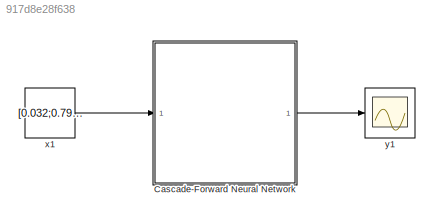
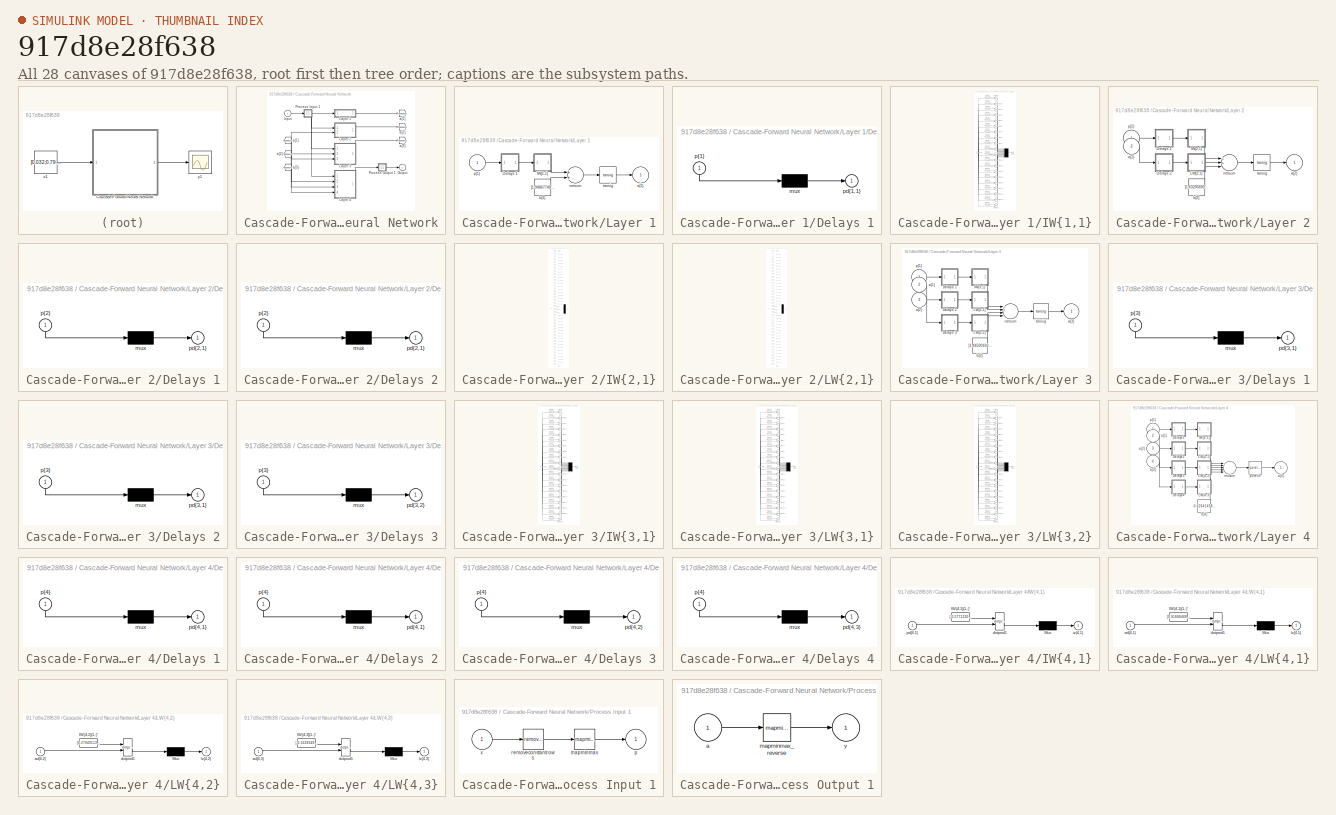
[diagram: thumbnail index - all 28 canvases of the model, root first then tree order]
MODEL slx_917d8e28f638
KIND model
CONFIG AbsTol = auto
CONFIG EnableMultiTasking = off
CONFIG FixedStep = auto
CONFIG MaxStep = auto
CONFIG MinStep = auto
CONFIG RelTol = 1e-3
CONFIG SampleTimeConstraint = Unconstrained
CONFIG Solver = VariableStepAuto
CONFIG SolverName = VariableStepAuto
CONFIG StartTime = 0.0
CONFIG StopTime = 10.0
BLOCK [SubSystem] Cascade-Forward Neural Network
  Ports = [1, 1]
  RequestExecContextInheritance = off
BLOCK [From] Cascade-Forward Neural Network/ a{1} 
  GotoTag = feedback1
BLOCK [From] Cascade-Forward Neural Network/ a{2} 
  GotoTag = feedback2
BLOCK [From] Cascade-Forward Neural Network/ a{3} 
  GotoTag = feedback3
BLOCK [Inport] Cascade-Forward Neural Network/Input
  IconDisplay = Port number
  PortDimensions = 10
BLOCK [SubSystem] Cascade-Forward Neural Network/Layer 1
  Ports = [1, 1]
  RequestExecContextInheritance = off
BLOCK [SubSystem] Cascade-Forward Neural Network/Layer 1/Delays 1
  Ports = [1, 1]
  RequestExecContextInheritance = off
BLOCK [Mux] Cascade-Forward Neural Network/Layer 1/Delays 1/mux
  Inputs = 1
  Ports = [1, 1]
BLOCK [Outport] Cascade-Forward Neural Network/Layer 1/Delays 1/pd{1,1}
  IconDisplay = Port number
BLOCK [Inport] Cascade-Forward Neural Network/Layer 1/Delays 1/p{1}
  IconDisplay = Port number
  PortDimensions = 9
BLOCK [SubSystem] Cascade-Forward Neural Network/Layer 1/IW{1,1}
  Ports = [1, 1]
  RequestExecContextInheritance = off
BLOCK [Constant] Cascade-Forward Neural Network/Layer 1/IW{1,1}/IW{1,1}(1,:)'
  Value = [-0.399594742949992198788322639302350580692291259765625;1.0001725556977130171532053282135166227817535400390625;0.6126723362894477276086035999469459056854248046875;-0.978811293044815844410777572193183004856109619140625;0.546791524879831403183061411255039274692535400390625;-0.442075938169269433419827919351519085466861724853515625;0.732155784547334764766901571420021355152130126953125;-0.6017823461542...<+86ch>
BLOCK [Constant] Cascade-Forward Neural Network/Layer 1/IW{1,1}/IW{1,1}(10,:)'
  Value = [0.5200242085181383533409871233743615448474884033203125;-0.479432415883269069656336114348960109055042266845703125;-0.58119688712411043951533429208211600780487060546875;-1.046083557524783547165725394734181463718414306640625;0.6322299866130565160204923813580535352230072021484375;-0.463646809179366348185880042365170083940029144287109375;0.416333504611567872810695689622662030160427093505859375;-0.0541...<+103ch>
BLOCK [Constant] Cascade-Forward Neural Network/Layer 1/IW{1,1}/IW{1,1}(11,:)'
  Value = [0.314223830591582931059946304230834357440471649169921875;0.641323414022031190739880912587977945804595947265625;0.69359906133068471856262249275459907948970794677734375;1.2549498216872991829262673491030000150203704833984375;0.366786104214465780160026042722165584564208984375;0.27876715183246714158116219550720416009426116943359375;-0.29506867889553756167941855892422609031200408935546875;-0.3885025258...<+102ch>
BLOCK [Constant] Cascade-Forward Neural Network/Layer 1/IW{1,1}/IW{1,1}(12,:)'
  Value = [-0.17572722752640534960022478117025457322597503662109375;-0.27038805396787679580228314080159179866313934326171875;-0.273049342254794435991271939201396889984607696533203125;-1.1249409013529920731144784440402872860431671142578125;0.98283717359505262667340730331488884985446929931640625;-1.5575821924302928334071793869952671229839324951171875;-0.179106294959380296649698038891074247658252716064453125;0...<+112ch>
BLOCK [Constant] Cascade-Forward Neural Network/Layer 1/IW{1,1}/IW{1,1}(13,:)'
  Value = [0.57364373921640698927859602918033488094806671142578125;-0.3178074166714421888713104635826312005519866943359375;0.95889880018948303597170479406486265361309051513671875;-0.36452441466575769002389506567851640284061431884765625;-0.8057166856067456972567697448539547622203826904296875;0.51954297711104902024459306630888022482395172119140625;1.310532270675679900051591175724752247333526611328125;0.301190...<+105ch>
BLOCK [Constant] Cascade-Forward Neural Network/Layer 1/IW{1,1}/IW{1,1}(14,:)'
  Value = [-0.81185032901764275781175683732726611196994781494140625;-0.2339354746392495465467931126113398931920528411865234375;0.783335067932657391764905696618370711803436279296875;-0.41392181445005793438696173325297422707080841064453125;-1.1007824691037682018901477931649424135684967041015625;-0.90690650542687445412326496807509101927280426025390625;-0.1609673879410809249623781624904950149357318878173828125;...<+114ch>
BLOCK [Constant] Cascade-Forward Neural Network/Layer 1/IW{1,1}/IW{1,1}(15,:)'
  Value = [-0.6516473855252142843852425357908941805362701416015625;0.3093832289546900593535383450216613709926605224609375;-0.32137397723487370893025172335910610854625701904296875;0.56091165714923463259111713341553695499897003173828125;0.80986188169154782467984432514640502631664276123046875;-0.879011035492267556179513121605850756168365478515625;1.2626754101799344542911285316222347319126129150390625;-0.209039...<+106ch>
BLOCK [Constant] Cascade-Forward Neural Network/Layer 1/IW{1,1}/IW{1,1}(16,:)'
  Value = [-0.77967658187949673287420182532514445483684539794921875;1.0365943462033018196422062828787602484226226806640625;0.53659833837761439223612569549004547297954559326171875;-0.846219017868002243432101749931462109088897705078125;0.425962697946649482272363229640177451074123382568359375;0.2459027890883718481251918319685501046478748321533203125;0.8744788584051306212785448224167339503765106201171875;-0.097...<+108ch>
BLOCK [Constant] Cascade-Forward Neural Network/Layer 1/IW{1,1}/IW{1,1}(17,:)'
  Value = [0.25860909252947872349892577403807081282138824462890625;-0.05823606016817799158058477360100368969142436981201171875;0.60680721164531370437345003665541298687458038330078125;-0.85326090894801354114207470047404058277606964111328125;0.1919505882525819051576121410107589326798915863037109375;0.685020439652697543664316981448791921138763427734375;0.30457534293231935951240529902861453592777252197265625;-0...<+107ch>
BLOCK [Constant] Cascade-Forward Neural Network/Layer 1/IW{1,1}/IW{1,1}(18,:)'
  Value = [-0.96781008944817548123040751306689344346523284912109375;0.349168743467091202692387241768301464617252349853515625;1.298483263070408622041895796428434550762176513671875;-0.1423676541817997243111193483855458907783031463623046875;1.609260019796410201564640374272130429744720458984375;-0.041376742652512378539686466183411539532244205474853515625;-0.453253230092815651008919530795537866652011871337890625...<+116ch>
BLOCK [Constant] Cascade-Forward Neural Network/Layer 1/IW{1,1}/IW{1,1}(19,:)'
  Value = [0.12266575408176605410659476547152735292911529541015625;-0.327555082438132527666851956382743082940578460693359375;0.1403107024736479357951424162820330820977687835693359375;-0.95554989836789783197446013218723237514495849609375;-0.0657550933722937103187433649509330280125141143798828125;-0.9519589332292903716137288938625715672969818115234375;-0.321884659675415019108868364128284156322479248046875;-0....<+111ch>
BLOCK [Constant] Cascade-Forward Neural Network/Layer 1/IW{1,1}/IW{1,1}(2,:)'
  Value = [0.58598805230600647941940906093805097043514251708984375;-0.385628458972306187302336866196128539741039276123046875;0.464426293838210491049522943285410292446613311767578125;0.757156720037416075541614191024564206600189208984375;-0.03686604483695384015806695288119954057037830352783203125;1.1540511632386867280075648523052223026752471923828125;0.1091798896844124178162616090048686601221561431884765625;-...<+112ch>
BLOCK [Constant] Cascade-Forward Neural Network/Layer 1/IW{1,1}/IW{1,1}(20,:)'
  Value = [-0.289797385582718114438449674707953818142414093017578125;-0.09745239054982583748465430062424275092780590057373046875;-0.86946355855974222226478786978987045586109161376953125;-0.448459454836717785752853160374797880649566650390625;0.8419878173925401387833744593081064522266387939453125;0.049161771551427514703735965895248227752745151519775390625;0.1898836472706332267890161347168032079935073852539062...<+114ch>
BLOCK [Constant] Cascade-Forward Neural Network/Layer 1/IW{1,1}/IW{1,1}(3,:)'
  Value = [-0.87751257548890537751873353045084513723850250244140625;-0.22448772469714572963539467309601604938507080078125;0.533417987843983087969945700024254620075225830078125;-0.9270798692139816665758189628832042217254638671875;-0.62376517705227774168719179215258918702602386474609375;0.327268844127118596620817925213486887514591217041015625;-1.0150225486810959818484434435958974063396453857421875;0.524609534...<+101ch>
BLOCK [Constant] Cascade-Forward Neural Network/Layer 1/IW{1,1}/IW{1,1}(4,:)'
  Value = [-0.31877006473098490335615906587918289005756378173828125;1.3841526955567629020293907160521484911441802978515625;0.5024453132257307164110216035624034702777862548828125;-0.1752330800539053379250020725521608255803585052490234375;0.267018318124338571717402146532549522817134857177734375;0.070155949777036374914729321972117759287357330322265625;-0.11596373683976361756986506179600837640464305877685546875...<+112ch>
BLOCK [Constant] Cascade-Forward Neural Network/Layer 1/IW{1,1}/IW{1,1}(5,:)'
  Value = [-0.2239211926811659481018068618141114711761474609375;-0.078633218442791086300047709300997667014598846435546875;-0.10290831377903351950831023486898629926145076751708984375;-1.079618593770970136347386869601905345916748046875;0.79290858079768289368161049424088560044765472412109375;-1.0477329339378080863554032475803978741168975830078125;-0.15574686433935880369716642235289327800273895263671875;0.98029...<+105ch>
BLOCK [Constant] Cascade-Forward Neural Network/Layer 1/IW{1,1}/IW{1,1}(6,:)'
  Value = [0.7045639786762343259596264033461920917034149169921875;-0.194586971931398122759304669671109877526760101318359375;0.83518395774956111221598575866664759814739227294921875;-1.3487536088488543128960372996516525745391845703125;-0.214098719191344211143501752303563989698886871337890625;-0.54337714196370134889235714581445790827274322509765625;1.250227364656404827059077433659695088863372802734375;-0.27768...<+110ch>
BLOCK [Constant] Cascade-Forward Neural Network/Layer 1/IW{1,1}/IW{1,1}(7,:)'
  Value = [0.728939723145142881577385196578688919544219970703125;0.70657955861675658670861821519793011248111724853515625;-0.91151041063163251720879998174495995044708251953125;-0.769058137386303020122113593970425426959991455078125;0.47859045410654765806413024620269425213336944580078125;-0.355575571641278564971599962518666870892047882080078125;-0.94012341886509087629519854090176522731781005859375;-0.743181987...<+105ch>
BLOCK [Constant] Cascade-Forward Neural Network/Layer 1/IW{1,1}/IW{1,1}(8,:)'
  Value = [-1.034509370439570918875915594981051981449127197265625;0.0245837016106239016066670188820353359915316104888916015625;-0.89128141845629371697867782131652347743511199951171875;-1.110999251827875067277773268870078027248382568359375;-0.06357531599912669140195475847576744854450225830078125;-0.07886721219577315367121883582512964494526386260986328125;0.5299537404546771357516377065621782094240188598632812...<+116ch>
BLOCK [Constant] Cascade-Forward Neural Network/Layer 1/IW{1,1}/IW{1,1}(9,:)'
  Value = [0.5212689802251830872847904174705035984516143798828125;0.65889260085052880899780802792520262300968170166015625;-0.1947050917349732179761900852099643088877201080322265625;0.57415346246606391300559835144667886197566986083984375;0.8736535016221138594261219623149372637271881103515625;-1.1305352509828316964757277673925273120403289794921875;-0.451097898965741705978871323168277740478515625;-0.7815415998...<+96ch>
BLOCK [Mux] Cascade-Forward Neural Network/Layer 1/IW{1,1}/Mux
  Inputs = 20
  Ports = [20, 1]
BLOCK [Reference] Cascade-Forward Neural Network/Layer 1/IW{1,1}/dotprod1  REF=neural/Weight Functions/dotprod
  Ports = [2, 1]
  SourceBlock = neural/Weight Functions/dotprod
  SourceProductBaseCode = NN
  SourceProductName = Neural Network Toolbox
  SourceType = DOTPROD
BLOCK [Reference] Cascade-Forward Neural Network/Layer 1/IW{1,1}/dotprod10  REF=neural/Weight Functions/dotprod
  Ports = [2, 1]
  SourceBlock = neural/Weight Functions/dotprod
  SourceProductBaseCode = NN
  SourceProductName = Neural Network Toolbox
  SourceType = DOTPROD
BLOCK [Reference] Cascade-Forward Neural Network/Layer 1/IW{1,1}/dotprod11  REF=neural/Weight Functions/dotprod
  Ports = [2, 1]
  SourceBlock = neural/Weight Functions/dotprod
  SourceProductBaseCode = NN
  SourceProductName = Neural Network Toolbox
  SourceType = DOTPROD
BLOCK [Reference] Cascade-Forward Neural Network/Layer 1/IW{1,1}/dotprod12  REF=neural/Weight Functions/dotprod
  Ports = [2, 1]
  SourceBlock = neural/Weight Functions/dotprod
  SourceProductBaseCode = NN
  SourceProductName = Neural Network Toolbox
  SourceType = DOTPROD
BLOCK [Reference] Cascade-Forward Neural Network/Layer 1/IW{1,1}/dotprod13  REF=neural/Weight Functions/dotprod
  Ports = [2, 1]
  SourceBlock = neural/Weight Functions/dotprod
  SourceProductBaseCode = NN
  SourceProductName = Neural Network Toolbox
  SourceType = DOTPROD
BLOCK [Reference] Cascade-Forward Neural Network/Layer 1/IW{1,1}/dotprod14  REF=neural/Weight Functions/dotprod
  Ports = [2, 1]
  SourceBlock = neural/Weight Functions/dotprod
  SourceProductBaseCode = NN
  SourceProductName = Neural Network Toolbox
  SourceType = DOTPROD
BLOCK [Reference] Cascade-Forward Neural Network/Layer 1/IW{1,1}/dotprod15  REF=neural/Weight Functions/dotprod
  Ports = [2, 1]
  SourceBlock = neural/Weight Functions/dotprod
  SourceProductBaseCode = NN
  SourceProductName = Neural Network Toolbox
  SourceType = DOTPROD
BLOCK [Reference] Cascade-Forward Neural Network/Layer 1/IW{1,1}/dotprod16  REF=neural/Weight Functions/dotprod
  Ports = [2, 1]
  SourceBlock = neural/Weight Functions/dotprod
  SourceProductBaseCode = NN
  SourceProductName = Neural Network Toolbox
  SourceType = DOTPROD
BLOCK [Reference] Cascade-Forward Neural Network/Layer 1/IW{1,1}/dotprod17  REF=neural/Weight Functions/dotprod
  Ports = [2, 1]
  SourceBlock = neural/Weight Functions/dotprod
  SourceProductBaseCode = NN
  SourceProductName = Neural Network Toolbox
  SourceType = DOTPROD
BLOCK [Reference] Cascade-Forward Neural Network/Layer 1/IW{1,1}/dotprod18  REF=neural/Weight Functions/dotprod
  Ports = [2, 1]
  SourceBlock = neural/Weight Functions/dotprod
  SourceProductBaseCode = NN
  SourceProductName = Neural Network Toolbox
  SourceType = DOTPROD
BLOCK [Reference] Cascade-Forward Neural Network/Layer 1/IW{1,1}/dotprod19  REF=neural/Weight Functions/dotprod
  Ports = [2, 1]
  SourceBlock = neural/Weight Functions/dotprod
  SourceProductBaseCode = NN
  SourceProductName = Neural Network Toolbox
  SourceType = DOTPROD
BLOCK [Reference] Cascade-Forward Neural Network/Layer 1/IW{1,1}/dotprod2  REF=neural/Weight Functions/dotprod
  Ports = [2, 1]
  SourceBlock = neural/Weight Functions/dotprod
  SourceProductBaseCode = NN
  SourceProductName = Neural Network Toolbox
  SourceType = DOTPROD
BLOCK [Reference] Cascade-Forward Neural Network/Layer 1/IW{1,1}/dotprod20  REF=neural/Weight Functions/dotprod
  Ports = [2, 1]
  SourceBlock = neural/Weight Functions/dotprod
  SourceProductBaseCode = NN
  SourceProductName = Neural Network Toolbox
  SourceType = DOTPROD
BLOCK [Reference] Cascade-Forward Neural Network/Layer 1/IW{1,1}/dotprod3  REF=neural/Weight Functions/dotprod
  Ports = [2, 1]
  SourceBlock = neural/Weight Functions/dotprod
  SourceProductBaseCode = NN
  SourceProductName = Neural Network Toolbox
  SourceType = DOTPROD
BLOCK [Reference] Cascade-Forward Neural Network/Layer 1/IW{1,1}/dotprod4  REF=neural/Weight Functions/dotprod
  Ports = [2, 1]
  SourceBlock = neural/Weight Functions/dotprod
  SourceProductBaseCode = NN
  SourceProductName = Neural Network Toolbox
  SourceType = DOTPROD
BLOCK [Reference] Cascade-Forward Neural Network/Layer 1/IW{1,1}/dotprod5  REF=neural/Weight Functions/dotprod
  Ports = [2, 1]
  SourceBlock = neural/Weight Functions/dotprod
  SourceProductBaseCode = NN
  SourceProductName = Neural Network Toolbox
  SourceType = DOTPROD
BLOCK [Reference] Cascade-Forward Neural Network/Layer 1/IW{1,1}/dotprod6  REF=neural/Weight Functions/dotprod
  Ports = [2, 1]
  SourceBlock = neural/Weight Functions/dotprod
  SourceProductBaseCode = NN
  SourceProductName = Neural Network Toolbox
  SourceType = DOTPROD
BLOCK [Reference] Cascade-Forward Neural Network/Layer 1/IW{1,1}/dotprod7  REF=neural/Weight Functions/dotprod
  Ports = [2, 1]
  SourceBlock = neural/Weight Functions/dotprod
  SourceProductBaseCode = NN
  SourceProductName = Neural Network Toolbox
  SourceType = DOTPROD
BLOCK [Reference] Cascade-Forward Neural Network/Layer 1/IW{1,1}/dotprod8  REF=neural/Weight Functions/dotprod
  Ports = [2, 1]
  SourceBlock = neural/Weight Functions/dotprod
  SourceProductBaseCode = NN
  SourceProductName = Neural Network Toolbox
  SourceType = DOTPROD
BLOCK [Reference] Cascade-Forward Neural Network/Layer 1/IW{1,1}/dotprod9  REF=neural/Weight Functions/dotprod
  Ports = [2, 1]
  SourceBlock = neural/Weight Functions/dotprod
  SourceProductBaseCode = NN
  SourceProductName = Neural Network Toolbox
  SourceType = DOTPROD
BLOCK [Outport] Cascade-Forward Neural Network/Layer 1/IW{1,1}/iz{1,1}
  IconDisplay = Port number
BLOCK [Inport] Cascade-Forward Neural Network/Layer 1/IW{1,1}/pd{1,1}
  IconDisplay = Port number
  PortDimensions = 9
BLOCK [Outport] Cascade-Forward Neural Network/Layer 1/a{1}
  IconDisplay = Port number
  InitialOutput = [0;0;0;0;0;0;0;0;0;0;0;0;0;0;0;0;0;0;0;0]
BLOCK [Constant] Cascade-Forward Neural Network/Layer 1/b{1}
  Value = [1.9486774843359009334875509011908434331417083740234375;-1.7522064458387192065202953017433173954486846923828125;1.533549832090819631247313736821524798870086669921875;1.2920320439798664846620113166864030063152313232421875;1.0677815482181056694344079005531966686248779296875;-0.8770594643523346167768295345013029873371124267578125;-0.91462494747745293199869820455205626785755157470703125;0.453214250300...<+706ch>
BLOCK [Sum] Cascade-Forward Neural Network/Layer 1/netsum
  Inputs = 2
  Ports = [2, 1]
BLOCK [Inport] Cascade-Forward Neural Network/Layer 1/p{1}
  IconDisplay = Port number
  PortDimensions = 9
BLOCK [Reference] Cascade-Forward Neural Network/Layer 1/tansig  REF=neural/Transfer Functions/tansig
  Ports = [1, 1]
  SourceBlock = neural/Transfer Functions/tansig
  SourceProductBaseCode = NN
  SourceProductName = Neural Network Toolbox
  SourceType = TANSIG
BLOCK [SubSystem] Cascade-Forward Neural Network/Layer 2
  Ports = [2, 1]
  RequestExecContextInheritance = off
BLOCK [SubSystem] Cascade-Forward Neural Network/Layer 2/Delays 1
  Ports = [1, 1]
  RequestExecContextInheritance = off
BLOCK [Mux] Cascade-Forward Neural Network/Layer 2/Delays 1/mux
  Inputs = 1
  Ports = [1, 1]
BLOCK [Outport] Cascade-Forward Neural Network/Layer 2/Delays 1/pd{2,1}
  IconDisplay = Port number
BLOCK [Inport] Cascade-Forward Neural Network/Layer 2/Delays 1/p{2}
  IconDisplay = Port number
  PortDimensions = 9
BLOCK [SubSystem] Cascade-Forward Neural Network/Layer 2/Delays 2
  Ports = [1, 1]
  RequestExecContextInheritance = off
BLOCK [Mux] Cascade-Forward Neural Network/Layer 2/Delays 2/mux
  Inputs = 1
  Ports = [1, 1]
BLOCK [Outport] Cascade-Forward Neural Network/Layer 2/Delays 2/pd{2,1}
  IconDisplay = Port number
BLOCK [Inport] Cascade-Forward Neural Network/Layer 2/Delays 2/p{2}
  IconDisplay = Port number
  PortDimensions = 20
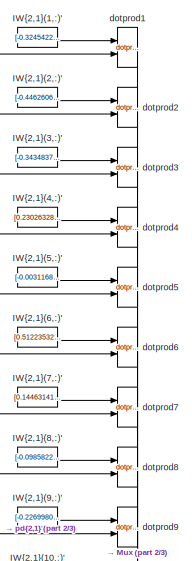
[diagram: Cascade-Forward Neural Network/Layer 2/IW{2,1} - part 1/3, top center region]
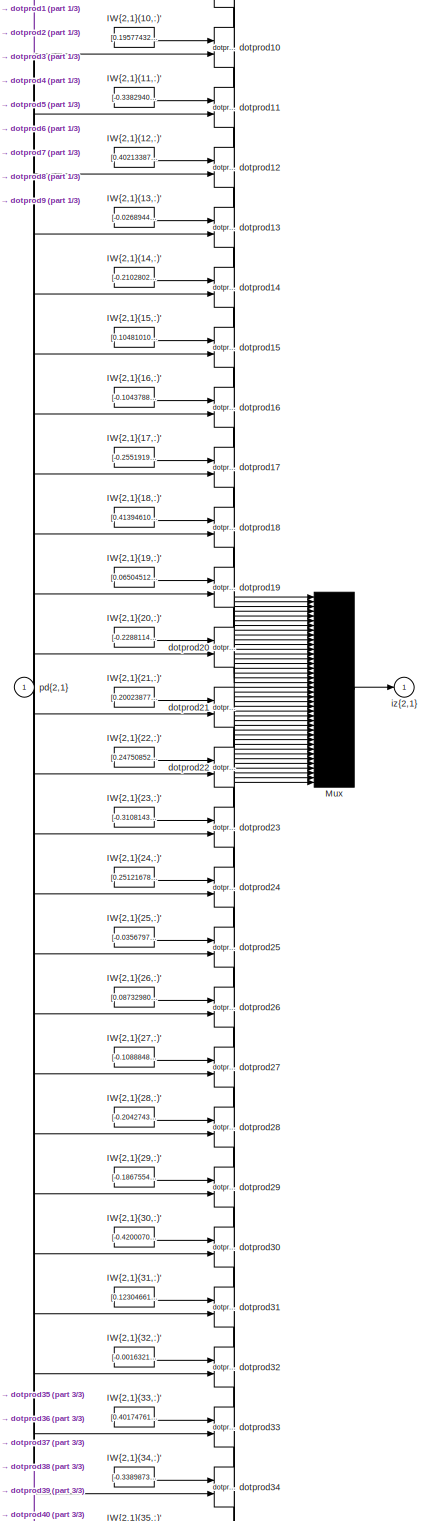
[diagram: Cascade-Forward Neural Network/Layer 2/IW{2,1} - part 2/3, full width, middle band]
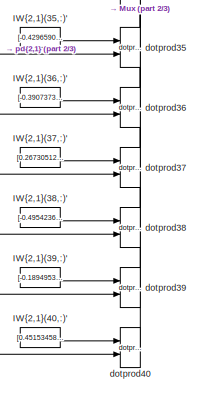
[diagram: Cascade-Forward Neural Network/Layer 2/IW{2,1} - part 3/3, bottom center region]
BLOCK [SubSystem] Cascade-Forward Neural Network/Layer 2/IW{2,1}
  Ports = [1, 1]
  RequestExecContextInheritance = off
BLOCK [Constant] Cascade-Forward Neural Network/Layer 2/IW{2,1}/IW{2,1}(1,:)'
  Value = [-0.324542291796775683732079187393537722527980804443359375;0.0687875470540312006217931184437475167214870452880859375;-0.28041153589947598323561805955250747501850128173828125;0.1679354382406141044103975445977994240820407867431640625;-0.00584034343573799387405731664557606563903391361236572265625;-0.08695050204507125124475663824341609142720699310302734375;-0.370681211787576514460340604273369535803794...<+122ch>
BLOCK [Constant] Cascade-Forward Neural Network/Layer 2/IW{2,1}/IW{2,1}(10,:)'
  Value = [0.1957743256441802082168379683935199864208698272705078125;-0.00790690423303845764391173389640243840403854846954345703125;0.2807004355283073682159056261298246681690216064453125;-0.1709484406753312979443393260226002894341945648193359375;0.1292261121435868409523806121796951629221439361572265625;0.090576606811163140609011179549270309507846832275390625;-0.3074291761259914101955814658140297979116439819...<+121ch>
BLOCK [Constant] Cascade-Forward Neural Network/Layer 2/IW{2,1}/IW{2,1}(11,:)'
  Value = [-0.3382940737674229314535523371887393295764923095703125;0.136301301719288614489045130540034733712673187255859375;0.077184732021632618259587843567715026438236236572265625;-0.2946849138566107750847322677145712077617645263671875;0.55020512470717031217048997859819792211055755615234375;0.336723165091655063374531664521782658994197845458984375;-0.496038250235261990450652547224308364093303680419921875;-0...<+111ch>
BLOCK [Constant] Cascade-Forward Neural Network/Layer 2/IW{2,1}/IW{2,1}(12,:)'
  Value = [0.40213387677751477600196494677220471203327178955078125;0.136644910573546829457569629084900952875614166259765625;-0.2578531101404093472950762588880024850368499755859375;0.310418938284677980998793600520002655684947967529296875;-0.4257927265207228639809500236879102885723114013671875;-0.498352245956162509532560989100602455437183380126953125;0.1750266792239182633839078562232316471636295318603515625;-...<+121ch>
BLOCK [Constant] Cascade-Forward Neural Network/Layer 2/IW{2,1}/IW{2,1}(13,:)'
  Value = [-0.0268944795008402744163067410454459604807198047637939453125;0.160778563268169139011121160365291871130466461181640625;-0.63333375741451813922822111635468900203704833984375;-0.361822351242176265539995938524953089654445648193359375;0.080833836745488218955557613298879005014896392822265625;0.272846015059181545847621919165248982608318328857421875;0.0640400439979145474911348401292343623936176300048828...<+118ch>
BLOCK [Constant] Cascade-Forward Neural Network/Layer 2/IW{2,1}/IW{2,1}(14,:)'
  Value = [-0.2102802679827652510002877761507988907396793365478515625;0.3021164324474343576554247192689217627048492431640625;-0.60946876714005371322713244808255694806575775146484375;-0.05831772096079734790663451349246315658092498779296875;0.044852540651126072968057911793948733247816562652587890625;0.51936381618280014205168981789029203355312347412109375;0.39191774273829504959820724252494983375072479248046875...<+120ch>
BLOCK [Constant] Cascade-Forward Neural Network/Layer 2/IW{2,1}/IW{2,1}(15,:)'
  Value = [0.10481010128808508630182672050068504177033901214599609375;-0.40408651502036996294719983779941685497760772705078125;0.059323067380531703529644715899848961271345615386962890625;-0.425252943306168251780263744876720011234283447265625;-0.00406918681322654580967412840664110262878239154815673828125;-0.36831496090308790680722950128256343305110931396484375;-0.006764141247782308116742733261617104290053248...<+125ch>
BLOCK [Constant] Cascade-Forward Neural Network/Layer 2/IW{2,1}/IW{2,1}(16,:)'
  Value = [-0.10437888564191878659759282754748710431158542633056640625;0.37692871141585648775418349032406695187091827392578125;-0.11196089219812936643716483331445488147437572479248046875;0.504896824239442043591452602413482964038848876953125;-0.08943749883851202786555489865349954925477504730224609375;-0.59270868880439753212385767255909740924835205078125;0.44821158579150327527784725134551990777254104614257812...<+116ch>
BLOCK [Constant] Cascade-Forward Neural Network/Layer 2/IW{2,1}/IW{2,1}(17,:)'
  Value = [-0.25519192800926837616515285844798199832439422607421875;-0.1196708064125363846219585184371680952608585357666015625;-0.06425659036695470505140548311828752048313617706298828125;0.65005912316745007029084035821142606437206268310546875;0.01868941739461237039332530684987432323396205902099609375;0.45198654437769814062875184390577487647533416748046875;-0.1145115043599984755440246431135165039449930191040...<+122ch>
BLOCK [Constant] Cascade-Forward Neural Network/Layer 2/IW{2,1}/IW{2,1}(18,:)'
  Value = [0.413946103958608258022167092349263839423656463623046875;-0.398654216100506386677437831167480908334255218505859375;-0.06603405433678495584093326442598481662571430206298828125;-0.335393951206770013495628290911554358899593353271484375;-0.252041180418388577333388411716441623866558074951171875;-0.0492452080997454466615437240761821158230304718017578125;0.10784469646703595535619513157143956050276756286...<+128ch>
BLOCK [Constant] Cascade-Forward Neural Network/Layer 2/IW{2,1}/IW{2,1}(19,:)'
  Value = [0.0650451220991985490371689593303017318248748779296875;-0.473139326014514527418697298344341106712818145751953125;-0.1084104694585747152846266772030503489077091217041015625;0.379416225433231335539829842673498205840587615966796875;0.5098419425723628162216982673271559178829193115234375;0.3359748314586503692424912514979951083660125732421875;0.1408202313841695196838799120087060146033763885498046875;0....<+115ch>
BLOCK [Constant] Cascade-Forward Neural Network/Layer 2/IW{2,1}/IW{2,1}(2,:)'
  Value = [-0.4462606327716136522809620146290399134159088134765625;0.1795256506922486838817576426663435995578765869140625;0.07827206229843190754547066489976714365184307098388671875;-0.046401788006822895782388371799243032000958919525146484375;-0.0966140748311935804171213248991989530622959136962890625;-0.405936492152293826318754099702346138656139373779296875;0.4547163625348423221517180081718834117054939270019...<+112ch>
BLOCK [Constant] Cascade-Forward Neural Network/Layer 2/IW{2,1}/IW{2,1}(20,:)'
  Value = [-0.2288114918340828640719308850748348049819469451904296875;0.2591841189703394388033075301791541278362274169921875;0.0173259779226888899206215910453465767204761505126953125;0.326692029285919394165915718986070714890956878662109375;-0.298978393393575070380308034145855344831943511962890625;0.228846293911817266764074929596972651779651641845703125;0.10748749893977022074054161748790647834539413452148437...<+118ch>
BLOCK [Constant] Cascade-Forward Neural Network/Layer 2/IW{2,1}/IW{2,1}(21,:)'
  Value = [0.2002387766277574920881221487434231676161289215087890625;0.07527120594866180958160128966483171097934246063232421875;-0.0068731163359172231519522711096215061843395233154296875;0.055941951751786067603688934468664228916168212890625;0.2118083536317571236029522196986363269388675689697265625;0.5015434405608691914579821968800388276576995849609375;0.4018949623650123204043893565540201961994171142578125;-...<+117ch>
BLOCK [Constant] Cascade-Forward Neural Network/Layer 2/IW{2,1}/IW{2,1}(22,:)'
  Value = [0.2475085206523142400403258989172172732651233673095703125;0.23861474844312702270343606869573704898357391357421875;-0.17571858451457689209718182610231451690196990966796875;-0.2493199612004657061969936648893053643405437469482421875;0.07489827097856412152498961631863494403660297393798828125;0.1173975635774616443907092389054014347493648529052734375;-0.5430422708244599938609553646529093384742736816406...<+124ch>
BLOCK [Constant] Cascade-Forward Neural Network/Layer 2/IW{2,1}/IW{2,1}(23,:)'
  Value = [-0.310814354629131817109310986779746599495410919189453125;0.72670321668736359566054261449608020484447479248046875;0.255403230644371925794899880202137865126132965087890625;-0.28671289745599659593011665492667816579341888427734375;0.28268366705520919790473044486134313046932220458984375;0.0043791555742623312907912946911892504431307315826416015625;0.1582789589949043507211001724499510601162910461425781...<+114ch>
BLOCK [Constant] Cascade-Forward Neural Network/Layer 2/IW{2,1}/IW{2,1}(24,:)'
  Value = [0.251216787859257995041417643733439035713672637939453125;-0.2178828155331899163460462887087487615644931793212890625;0.34863512640181848478704296212526969611644744873046875;-0.4370135838717299492373058455996215343475341796875;0.032467553704689511295811144009348936378955841064453125;0.44547652639035006938428296052734367549419403076171875;-0.474384317933438659498079914556001313030719757080078125;0.2...<+112ch>
BLOCK [Constant] Cascade-Forward Neural Network/Layer 2/IW{2,1}/IW{2,1}(25,:)'
  Value = [-0.035679734700623876031411185749675496481359004974365234375;-0.1981953207608193323618905878902296535670757293701171875;-0.06943748085965927019369559047845541499555110931396484375;0.314915993547127348595182638746337033808231353759765625;0.382395395254002179452612608656636439263820648193359375;0.267794186854816318454908241619705222547054290771484375;-0.055846164043513717156752562686961027793586254...<+127ch>
BLOCK [Constant] Cascade-Forward Neural Network/Layer 2/IW{2,1}/IW{2,1}(26,:)'
  Value = [0.08732980616760983860746847540212911553680896759033203125;-0.13907933838675301529974603909067809581756591796875;-0.2286886511817441125504757337694172747433185577392578125;0.316083898060651236061602276095072738826274871826171875;-0.35283192589203249411866636364720761775970458984375;-0.59883380956851695042786332123796455562114715576171875;-0.549513150841128616974629039759747684001922607421875;-0.0...<+114ch>
BLOCK [Constant] Cascade-Forward Neural Network/Layer 2/IW{2,1}/IW{2,1}(27,:)'
  Value = [-0.10888487230919950687901831543058506213128566741943359375;-0.57473736569455591283173134797834791243076324462890625;-0.2335067309102359101036228139491868205368518829345703125;0.2662771068718818856524421789799816906452178955078125;-0.60767973848669043501757869307766668498516082763671875;-0.229561050232402974469181344829848967492580413818359375;-0.70110707356384593946785344087402336299419403076171...<+118ch>
BLOCK [Constant] Cascade-Forward Neural Network/Layer 2/IW{2,1}/IW{2,1}(28,:)'
  Value = [-0.2042743574975654785585987838203436695039272308349609375;0.281950532406683385122647678144858218729496002197265625;0.37992510537679258231236190113122574985027313232421875;-0.268500190748743872148907030350528657436370849609375;-0.65312061664372744740347798142465762794017791748046875;-0.316418870831869980531081409935723058879375457763671875;-0.094265510297374455195296150122885592281818389892578125...<+114ch>
BLOCK [Constant] Cascade-Forward Neural Network/Layer 2/IW{2,1}/IW{2,1}(29,:)'
  Value = [-0.1867554669027818026183496158409980125725269317626953125;0.43406117590720605381449104243074543774127960205078125;0.09815992793706264374353764878833317197859287261962890625;-0.424804274364632472593683587547275237739086151123046875;0.256399968877172701464672854854143224656581878662109375;0.165621572589895016403005456595565192401409149169921875;0.297412555207232143228424092740169726312160491943359...<+120ch>
BLOCK [Constant] Cascade-Forward Neural Network/Layer 2/IW{2,1}/IW{2,1}(3,:)'
  Value = [-0.343483711070276920285238020369433797895908355712890625;0.53066417978020030687957842019386589527130126953125;0.31171502011341678528566490058437921106815338134765625;-0.444047795862383465337330790134728886187076568603515625;0.236383550289809674094243518993607722222805023193359375;-0.334990509854110107834657128478283993899822235107421875;0.256484526856124606108977559415507130324840545654296875;0....<+116ch>
BLOCK [Constant] Cascade-Forward Neural Network/Layer 2/IW{2,1}/IW{2,1}(30,:)'
  Value = [-0.420007075724736667066139261805801652371883392333984375;-0.325973267627817531177925047813914716243743896484375;-0.45662813284732284291322912395116873085498809814453125;-0.2121125175206574342556820056415745057165622711181640625;0.388440219381910589735440453296178020536899566650390625;-0.4829169636928585251922640964039601385593414306640625;0.2238460597286293929375489142330479808151721954345703125...<+124ch>
BLOCK [Constant] Cascade-Forward Neural Network/Layer 2/IW{2,1}/IW{2,1}(31,:)'
  Value = [0.12304661060634934643953641852931468747556209564208984375;0.0935386299662377129759960325827705673873424530029296875;-0.313172631359989572796820311850751750171184539794921875;-0.37907455437369852457862862138426862657070159912109375;-0.32895518023903924653694730295683257281780242919921875;0.150482777563526404218663401479716412723064422607421875;-0.25216581763143597338938661778229288756847381591796...<+112ch>
BLOCK [Constant] Cascade-Forward Neural Network/Layer 2/IW{2,1}/IW{2,1}(32,:)'
  Value = [-0.00163213397447740222144518806857149684219621121883392333984375;-0.206420648244373172719434705868479795753955841064453125;0.0098161331607758035844302213490664144046604633331298828125;0.1949452791234642656803544014110229909420013427734375;0.35469101103357203452759449646691791713237762451171875;0.047329873783093660832843596608654479496181011199951171875;0.24843729378535386875803681050456361845135...<+130ch>
BLOCK [Constant] Cascade-Forward Neural Network/Layer 2/IW{2,1}/IW{2,1}(33,:)'
  Value = [0.401747612301919299060415369240217842161655426025390625;-0.45277690869865150347095550387166440486907958984375;0.395869712515088512105876361601985991001129150390625;0.4756958338025290000672384849167428910732269287109375;0.05436458869313125219502325080611626617610454559326171875;-0.12254264973859607668060789364972151815891265869140625;0.5336371688040433269861750886775553226470947265625;0.427235686...<+101ch>
BLOCK [Constant] Cascade-Forward Neural Network/Layer 2/IW{2,1}/IW{2,1}(34,:)'
  Value = [-0.33898736312202981668662005176884122192859649658203125;0.01404114771738000817802305419945696485228836536407470703125;0.1980737895577827367699086380525841377675533294677734375;0.06345794786319562674758998355173389427363872528076171875;0.490762924647671849864849491495988331735134124755859375;-0.51565340020439565105192514238297007977962493896484375;-0.2846639697446540773206891117297345772385597229...<+126ch>
BLOCK [Constant] Cascade-Forward Neural Network/Layer 2/IW{2,1}/IW{2,1}(35,:)'
  Value = [-0.429659073706359306843438616851926781237125396728515625;-0.1784271749077228907953696079857763834297657012939453125;0.440909793280942874371675088696065358817577362060546875;-0.442994791296781154077422115733497776091098785400390625;-0.019944572767950190239627517030385206453502178192138671875;-0.03606031173514055720996651643872610293328762054443359375;0.54034021087671169070176802051719278097152709...<+123ch>
BLOCK [Constant] Cascade-Forward Neural Network/Layer 2/IW{2,1}/IW{2,1}(36,:)'
  Value = [-0.39073734992504605134655548681621439754962921142578125;-0.303381329616073502908335512984194792807102203369140625;0.004042519886493571752705822319740036618895828723907470703125;0.266183250969649398687266739216283895075321197509765625;0.18023920737041565498515183207928203046321868896484375;0.296769017276363122892490764570538885891437530517578125;0.3910969344221136845263231407443527132272720336914...<+123ch>
BLOCK [Constant] Cascade-Forward Neural Network/Layer 2/IW{2,1}/IW{2,1}(37,:)'
  Value = [0.2673051233086429778751380581525154411792755126953125;-0.50684067738421945126248147062142379581928253173828125;0.177671067497580548177893433603458106517791748046875;0.057268097089858659154426590021103038452565670013427734375;-0.180493895501149304028132291932706721127033233642578125;-0.362951249171143019989216327303438447415828704833984375;0.418656006562284799255024836384109221398830413818359375;...<+115ch>
BLOCK [Constant] Cascade-Forward Neural Network/Layer 2/IW{2,1}/IW{2,1}(38,:)'
  Value = [-0.495423634851604732798335817278712056577205657958984375;0.2043341907914952015890008851783932186663150787353515625;-0.467174720166877610605382642461336217820644378662109375;0.1438508111957102764133509253952070139348506927490234375;-0.1568346784385365733083261829960974864661693572998046875;0.07396871999577396550318297840931336395442485809326171875;0.27031216667364443839716159345698542892932891845...<+127ch>
BLOCK [Constant] Cascade-Forward Neural Network/Layer 2/IW{2,1}/IW{2,1}(39,:)'
  Value = [-0.189495332287297368889511517409118823707103729248046875;-0.047299852000780163996385141444989130832254886627197265625;0.1431300344219219311536761551906238310039043426513671875;0.312383402635927176493879642293904908001422882080078125;-0.1039185124131432325089718915478442795574665069580078125;0.277625194286385712505449419040814973413944244384765625;0.23696130968302245300982633580133551731705665588...<+124ch>
BLOCK [Constant] Cascade-Forward Neural Network/Layer 2/IW{2,1}/IW{2,1}(4,:)'
  Value = [0.2302632804560506285529442038750858046114444732666015625;0.056426691973135344182477268759612343274056911468505859375;0.26981815992925073377506350880139507353305816650390625;0.0627338958160852666612328221162897534668445587158203125;-0.0541004381655196819878028691164217889308929443359375;0.07336591425450332548674481358830234967172145843505859375;-0.2992972260177561016902814117202069610357284545898...<+119ch>
BLOCK [Constant] Cascade-Forward Neural Network/Layer 2/IW{2,1}/IW{2,1}(40,:)'
  Value = [0.45153458263285661811181626035249792039394378662109375;0.273234019873488886975820832958561368286609649658203125;0.058358325260174377657751421111242962069809436798095703125;-0.24921725789550486229728676335071213543415069580078125;-0.056418061624276892584983755796201876364648342132568359375;-0.288169974372767312420506868875236250460147857666015625;0.370481762537899383946893294705660082399845123291...<+121ch>
BLOCK [Constant] Cascade-Forward Neural Network/Layer 2/IW{2,1}/IW{2,1}(5,:)'
  Value = [-0.0031168021329519741968727686298734624870121479034423828125;0.328002271778910670096962576280930079519748687744140625;0.38247228553464041045373278393526561558246612548828125;0.178224480049883116095088553265668451786041259765625;0.1542419981506792936443162034265697002410888671875;-0.283971671856202256822854224083130247890949249267578125;0.11580051943021670013411750232990016229450702667236328125;0...<+111ch>
BLOCK [Constant] Cascade-Forward Neural Network/Layer 2/IW{2,1}/IW{2,1}(6,:)'
  Value = [0.51223532687983708289181095096864737570285797119140625;-0.332082772295919870231273307581432163715362548828125;0.1275842036868156947893027108875685371458530426025390625;-0.379699503766440737972942542910459451377391815185546875;0.2690175410241992803861421634792350232601165771484375;-0.0154989389606303602786585571493560564704239368438720703125;0.15862684263378740157079960226838011294603347778320312...<+120ch>
BLOCK [Constant] Cascade-Forward Neural Network/Layer 2/IW{2,1}/IW{2,1}(7,:)'
  Value = [0.1446314155234941500882683840245590545237064361572265625;0.2732545567729920410471322611556388437747955322265625;-0.247854486607387569652161118938238359987735748291015625;0.1630082571171082295169441067628213204443454742431640625;0.436201058352217729829902737037627957761287689208984375;0.05221461830264105541399288767934194765985012054443359375;-0.539647990429329871275854202394839376211166381835937...<+116ch>
BLOCK [Constant] Cascade-Forward Neural Network/Layer 2/IW{2,1}/IW{2,1}(8,:)'
  Value = [-0.09858226452668465700224231795800733380019664764404296875;0.356305635376591267604595714146853424608707427978515625;0.25550733449753215698052599691436626017093658447265625;0.034878811141299918829883353055265615694224834442138671875;0.304494445379197398171555732915294356644153594970703125;0.09943805056925204832740661231582635082304477691650390625;0.576848371252598246528009440226014703512191772460...<+117ch>
BLOCK [Constant] Cascade-Forward Neural Network/Layer 2/IW{2,1}/IW{2,1}(9,:)'
  Value = [-0.2269980390922531066077993955332203768193721771240234375;-0.1662544585091897120232573570319800637662410736083984375;-0.1624782913689543917268309769497136585414409637451171875;-0.56136775947428418920281956161488778889179229736328125;0.494008889276872864559919662497122772037982940673828125;-0.302455999625720561851949241827242076396942138671875;-0.12366191271961210484953141985897673293948173522949...<+119ch>
BLOCK [Mux] Cascade-Forward Neural Network/Layer 2/IW{2,1}/Mux
  Inputs = 40
  Ports = [40, 1]
BLOCK [Reference] Cascade-Forward Neural Network/Layer 2/IW{2,1}/dotprod1  REF=neural/Weight Functions/dotprod
  Ports = [2, 1]
  SourceBlock = neural/Weight Functions/dotprod
  SourceProductBaseCode = NN
  SourceProductName = Neural Network Toolbox
  SourceType = DOTPROD
BLOCK [Reference] Cascade-Forward Neural Network/Layer 2/IW{2,1}/dotprod10  REF=neural/Weight Functions/dotprod
  Ports = [2, 1]
  SourceBlock = neural/Weight Functions/dotprod
  SourceProductBaseCode = NN
  SourceProductName = Neural Network Toolbox
  SourceType = DOTPROD
BLOCK [Reference] Cascade-Forward Neural Network/Layer 2/IW{2,1}/dotprod11  REF=neural/Weight Functions/dotprod
  Ports = [2, 1]
  SourceBlock = neural/Weight Functions/dotprod
  SourceProductBaseCode = NN
  SourceProductName = Neural Network Toolbox
  SourceType = DOTPROD
BLOCK [Reference] Cascade-Forward Neural Network/Layer 2/IW{2,1}/dotprod12  REF=neural/Weight Functions/dotprod
  Ports = [2, 1]
  SourceBlock = neural/Weight Functions/dotprod
  SourceProductBaseCode = NN
  SourceProductName = Neural Network Toolbox
  SourceType = DOTPROD
BLOCK [Reference] Cascade-Forward Neural Network/Layer 2/IW{2,1}/dotprod13  REF=neural/Weight Functions/dotprod
  Ports = [2, 1]
  SourceBlock = neural/Weight Functions/dotprod
  SourceProductBaseCode = NN
  SourceProductName = Neural Network Toolbox
  SourceType = DOTPROD
BLOCK [Reference] Cascade-Forward Neural Network/Layer 2/IW{2,1}/dotprod14  REF=neural/Weight Functions/dotprod
  Ports = [2, 1]
  SourceBlock = neural/Weight Functions/dotprod
  SourceProductBaseCode = NN
  SourceProductName = Neural Network Toolbox
  SourceType = DOTPROD
BLOCK [Reference] Cascade-Forward Neural Network/Layer 2/IW{2,1}/dotprod15  REF=neural/Weight Functions/dotprod
  Ports = [2, 1]
  SourceBlock = neural/Weight Functions/dotprod
  SourceProductBaseCode = NN
  SourceProductName = Neural Network Toolbox
  SourceType = DOTPROD
BLOCK [Reference] Cascade-Forward Neural Network/Layer 2/IW{2,1}/dotprod16  REF=neural/Weight Functions/dotprod
  Ports = [2, 1]
  SourceBlock = neural/Weight Functions/dotprod
  SourceProductBaseCode = NN
  SourceProductName = Neural Network Toolbox
  SourceType = DOTPROD
BLOCK [Reference] Cascade-Forward Neural Network/Layer 2/IW{2,1}/dotprod17  REF=neural/Weight Functions/dotprod
  Ports = [2, 1]
  SourceBlock = neural/Weight Functions/dotprod
  SourceProductBaseCode = NN
  SourceProductName = Neural Network Toolbox
  SourceType = DOTPROD
BLOCK [Reference] Cascade-Forward Neural Network/Layer 2/IW{2,1}/dotprod18  REF=neural/Weight Functions/dotprod
  Ports = [2, 1]
  SourceBlock = neural/Weight Functions/dotprod
  SourceProductBaseCode = NN
  SourceProductName = Neural Network Toolbox
  SourceType = DOTPROD
BLOCK [Reference] Cascade-Forward Neural Network/Layer 2/IW{2,1}/dotprod19  REF=neural/Weight Functions/dotprod
  Ports = [2, 1]
  SourceBlock = neural/Weight Functions/dotprod
  SourceProductBaseCode = NN
  SourceProductName = Neural Network Toolbox
  SourceType = DOTPROD
BLOCK [Reference] Cascade-Forward Neural Network/Layer 2/IW{2,1}/dotprod2  REF=neural/Weight Functions/dotprod
  Ports = [2, 1]
  SourceBlock = neural/Weight Functions/dotprod
  SourceProductBaseCode = NN
  SourceProductName = Neural Network Toolbox
  SourceType = DOTPROD
BLOCK [Reference] Cascade-Forward Neural Network/Layer 2/IW{2,1}/dotprod20  REF=neural/Weight Functions/dotprod
  Ports = [2, 1]
  SourceBlock = neural/Weight Functions/dotprod
  SourceProductBaseCode = NN
  SourceProductName = Neural Network Toolbox
  SourceType = DOTPROD
BLOCK [Reference] Cascade-Forward Neural Network/Layer 2/IW{2,1}/dotprod21  REF=neural/Weight Functions/dotprod
  Ports = [2, 1]
  SourceBlock = neural/Weight Functions/dotprod
  SourceProductBaseCode = NN
  SourceProductName = Neural Network Toolbox
  SourceType = DOTPROD
BLOCK [Reference] Cascade-Forward Neural Network/Layer 2/IW{2,1}/dotprod22  REF=neural/Weight Functions/dotprod
  Ports = [2, 1]
  SourceBlock = neural/Weight Functions/dotprod
  SourceProductBaseCode = NN
  SourceProductName = Neural Network Toolbox
  SourceType = DOTPROD
BLOCK [Reference] Cascade-Forward Neural Network/Layer 2/IW{2,1}/dotprod23  REF=neural/Weight Functions/dotprod
  Ports = [2, 1]
  SourceBlock = neural/Weight Functions/dotprod
  SourceProductBaseCode = NN
  SourceProductName = Neural Network Toolbox
  SourceType = DOTPROD
BLOCK [Reference] Cascade-Forward Neural Network/Layer 2/IW{2,1}/dotprod24  REF=neural/Weight Functions/dotprod
  Ports = [2, 1]
  SourceBlock = neural/Weight Functions/dotprod
  SourceProductBaseCode = NN
  SourceProductName = Neural Network Toolbox
  SourceType = DOTPROD
BLOCK [Reference] Cascade-Forward Neural Network/Layer 2/IW{2,1}/dotprod25  REF=neural/Weight Functions/dotprod
  Ports = [2, 1]
  SourceBlock = neural/Weight Functions/dotprod
  SourceProductBaseCode = NN
  SourceProductName = Neural Network Toolbox
  SourceType = DOTPROD
BLOCK [Reference] Cascade-Forward Neural Network/Layer 2/IW{2,1}/dotprod26  REF=neural/Weight Functions/dotprod
  Ports = [2, 1]
  SourceBlock = neural/Weight Functions/dotprod
  SourceProductBaseCode = NN
  SourceProductName = Neural Network Toolbox
  SourceType = DOTPROD
BLOCK [Reference] Cascade-Forward Neural Network/Layer 2/IW{2,1}/dotprod27  REF=neural/Weight Functions/dotprod
  Ports = [2, 1]
  SourceBlock = neural/Weight Functions/dotprod
  SourceProductBaseCode = NN
  SourceProductName = Neural Network Toolbox
  SourceType = DOTPROD
BLOCK [Reference] Cascade-Forward Neural Network/Layer 2/IW{2,1}/dotprod28  REF=neural/Weight Functions/dotprod
  Ports = [2, 1]
  SourceBlock = neural/Weight Functions/dotprod
  SourceProductBaseCode = NN
  SourceProductName = Neural Network Toolbox
  SourceType = DOTPROD
BLOCK [Reference] Cascade-Forward Neural Network/Layer 2/IW{2,1}/dotprod29  REF=neural/Weight Functions/dotprod
  Ports = [2, 1]
  SourceBlock = neural/Weight Functions/dotprod
  SourceProductBaseCode = NN
  SourceProductName = Neural Network Toolbox
  SourceType = DOTPROD
BLOCK [Reference] Cascade-Forward Neural Network/Layer 2/IW{2,1}/dotprod3  REF=neural/Weight Functions/dotprod
  Ports = [2, 1]
  SourceBlock = neural/Weight Functions/dotprod
  SourceProductBaseCode = NN
  SourceProductName = Neural Network Toolbox
  SourceType = DOTPROD
BLOCK [Reference] Cascade-Forward Neural Network/Layer 2/IW{2,1}/dotprod30  REF=neural/Weight Functions/dotprod
  Ports = [2, 1]
  SourceBlock = neural/Weight Functions/dotprod
  SourceProductBaseCode = NN
  SourceProductName = Neural Network Toolbox
  SourceType = DOTPROD
BLOCK [Reference] Cascade-Forward Neural Network/Layer 2/IW{2,1}/dotprod31  REF=neural/Weight Functions/dotprod
  Ports = [2, 1]
  SourceBlock = neural/Weight Functions/dotprod
  SourceProductBaseCode = NN
  SourceProductName = Neural Network Toolbox
  SourceType = DOTPROD
BLOCK [Reference] Cascade-Forward Neural Network/Layer 2/IW{2,1}/dotprod32  REF=neural/Weight Functions/dotprod
  Ports = [2, 1]
  SourceBlock = neural/Weight Functions/dotprod
  SourceProductBaseCode = NN
  SourceProductName = Neural Network Toolbox
  SourceType = DOTPROD
BLOCK [Reference] Cascade-Forward Neural Network/Layer 2/IW{2,1}/dotprod33  REF=neural/Weight Functions/dotprod
  Ports = [2, 1]
  SourceBlock = neural/Weight Functions/dotprod
  SourceProductBaseCode = NN
  SourceProductName = Neural Network Toolbox
  SourceType = DOTPROD
BLOCK [Reference] Cascade-Forward Neural Network/Layer 2/IW{2,1}/dotprod34  REF=neural/Weight Functions/dotprod
  Ports = [2, 1]
  SourceBlock = neural/Weight Functions/dotprod
  SourceProductBaseCode = NN
  SourceProductName = Neural Network Toolbox
  SourceType = DOTPROD
BLOCK [Reference] Cascade-Forward Neural Network/Layer 2/IW{2,1}/dotprod35  REF=neural/Weight Functions/dotprod
  Ports = [2, 1]
  SourceBlock = neural/Weight Functions/dotprod
  SourceProductBaseCode = NN
  SourceProductName = Neural Network Toolbox
  SourceType = DOTPROD
BLOCK [Reference] Cascade-Forward Neural Network/Layer 2/IW{2,1}/dotprod36  REF=neural/Weight Functions/dotprod
  Ports = [2, 1]
  SourceBlock = neural/Weight Functions/dotprod
  SourceProductBaseCode = NN
  SourceProductName = Neural Network Toolbox
  SourceType = DOTPROD
BLOCK [Reference] Cascade-Forward Neural Network/Layer 2/IW{2,1}/dotprod37  REF=neural/Weight Functions/dotprod
  Ports = [2, 1]
  SourceBlock = neural/Weight Functions/dotprod
  SourceProductBaseCode = NN
  SourceProductName = Neural Network Toolbox
  SourceType = DOTPROD
BLOCK [Reference] Cascade-Forward Neural Network/Layer 2/IW{2,1}/dotprod38  REF=neural/Weight Functions/dotprod
  Ports = [2, 1]
  SourceBlock = neural/Weight Functions/dotprod
  SourceProductBaseCode = NN
  SourceProductName = Neural Network Toolbox
  SourceType = DOTPROD
BLOCK [Reference] Cascade-Forward Neural Network/Layer 2/IW{2,1}/dotprod39  REF=neural/Weight Functions/dotprod
  Ports = [2, 1]
  SourceBlock = neural/Weight Functions/dotprod
  SourceProductBaseCode = NN
  SourceProductName = Neural Network Toolbox
  SourceType = DOTPROD
BLOCK [Reference] Cascade-Forward Neural Network/Layer 2/IW{2,1}/dotprod4  REF=neural/Weight Functions/dotprod
  Ports = [2, 1]
  SourceBlock = neural/Weight Functions/dotprod
  SourceProductBaseCode = NN
  SourceProductName = Neural Network Toolbox
  SourceType = DOTPROD
BLOCK [Reference] Cascade-Forward Neural Network/Layer 2/IW{2,1}/dotprod40  REF=neural/Weight Functions/dotprod
  Ports = [2, 1]
  SourceBlock = neural/Weight Functions/dotprod
  SourceProductBaseCode = NN
  SourceProductName = Neural Network Toolbox
  SourceType = DOTPROD
BLOCK [Reference] Cascade-Forward Neural Network/Layer 2/IW{2,1}/dotprod5  REF=neural/Weight Functions/dotprod
  Ports = [2, 1]
  SourceBlock = neural/Weight Functions/dotprod
  SourceProductBaseCode = NN
  SourceProductName = Neural Network Toolbox
  SourceType = DOTPROD
BLOCK [Reference] Cascade-Forward Neural Network/Layer 2/IW{2,1}/dotprod6  REF=neural/Weight Functions/dotprod
  Ports = [2, 1]
  SourceBlock = neural/Weight Functions/dotprod
  SourceProductBaseCode = NN
  SourceProductName = Neural Network Toolbox
  SourceType = DOTPROD
BLOCK [Reference] Cascade-Forward Neural Network/Layer 2/IW{2,1}/dotprod7  REF=neural/Weight Functions/dotprod
  Ports = [2, 1]
  SourceBlock = neural/Weight Functions/dotprod
  SourceProductBaseCode = NN
  SourceProductName = Neural Network Toolbox
  SourceType = DOTPROD
BLOCK [Reference] Cascade-Forward Neural Network/Layer 2/IW{2,1}/dotprod8  REF=neural/Weight Functions/dotprod
  Ports = [2, 1]
  SourceBlock = neural/Weight Functions/dotprod
  SourceProductBaseCode = NN
  SourceProductName = Neural Network Toolbox
  SourceType = DOTPROD
BLOCK [Reference] Cascade-Forward Neural Network/Layer 2/IW{2,1}/dotprod9  REF=neural/Weight Functions/dotprod
  Ports = [2, 1]
  SourceBlock = neural/Weight Functions/dotprod
  SourceProductBaseCode = NN
  SourceProductName = Neural Network Toolbox
  SourceType = DOTPROD
BLOCK [Outport] Cascade-Forward Neural Network/Layer 2/IW{2,1}/iz{2,1}
  IconDisplay = Port number
BLOCK [Inport] Cascade-Forward Neural Network/Layer 2/IW{2,1}/pd{2,1}
  IconDisplay = Port number
  PortDimensions = 9
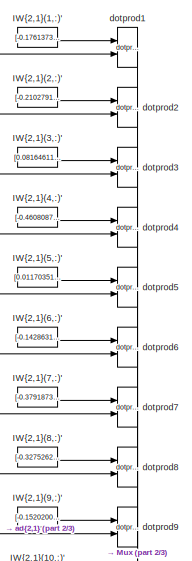
[diagram: Cascade-Forward Neural Network/Layer 2/LW{2,1} - part 1/3, top center region]
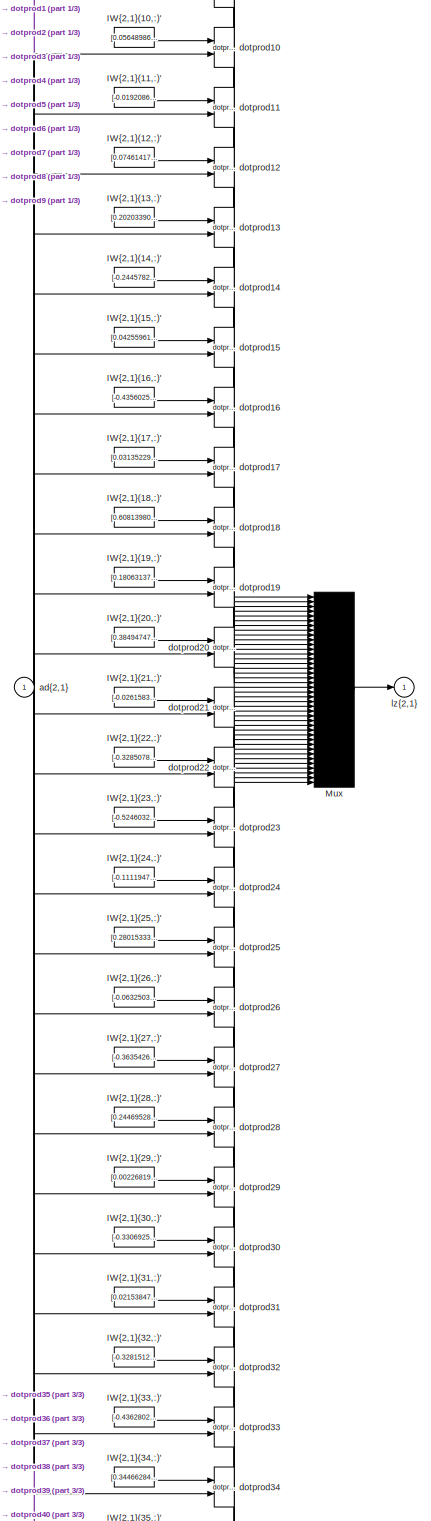
[diagram: Cascade-Forward Neural Network/Layer 2/LW{2,1} - part 2/3, full width, middle band]
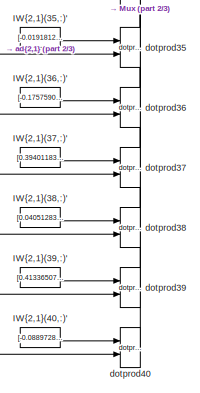
[diagram: Cascade-Forward Neural Network/Layer 2/LW{2,1} - part 3/3, bottom center region]
BLOCK [SubSystem] Cascade-Forward Neural Network/Layer 2/LW{2,1}
  Ports = [1, 1]
  RequestExecContextInheritance = off
BLOCK [Constant] Cascade-Forward Neural Network/Layer 2/LW{2,1}/IW{2,1}(1,:)'
  Value = [-0.176137388884915202513781196103082038462162017822265625;0.50028176783017153095300955101265572011470794677734375;-0.12057820034361142746970330108524649403989315032958984375;0.20446018749594718766360301742679439485073089599609375;-0.1761612242264165295591027415866847150027751922607421875;-0.402418067148075098149462291985400952398777008056640625;0.11341753355620028120842590624306467361748218536376...<+754ch>
BLOCK [Constant] Cascade-Forward Neural Network/Layer 2/LW{2,1}/IW{2,1}(10,:)'
  Value = [0.05648986378617339154661891598152578808367252349853515625;-0.14990034317870393199001455286634154617786407470703125;0.246785303194086369504844924449571408331394195556640625;0.11811798730162485771000291379095870070159435272216796875;0.41456739796269992393007441933150403201580047607421875;-0.55001679579737150493912167803500778973102569580078125;0.4514853921526093549765334955736761912703514099121093...<+750ch>
BLOCK [Constant] Cascade-Forward Neural Network/Layer 2/LW{2,1}/IW{2,1}(11,:)'
  Value = [-0.019208633225592221249744540045867324806749820709228515625;-0.355390577436491772456150783909833990037441253662109375;0.1887287119862288975458142203933675773441791534423828125;-0.4666445606272040524942212869063951075077056884765625;-0.278451826826170922846159783148323185741901397705078125;0.3125935759011031489507104197400622069835662841796875;0.018758123053234983940162905469151155557483434677124...<+753ch>
BLOCK [Constant] Cascade-Forward Neural Network/Layer 2/LW{2,1}/IW{2,1}(12,:)'
  Value = [0.0746141711079403024964307178379385732114315032958984375;0.061333223868511733967157084634891361929476261138916015625;0.36575703536214365652057267652708105742931365966796875;-0.267533628941942935863806951601873151957988739013671875;0.457862656598575890054547699037357233464717864990234375;-0.11016627584483069945964217595246736891567707061767578125;0.470502121810955020730915521198767237365245819091...<+755ch>
BLOCK [Constant] Cascade-Forward Neural Network/Layer 2/LW{2,1}/IW{2,1}(13,:)'
  Value = [0.2020339032042033355907051372923888266086578369140625;0.17464460825596528348313540845992974936962127685546875;0.315769067153972959882679560905671678483486175537109375;0.058342855304167891283828595305749331600964069366455078125;-0.09027692819781772681775322553221485577523708343505859375;-0.61125964015581946142674496513791382312774658203125;-0.199191948907599475360186147554486524313688278198242187...<+751ch>
BLOCK [Constant] Cascade-Forward Neural Network/Layer 2/LW{2,1}/IW{2,1}(14,:)'
  Value = [-0.244578207588801055383243010510341264307498931884765625;-0.19907799570775719377735413218033500015735626220703125;-0.183786567630399966244425513650639913976192474365234375;-0.030581190078338392479562202197485021315515041351318359375;0.0944812328584142824272618099712417460978031158447265625;-0.470915718737511312941279584265430457890033721923828125;-0.3750157981068959478498925363965099677443504333...<+750ch>
BLOCK [Constant] Cascade-Forward Neural Network/Layer 2/LW{2,1}/IW{2,1}(15,:)'
  Value = [0.042559618462692239138078775795293040573596954345703125;0.44184736905871668799505869174026884138584136962890625;0.163588209102911330550256252536200918257236480712890625;-0.260745566130445138863791498806676827371120452880859375;-0.1789559652621708352171481237746775150299072265625;-0.2072246432997381926366387006055447272956371307373046875;-0.1303993812676075558787402997040771879255771636962890625;...<+734ch>
BLOCK [Constant] Cascade-Forward Neural Network/Layer 2/LW{2,1}/IW{2,1}(16,:)'
  Value = [-0.435602508023883616683491482035606168210506439208984375;-0.1318234371041042962691136608555098064243793487548828125;0.5234376282960060411397762436536140739917755126953125;-0.23645198781025744683148559488472528755664825439453125;-0.3475518457066772981534086284227669239044189453125;-0.12755851954561847616531622406910173594951629638671875;-0.349350092712957527307793270665570162236690521240234375;-0...<+758ch>
BLOCK [Constant] Cascade-Forward Neural Network/Layer 2/LW{2,1}/IW{2,1}(17,:)'
  Value = [0.031352295896761105120642554311416461132466793060302734375;0.31048941443565869491294506588019430637359619140625;0.170326364825399423352791927754878997802734375;-0.404193637109247438932158047464326955378055572509765625;-0.4098537190538718011367791405064053833484649658203125;0.383047673633663599002119326542015187442302703857421875;-0.0691251944708456689259179483997286297380924224853515625;0.036989...<+757ch>
BLOCK [Constant] Cascade-Forward Neural Network/Layer 2/LW{2,1}/IW{2,1}(18,:)'
  Value = [0.60813980117653698709290210899780504405498504638671875;-0.07882132763598916069813782314668060280382633209228515625;-0.164465911123127417337030919952667318284511566162109375;-0.22534994804191310624474908763659186661243438720703125;0.314249271370629801314322548932977952063083648681640625;-0.22219354797628942943532592835254035890102386474609375;0.5181494418068005591848645963182207196950912475585937...<+746ch>
BLOCK [Constant] Cascade-Forward Neural Network/Layer 2/LW{2,1}/IW{2,1}(19,:)'
  Value = [0.1806313753465185190094643985503353178501129150390625;-0.0253287535284681987468591302103959606029093265533447265625;-0.27602665108137092175866200705058872699737548828125;-0.01443588808905204266819222169715430936776101589202880859375;0.2475970243598913655969084857133566401898860931396484375;0.00327887964568397693998491604361333884298801422119140625;-0.190086169698289092488963092364429030567407608...<+760ch>
BLOCK [Constant] Cascade-Forward Neural Network/Layer 2/LW{2,1}/IW{2,1}(2,:)'
  Value = [-0.21027913671055475930415923357941210269927978515625;-0.2477788675127187978386444910938735119998455047607421875;-0.332698039446253146511622844627709127962589263916015625;-0.09285547092978611860569770897200214676558971405029296875;-0.1498611925049369297813228740778868086636066436767578125;0.0310743558379157173987561435524185071699321269989013671875;-0.520694300310282631727432089974172413349151611...<+758ch>
BLOCK [Constant] Cascade-Forward Neural Network/Layer 2/LW{2,1}/IW{2,1}(20,:)'
  Value = [0.384947478455465563751403124115313403308391571044921875;-0.1834300159063213808696701789813232608139514923095703125;-0.49958004795194488334431071052676998078823089599609375;0.23941516417568309282870586685021407902240753173828125;-0.11558192383851502438307790043836575932800769805908203125;0.382302189081748899912582828619633801281452178955078125;-0.18862623567436870297697737441922072321176528930664...<+743ch>
BLOCK [Constant] Cascade-Forward Neural Network/Layer 2/LW{2,1}/IW{2,1}(21,:)'
  Value = [-0.026158359691785960932097765407888800837099552154541015625;0.0343482633124333192053967422907589934766292572021484375;-0.1940530329564747746839969977372675202786922454833984375;0.1357373078238660324412734325960627757012844085693359375;0.363211821302089121754619327475666068494319915771484375;-0.4665476159431278802003362216055393218994140625;-0.45955073451597805433976873246137984097003936767578125...<+739ch>
BLOCK [Constant] Cascade-Forward Neural Network/Layer 2/LW{2,1}/IW{2,1}(22,:)'
  Value = [-0.328507847216712167703889235781389288604259490966796875;-0.49078812353309564375791751444921828806400299072265625;0.174528128408080573930050150011084042489528656005859375;0.32382622996894883105056806016364134848117828369140625;0.266294599024905931372586564975790679454803466796875;0.0804768123783303479523709711429546587169170379638671875;-0.491741436767244410876998017556616105139255523681640625;-...<+747ch>
BLOCK [Constant] Cascade-Forward Neural Network/Layer 2/LW{2,1}/IW{2,1}(23,:)'
  Value = [-0.5246032099803701331808269969769753515720367431640625;-0.001508811394683430562313475320479483343660831451416015625;-0.302114026696339410538172387532540597021579742431640625;-0.3615699887410268598131324324640445411205291748046875;0.340322297835058462656121491818339563906192779541015625;-0.459149631660877799443909452747902832925319671630859375;0.31911836067518262183284605271182954311370849609375;...<+744ch>
BLOCK [Constant] Cascade-Forward Neural Network/Layer 2/LW{2,1}/IW{2,1}(24,:)'
  Value = [-0.1111947649313846653296167232838342897593975067138671875;0.200940669446980024748228288444806821644306182861328125;-0.0616645841116889581456916857860051095485687255859375;0.076223739633089149236866433057002723217010498046875;0.026046903355340482455471118328205193392932415008544921875;-0.2305902447527705678709253334091044962406158447265625;-0.156389786179823742084948889896622858941555023193359375...<+749ch>
BLOCK [Constant] Cascade-Forward Neural Network/Layer 2/LW{2,1}/IW{2,1}(25,:)'
  Value = [0.280153330073379891462792556922067888081073760986328125;0.1249217610603462758067649929216713644564151763916015625;0.009820987805096929867954003157137776724994182586669921875;-0.309950885651357754824175572139210999011993408203125;-0.7092614778482626558542278871755115687847137451171875;0.5642309040311206391749010435887612402439117431640625;0.18015090179442572182466619779006578028202056884765625;-0...<+746ch>
BLOCK [Constant] Cascade-Forward Neural Network/Layer 2/LW{2,1}/IW{2,1}(26,:)'
  Value = [-0.06325036086238693122663079293488408438861370086669921875;0.058238153607976371473053944782805046997964382171630859375;0.336588230374907038111587098683230578899383544921875;0.50030621824279375431387961725704371929168701171875;0.01270753683537946543413710287495632655918598175048828125;-0.46028963043352655315487709231092594563961029052734375;-0.27845457624924102590924235300917644053697586059570312...<+732ch>
BLOCK [Constant] Cascade-Forward Neural Network/Layer 2/LW{2,1}/IW{2,1}(27,:)'
  Value = [-0.36354266623686004589188769386964850127696990966796875;0.276845172012420537299703937605954706668853759765625;0.424088075860408142414570420442032627761363983154296875;-0.450138658513447753595215772293158806860446929931640625;-0.043091415242180193534426990709107485599815845489501953125;-0.1298979697441395575463474187927204184234142303466796875;0.197959620022168686359620437542616855353116989135742...<+752ch>
BLOCK [Constant] Cascade-Forward Neural Network/Layer 2/LW{2,1}/IW{2,1}(28,:)'
  Value = [0.2446952854619049155804333395280991680920124053955078125;0.2316674350171547824839279883235576562583446502685546875;-0.4096714796876692599170155517640523612499237060546875;-0.0115227305902682701510553187063123914413154125213623046875;0.024889925196210395397233838821193785406649112701416015625;0.298907942774744250780116772148176096379756927490234375;-0.112116950568242002006513757805805653333663940...<+754ch>
BLOCK [Constant] Cascade-Forward Neural Network/Layer 2/LW{2,1}/IW{2,1}(29,:)'
  Value = [0.00226819403995467787360507117000452126376330852508544921875;0.349666341901150035109679947709082625806331634521484375;0.036087432125656848658223907477804459631443023681640625;0.0332411305567450743314594774346915073692798614501953125;0.53651684742816685425026435041218064725399017333984375;-0.350406792782046228040826463256962597370147705078125;-0.135872765312322091313390615141543094068765640258789...<+740ch>
BLOCK [Constant] Cascade-Forward Neural Network/Layer 2/LW{2,1}/IW{2,1}(3,:)'
  Value = [0.0816461173854018673612387146931723691523075103759765625;-0.261117193882739406785020719325984828174114227294921875;0.122522929265062308079592412468628026545047760009765625;0.270219819748072687115580947647686116397380828857421875;0.352897755438928817373067658991203643381595611572265625;0.31393206010171559317001310773775912821292877197265625;-0.13356517117328031707401692074199672788381576538085937...<+753ch>
BLOCK [Constant] Cascade-Forward Neural Network/Layer 2/LW{2,1}/IW{2,1}(30,:)'
  Value = [-0.3306925679839081144706369741470552980899810791015625;0.220890527665580427285618725363747216761112213134765625;0.212903745483597639509554255710099823772907257080078125;0.1884877067281105211815628308613668195903301239013671875;0.048284579425583361300677864846875309012830257415771484375;-0.409342973597175252553626023654942400753498077392578125;0.283925683154689190157426992300315760076045989990234...<+744ch>
BLOCK [Constant] Cascade-Forward Neural Network/Layer 2/LW{2,1}/IW{2,1}(31,:)'
  Value = [0.0215384733115369549072415367163557675667107105255126953125;-0.08801621602792353282751491860835812985897064208984375;-0.176505499369202289994262855543638579547405242919921875;-0.273580292851952566746120965035515837371349334716796875;0.4901919617811636431525812440668232738971710205078125;0.1771336236845499623182575987812015227973461151123046875;-0.4181283115515936343875580405438086017966270446777...<+753ch>
BLOCK [Constant] Cascade-Forward Neural Network/Layer 2/LW{2,1}/IW{2,1}(32,:)'
  Value = [-0.32815127477848216042133344672038219869136810302734375;-0.2453637873036862704356764197655138559639453887939453125;-0.350280434198023737923932685589534230530261993408203125;0.035837396292614571990942096135768224485218524932861328125;0.51865856104648944135959709456074051558971405029296875;0.206520959052681474243939874213538132607936859130859375;-0.3961457269274872294850808884802972897887229919433...<+751ch>
BLOCK [Constant] Cascade-Forward Neural Network/Layer 2/LW{2,1}/IW{2,1}(33,:)'
  Value = [-0.43628020460330418917038741710712201893329620361328125;0.017563251242555567854797260451960028149187564849853515625;-0.30957652597954332662766319117508828639984130859375;-0.0687849146309069403582014956555212847888469696044921875;0.396138732540271820692368009986239485442638397216796875;0.08814572229026949867769502588998875580728054046630859375;-0.79094994335136947771758286762633360922336578369140...<+739ch>
BLOCK [Constant] Cascade-Forward Neural Network/Layer 2/LW{2,1}/IW{2,1}(34,:)'
  Value = [0.344662840302721484864179046780918724834918975830078125;0.417936675615025399199708999731228686869144439697265625;-0.24870528986843842833565076944069005548954010009765625;-0.2951329900015047247308075384353287518024444580078125;-0.262755646918021834590462049163761548697948455810546875;0.2745961825160396774236915007350035011768341064453125;-0.4677051546583828045555719654657877981662750244140625;0.1...<+741ch>
BLOCK [Constant] Cascade-Forward Neural Network/Layer 2/LW{2,1}/IW{2,1}(35,:)'
  Value = [-0.0191812408731082927049182984546860097907483577728271484375;0.35228150335212593535771929964539594948291778564453125;-0.55214048710431173905277546509751118719577789306640625;0.315096302796141258806272844594786874949932098388671875;-0.1192397972661976279784568077957374043762683868408203125;-0.359058160265789128029467747182934544980525970458984375;0.147250833767774064186895088823803234845399856567...<+758ch>
BLOCK [Constant] Cascade-Forward Neural Network/Layer 2/LW{2,1}/IW{2,1}(36,:)'
  Value = [-0.1757590506340530878137684567263931967318058013916015625;0.2820796055464345197805187126505188643932342529296875;0.26572245923039361503725785951246507465839385986328125;-0.259249394340838767991641589105711318552494049072265625;0.020411542918698045989689404677847051061689853668212890625;-0.398445274317455189194703280008980073034763336181640625;0.127132921167036366805191960338561329990625381469726...<+765ch>
BLOCK [Constant] Cascade-Forward Neural Network/Layer 2/LW{2,1}/IW{2,1}(37,:)'
  Value = [0.394011833033906466727813722172868438065052032470703125;-0.347616675490213911103865029872395098209381103515625;-0.51657774469059136723814162905910052359104156494140625;-0.43015203345993457961782269194372929632663726806640625;-0.166741034088652317901591004556394182145595550537109375;0.0059070158991292136263506762361430446617305278778076171875;0.0082836313008702224663926116932088916655629873275756...<+756ch>
BLOCK [Constant] Cascade-Forward Neural Network/Layer 2/LW{2,1}/IW{2,1}(38,:)'
  Value = [0.0405128326986459452729860686304164119064807891845703125;0.28887063998623252469855060553527437150478363037109375;-0.26236924497316049809114701929502189159393310546875;-0.228447526583541782319031199222081340849399566650390625;0.30568144069946023844153160098358057439327239990234375;0.0204369270177309943214982723702632938511669635772705078125;-0.07032751158287640913524541019796743057668209075927734...<+744ch>
BLOCK [Constant] Cascade-Forward Neural Network/Layer 2/LW{2,1}/IW{2,1}(39,:)'
  Value = [0.41336507881286210785987123017548583447933197021484375;0.2909593217507084883521883966750465333461761474609375;-0.06963075489365121162332883386625326238572597503662109375;-0.239193609292578546199337097277748398482799530029296875;-0.1862448451074154576190267107449471950531005859375;-0.3571451434536261348995367370662279427051544189453125;0.45449673742752916272280572229647077620029449462890625;0.408...<+727ch>
BLOCK [Constant] Cascade-Forward Neural Network/Layer 2/LW{2,1}/IW{2,1}(4,:)'
  Value = [-0.460808713367344802147584914564504288136959075927734375;0.230407147394246780702786736583220772445201873779296875;0.1099524752560392670819311433660914190113544464111328125;0.2873851659698483107518995893769897520542144775390625;-0.06405700355903444498384402550072991289198398590087890625;0.0696877285487304820588150278126704506576061248779296875;0.193261593056860830897036862552340608090162277221679...<+746ch>
BLOCK [Constant] Cascade-Forward Neural Network/Layer 2/LW{2,1}/IW{2,1}(40,:)'
  Value = [-0.0889728461693838623691732436782331205904483795166015625;0.38229441058919866325283010155544616281986236572265625;-0.367951732674069942330419280551723204553127288818359375;-0.438702279729030586441496097904746420681476593017578125;0.307567139920366938721230098963133059442043304443359375;0.1965026636872819476575813268937054090201854705810546875;0.141234404439389754637446117158106062561273574829101...<+748ch>
BLOCK [Constant] Cascade-Forward Neural Network/Layer 2/LW{2,1}/IW{2,1}(5,:)'
  Value = [0.0117035197107933745808150405309788766317069530487060546875;-0.173053647818173284012033263934426940977573394775390625;-0.045596733406064134108692798008632962591946125030517578125;-0.407885052016990157230935665211291052401065826416015625;-0.421342565059521667603092964782263152301311492919921875;-0.405463217099266526322054460251820273697376251220703125;-0.363946994203331375405952030632761307060718...<+755ch>
BLOCK [Constant] Cascade-Forward Neural Network/Layer 2/LW{2,1}/IW{2,1}(6,:)'
  Value = [-0.1428631506407602447250582144988584332168102264404296875;0.037283113645202724251159764889962389133870601654052734375;-0.1707524813858988521619863831801922060549259185791015625;0.1102798926155399150683678044515545479953289031982421875;-0.265198851379656541649154632978024892508983612060546875;0.51070832486155082197143428857089020311832427978515625;0.14488641366319829351105852310865884646773338317...<+755ch>
BLOCK [Constant] Cascade-Forward Neural Network/Layer 2/LW{2,1}/IW{2,1}(7,:)'
  Value = [-0.37918738902457171935367341575329191982746124267578125;0.198152077303520079976095757956500165164470672607421875;0.223950907581569602644577798855607397854328155517578125;0.0998980796392307246467368031517253257334232330322265625;-0.075065682220540497215921504903235472738742828369140625;0.03097471805146224943516841676682815887033939361572265625;-0.49303134282587801617836475998046807944774627685546...<+733ch>
BLOCK [Constant] Cascade-Forward Neural Network/Layer 2/LW{2,1}/IW{2,1}(8,:)'
  Value = [-0.327526284666781519749889639570028521120548248291015625;-0.365706493251323927484719433778082020580768585205078125;-0.49391667050942833494531214455491863191127777099609375;-0.226389123565816696714847466864739544689655303955078125;-0.0709876396016018151868820496019907295703887939453125;-0.248778137052819425800720409824862144887447357177734375;-0.110337333920598454350958661507320357486605644226074...<+762ch>
BLOCK [Constant] Cascade-Forward Neural Network/Layer 2/LW{2,1}/IW{2,1}(9,:)'
  Value = [-0.1520200267282312556194057151515153236687183380126953125;0.334465896941725571167580710607580840587615966796875;0.37561699282085159179445099653094075620174407958984375;-0.5043079832551919938765649931156076490879058837890625;-0.1073941621632452381174260835905442945659160614013671875;-0.140939528881456166420349518375587649643421173095703125;0.1031040585511183438338633777675568126142024993896484375...<+758ch>
BLOCK [Mux] Cascade-Forward Neural Network/Layer 2/LW{2,1}/Mux
  Inputs = 40
  Ports = [40, 1]
BLOCK [Inport] Cascade-Forward Neural Network/Layer 2/LW{2,1}/ad{2,1}
  IconDisplay = Port number
  PortDimensions = 20
BLOCK [Reference] Cascade-Forward Neural Network/Layer 2/LW{2,1}/dotprod1  REF=neural/Weight Functions/dotprod
  Ports = [2, 1]
  SourceBlock = neural/Weight Functions/dotprod
  SourceProductBaseCode = NN
  SourceProductName = Neural Network Toolbox
  SourceType = DOTPROD
BLOCK [Reference] Cascade-Forward Neural Network/Layer 2/LW{2,1}/dotprod10  REF=neural/Weight Functions/dotprod
  Ports = [2, 1]
  SourceBlock = neural/Weight Functions/dotprod
  SourceProductBaseCode = NN
  SourceProductName = Neural Network Toolbox
  SourceType = DOTPROD
BLOCK [Reference] Cascade-Forward Neural Network/Layer 2/LW{2,1}/dotprod11  REF=neural/Weight Functions/dotprod
  Ports = [2, 1]
  SourceBlock = neural/Weight Functions/dotprod
  SourceProductBaseCode = NN
  SourceProductName = Neural Network Toolbox
  SourceType = DOTPROD
BLOCK [Reference] Cascade-Forward Neural Network/Layer 2/LW{2,1}/dotprod12  REF=neural/Weight Functions/dotprod
  Ports = [2, 1]
  SourceBlock = neural/Weight Functions/dotprod
  SourceProductBaseCode = NN
  SourceProductName = Neural Network Toolbox
  SourceType = DOTPROD
BLOCK [Reference] Cascade-Forward Neural Network/Layer 2/LW{2,1}/dotprod13  REF=neural/Weight Functions/dotprod
  Ports = [2, 1]
  SourceBlock = neural/Weight Functions/dotprod
  SourceProductBaseCode = NN
  SourceProductName = Neural Network Toolbox
  SourceType = DOTPROD
BLOCK [Reference] Cascade-Forward Neural Network/Layer 2/LW{2,1}/dotprod14  REF=neural/Weight Functions/dotprod
  Ports = [2, 1]
  SourceBlock = neural/Weight Functions/dotprod
  SourceProductBaseCode = NN
  SourceProductName = Neural Network Toolbox
  SourceType = DOTPROD
BLOCK [Reference] Cascade-Forward Neural Network/Layer 2/LW{2,1}/dotprod15  REF=neural/Weight Functions/dotprod
  Ports = [2, 1]
  SourceBlock = neural/Weight Functions/dotprod
  SourceProductBaseCode = NN
  SourceProductName = Neural Network Toolbox
  SourceType = DOTPROD
BLOCK [Reference] Cascade-Forward Neural Network/Layer 2/LW{2,1}/dotprod16  REF=neural/Weight Functions/dotprod
  Ports = [2, 1]
  SourceBlock = neural/Weight Functions/dotprod
  SourceProductBaseCode = NN
  SourceProductName = Neural Network Toolbox
  SourceType = DOTPROD
BLOCK [Reference] Cascade-Forward Neural Network/Layer 2/LW{2,1}/dotprod17  REF=neural/Weight Functions/dotprod
  Ports = [2, 1]
  SourceBlock = neural/Weight Functions/dotprod
  SourceProductBaseCode = NN
  SourceProductName = Neural Network Toolbox
  SourceType = DOTPROD
BLOCK [Reference] Cascade-Forward Neural Network/Layer 2/LW{2,1}/dotprod18  REF=neural/Weight Functions/dotprod
  Ports = [2, 1]
  SourceBlock = neural/Weight Functions/dotprod
  SourceProductBaseCode = NN
  SourceProductName = Neural Network Toolbox
  SourceType = DOTPROD
BLOCK [Reference] Cascade-Forward Neural Network/Layer 2/LW{2,1}/dotprod19  REF=neural/Weight Functions/dotprod
  Ports = [2, 1]
  SourceBlock = neural/Weight Functions/dotprod
  SourceProductBaseCode = NN
  SourceProductName = Neural Network Toolbox
  SourceType = DOTPROD
BLOCK [Reference] Cascade-Forward Neural Network/Layer 2/LW{2,1}/dotprod2  REF=neural/Weight Functions/dotprod
  Ports = [2, 1]
  SourceBlock = neural/Weight Functions/dotprod
  SourceProductBaseCode = NN
  SourceProductName = Neural Network Toolbox
  SourceType = DOTPROD
BLOCK [Reference] Cascade-Forward Neural Network/Layer 2/LW{2,1}/dotprod20  REF=neural/Weight Functions/dotprod
  Ports = [2, 1]
  SourceBlock = neural/Weight Functions/dotprod
  SourceProductBaseCode = NN
  SourceProductName = Neural Network Toolbox
  SourceType = DOTPROD
BLOCK [Reference] Cascade-Forward Neural Network/Layer 2/LW{2,1}/dotprod21  REF=neural/Weight Functions/dotprod
  Ports = [2, 1]
  SourceBlock = neural/Weight Functions/dotprod
  SourceProductBaseCode = NN
  SourceProductName = Neural Network Toolbox
  SourceType = DOTPROD
BLOCK [Reference] Cascade-Forward Neural Network/Layer 2/LW{2,1}/dotprod22  REF=neural/Weight Functions/dotprod
  Ports = [2, 1]
  SourceBlock = neural/Weight Functions/dotprod
  SourceProductBaseCode = NN
  SourceProductName = Neural Network Toolbox
  SourceType = DOTPROD
BLOCK [Reference] Cascade-Forward Neural Network/Layer 2/LW{2,1}/dotprod23  REF=neural/Weight Functions/dotprod
  Ports = [2, 1]
  SourceBlock = neural/Weight Functions/dotprod
  SourceProductBaseCode = NN
  SourceProductName = Neural Network Toolbox
  SourceType = DOTPROD
BLOCK [Reference] Cascade-Forward Neural Network/Layer 2/LW{2,1}/dotprod24  REF=neural/Weight Functions/dotprod
  Ports = [2, 1]
  SourceBlock = neural/Weight Functions/dotprod
  SourceProductBaseCode = NN
  SourceProductName = Neural Network Toolbox
  SourceType = DOTPROD
BLOCK [Reference] Cascade-Forward Neural Network/Layer 2/LW{2,1}/dotprod25  REF=neural/Weight Functions/dotprod
  Ports = [2, 1]
  SourceBlock = neural/Weight Functions/dotprod
  SourceProductBaseCode = NN
  SourceProductName = Neural Network Toolbox
  SourceType = DOTPROD
BLOCK [Reference] Cascade-Forward Neural Network/Layer 2/LW{2,1}/dotprod26  REF=neural/Weight Functions/dotprod
  Ports = [2, 1]
  SourceBlock = neural/Weight Functions/dotprod
  SourceProductBaseCode = NN
  SourceProductName = Neural Network Toolbox
  SourceType = DOTPROD
BLOCK [Reference] Cascade-Forward Neural Network/Layer 2/LW{2,1}/dotprod27  REF=neural/Weight Functions/dotprod
  Ports = [2, 1]
  SourceBlock = neural/Weight Functions/dotprod
  SourceProductBaseCode = NN
  SourceProductName = Neural Network Toolbox
  SourceType = DOTPROD
BLOCK [Reference] Cascade-Forward Neural Network/Layer 2/LW{2,1}/dotprod28  REF=neural/Weight Functions/dotprod
  Ports = [2, 1]
  SourceBlock = neural/Weight Functions/dotprod
  SourceProductBaseCode = NN
  SourceProductName = Neural Network Toolbox
  SourceType = DOTPROD
BLOCK [Reference] Cascade-Forward Neural Network/Layer 2/LW{2,1}/dotprod29  REF=neural/Weight Functions/dotprod
  Ports = [2, 1]
  SourceBlock = neural/Weight Functions/dotprod
  SourceProductBaseCode = NN
  SourceProductName = Neural Network Toolbox
  SourceType = DOTPROD
BLOCK [Reference] Cascade-Forward Neural Network/Layer 2/LW{2,1}/dotprod3  REF=neural/Weight Functions/dotprod
  Ports = [2, 1]
  SourceBlock = neural/Weight Functions/dotprod
  SourceProductBaseCode = NN
  SourceProductName = Neural Network Toolbox
  SourceType = DOTPROD
BLOCK [Reference] Cascade-Forward Neural Network/Layer 2/LW{2,1}/dotprod30  REF=neural/Weight Functions/dotprod
  Ports = [2, 1]
  SourceBlock = neural/Weight Functions/dotprod
  SourceProductBaseCode = NN
  SourceProductName = Neural Network Toolbox
  SourceType = DOTPROD
BLOCK [Reference] Cascade-Forward Neural Network/Layer 2/LW{2,1}/dotprod31  REF=neural/Weight Functions/dotprod
  Ports = [2, 1]
  SourceBlock = neural/Weight Functions/dotprod
  SourceProductBaseCode = NN
  SourceProductName = Neural Network Toolbox
  SourceType = DOTPROD
BLOCK [Reference] Cascade-Forward Neural Network/Layer 2/LW{2,1}/dotprod32  REF=neural/Weight Functions/dotprod
  Ports = [2, 1]
  SourceBlock = neural/Weight Functions/dotprod
  SourceProductBaseCode = NN
  SourceProductName = Neural Network Toolbox
  SourceType = DOTPROD
BLOCK [Reference] Cascade-Forward Neural Network/Layer 2/LW{2,1}/dotprod33  REF=neural/Weight Functions/dotprod
  Ports = [2, 1]
  SourceBlock = neural/Weight Functions/dotprod
  SourceProductBaseCode = NN
  SourceProductName = Neural Network Toolbox
  SourceType = DOTPROD
BLOCK [Reference] Cascade-Forward Neural Network/Layer 2/LW{2,1}/dotprod34  REF=neural/Weight Functions/dotprod
  Ports = [2, 1]
  SourceBlock = neural/Weight Functions/dotprod
  SourceProductBaseCode = NN
  SourceProductName = Neural Network Toolbox
  SourceType = DOTPROD
BLOCK [Reference] Cascade-Forward Neural Network/Layer 2/LW{2,1}/dotprod35  REF=neural/Weight Functions/dotprod
  Ports = [2, 1]
  SourceBlock = neural/Weight Functions/dotprod
  SourceProductBaseCode = NN
  SourceProductName = Neural Network Toolbox
  SourceType = DOTPROD
BLOCK [Reference] Cascade-Forward Neural Network/Layer 2/LW{2,1}/dotprod36  REF=neural/Weight Functions/dotprod
  Ports = [2, 1]
  SourceBlock = neural/Weight Functions/dotprod
  SourceProductBaseCode = NN
  SourceProductName = Neural Network Toolbox
  SourceType = DOTPROD
BLOCK [Reference] Cascade-Forward Neural Network/Layer 2/LW{2,1}/dotprod37  REF=neural/Weight Functions/dotprod
  Ports = [2, 1]
  SourceBlock = neural/Weight Functions/dotprod
  SourceProductBaseCode = NN
  SourceProductName = Neural Network Toolbox
  SourceType = DOTPROD
BLOCK [Reference] Cascade-Forward Neural Network/Layer 2/LW{2,1}/dotprod38  REF=neural/Weight Functions/dotprod
  Ports = [2, 1]
  SourceBlock = neural/Weight Functions/dotprod
  SourceProductBaseCode = NN
  SourceProductName = Neural Network Toolbox
  SourceType = DOTPROD
BLOCK [Reference] Cascade-Forward Neural Network/Layer 2/LW{2,1}/dotprod39  REF=neural/Weight Functions/dotprod
  Ports = [2, 1]
  SourceBlock = neural/Weight Functions/dotprod
  SourceProductBaseCode = NN
  SourceProductName = Neural Network Toolbox
  SourceType = DOTPROD
BLOCK [Reference] Cascade-Forward Neural Network/Layer 2/LW{2,1}/dotprod4  REF=neural/Weight Functions/dotprod
  Ports = [2, 1]
  SourceBlock = neural/Weight Functions/dotprod
  SourceProductBaseCode = NN
  SourceProductName = Neural Network Toolbox
  SourceType = DOTPROD
BLOCK [Reference] Cascade-Forward Neural Network/Layer 2/LW{2,1}/dotprod40  REF=neural/Weight Functions/dotprod
  Ports = [2, 1]
  SourceBlock = neural/Weight Functions/dotprod
  SourceProductBaseCode = NN
  SourceProductName = Neural Network Toolbox
  SourceType = DOTPROD
BLOCK [Reference] Cascade-Forward Neural Network/Layer 2/LW{2,1}/dotprod5  REF=neural/Weight Functions/dotprod
  Ports = [2, 1]
  SourceBlock = neural/Weight Functions/dotprod
  SourceProductBaseCode = NN
  SourceProductName = Neural Network Toolbox
  SourceType = DOTPROD
BLOCK [Reference] Cascade-Forward Neural Network/Layer 2/LW{2,1}/dotprod6  REF=neural/Weight Functions/dotprod
  Ports = [2, 1]
  SourceBlock = neural/Weight Functions/dotprod
  SourceProductBaseCode = NN
  SourceProductName = Neural Network Toolbox
  SourceType = DOTPROD
BLOCK [Reference] Cascade-Forward Neural Network/Layer 2/LW{2,1}/dotprod7  REF=neural/Weight Functions/dotprod
  Ports = [2, 1]
  SourceBlock = neural/Weight Functions/dotprod
  SourceProductBaseCode = NN
  SourceProductName = Neural Network Toolbox
  SourceType = DOTPROD
BLOCK [Reference] Cascade-Forward Neural Network/Layer 2/LW{2,1}/dotprod8  REF=neural/Weight Functions/dotprod
  Ports = [2, 1]
  SourceBlock = neural/Weight Functions/dotprod
  SourceProductBaseCode = NN
  SourceProductName = Neural Network Toolbox
  SourceType = DOTPROD
BLOCK [Reference] Cascade-Forward Neural Network/Layer 2/LW{2,1}/dotprod9  REF=neural/Weight Functions/dotprod
  Ports = [2, 1]
  SourceBlock = neural/Weight Functions/dotprod
  SourceProductBaseCode = NN
  SourceProductName = Neural Network Toolbox
  SourceType = DOTPROD
BLOCK [Outport] Cascade-Forward Neural Network/Layer 2/LW{2,1}/lz{2,1}
  IconDisplay = Port number
BLOCK [Inport] Cascade-Forward Neural Network/Layer 2/a{1} 
  IconDisplay = Port number
  Port = 2
  PortDimensions = 20
BLOCK [Outport] Cascade-Forward Neural Network/Layer 2/a{2}
  IconDisplay = Port number
  InitialOutput = [0;0;0;0;0;0;0;0;0;0;0;0;0;0;0;0;0;0;0;0;0;0;0;0;0;0;0;0;0;0;0;0;0;0;0;0;0;0;0;0]
BLOCK [Constant] Cascade-Forward Neural Network/Layer 2/b{2}
  Value = [1.6329569172676661192866731653339229524135589599609375;1.4724718896720465632910190834081731736660003662109375;1.348105636054453437822076011798344552516937255859375;-1.1871424413250297735800131704309023916721343994140625;1.2780420952432629544404107946320436894893646240234375;-1.1183109903737473711515804097871296107769012451171875;-1.0092056700358338350298481600475497543811798095703125;1.0934749941...<+1840ch>
BLOCK [Sum] Cascade-Forward Neural Network/Layer 2/netsum
  Inputs = 3
  Ports = [3, 1]
BLOCK [Inport] Cascade-Forward Neural Network/Layer 2/p{1}
  IconDisplay = Port number
  PortDimensions = 9
BLOCK [Reference] Cascade-Forward Neural Network/Layer 2/tansig  REF=neural/Transfer Functions/tansig
  Ports = [1, 1]
  SourceBlock = neural/Transfer Functions/tansig
  SourceProductBaseCode = NN
  SourceProductName = Neural Network Toolbox
  SourceType = TANSIG
BLOCK [SubSystem] Cascade-Forward Neural Network/Layer 3
  Ports = [3, 1]
  RequestExecContextInheritance = off
BLOCK [SubSystem] Cascade-Forward Neural Network/Layer 3/Delays 1
  Ports = [1, 1]
  RequestExecContextInheritance = off
BLOCK [Mux] Cascade-Forward Neural Network/Layer 3/Delays 1/mux
  Inputs = 1
  Ports = [1, 1]
BLOCK [Outport] Cascade-Forward Neural Network/Layer 3/Delays 1/pd{3,1}
  IconDisplay = Port number
BLOCK [Inport] Cascade-Forward Neural Network/Layer 3/Delays 1/p{3}
  IconDisplay = Port number
  PortDimensions = 9
BLOCK [SubSystem] Cascade-Forward Neural Network/Layer 3/Delays 2
  Ports = [1, 1]
  RequestExecContextInheritance = off
BLOCK [Mux] Cascade-Forward Neural Network/Layer 3/Delays 2/mux
  Inputs = 1
  Ports = [1, 1]
BLOCK [Outport] Cascade-Forward Neural Network/Layer 3/Delays 2/pd{3,1}
  IconDisplay = Port number
BLOCK [Inport] Cascade-Forward Neural Network/Layer 3/Delays 2/p{3}
  IconDisplay = Port number
  PortDimensions = 20
BLOCK [SubSystem] Cascade-Forward Neural Network/Layer 3/Delays 3
  Ports = [1, 1]
  RequestExecContextInheritance = off
BLOCK [Mux] Cascade-Forward Neural Network/Layer 3/Delays 3/mux
  Inputs = 1
  Ports = [1, 1]
BLOCK [Outport] Cascade-Forward Neural Network/Layer 3/Delays 3/pd{3,2}
  IconDisplay = Port number
BLOCK [Inport] Cascade-Forward Neural Network/Layer 3/Delays 3/p{3}
  IconDisplay = Port number
  PortDimensions = 40
BLOCK [SubSystem] Cascade-Forward Neural Network/Layer 3/IW{3,1}
  Ports = [1, 1]
  RequestExecContextInheritance = off
BLOCK [Constant] Cascade-Forward Neural Network/Layer 3/IW{3,1}/IW{3,1}(1,:)'
  Value = [-0.0369977905475218638020606931604561395943164825439453125;-0.1814618111872595973554922466064454056322574615478515625;-0.29465635189526995230124839508789591491222381591796875;-0.16720975310671148950092401719302870333194732666015625;-0.257536891246349430861783957880106754601001739501953125;0.1764165009884643697812833806892740540206432342529296875;0.2089737781923423354246693861568928696215152740478...<+119ch>
BLOCK [Constant] Cascade-Forward Neural Network/Layer 3/IW{3,1}/IW{3,1}(10,:)'
  Value = [0.1532370074676365490073948194549302570521831512451171875;-0.095759157610415090999822496087290346622467041015625;0.10976140081796274816650083039348828606307506561279296875;-0.268160083274604110759042896461323834955692291259765625;-0.1131920325827235618287858187613892368972301483154296875;-0.192296831256019540301593906406196765601634979248046875;-0.2036281160807307533122667564384755678474903106689...<+124ch>
BLOCK [Constant] Cascade-Forward Neural Network/Layer 3/IW{3,1}/IW{3,1}(11,:)'
  Value = [0.01097746264326417316159467674197003361769020557403564453125;0.11839357647972516274226251198342652060091495513916015625;-0.361413882456698865031086143062566407024860382080078125;-0.00129825760992694524791069010660748972441069781780242919921875;0.15628538850160633710828506082179956138134002685546875;-0.2042766945934265387929684720802470110356807708740234375;0.1606225422447897788202908486709930002...<+131ch>
BLOCK [Constant] Cascade-Forward Neural Network/Layer 3/IW{3,1}/IW{3,1}(12,:)'
  Value = [-0.147942831562798027267291445241426117718219757080078125;-0.043117474060526246593116894700870034284889698028564453125;0.19462881539844867351263246746384538710117340087890625;0.09614815108351104644412998823099769651889801025390625;0.1192628328090584999277012911989004351198673248291015625;-0.3920160059707205046919398228055797517299652099609375;0.1712159511123132749066400037918356247246265411376953...<+117ch>
BLOCK [Constant] Cascade-Forward Neural Network/Layer 3/IW{3,1}/IW{3,1}(13,:)'
  Value = [-0.125238602826901856968078163845348171889781951904296875;-0.06907384565921222130402412631156039424240589141845703125;-0.01443553129248955659014175267884638742543756961822509765625;-0.04308885354805284950696631085520493797957897186279296875;0.226049482345582919418092160412925295531749725341796875;-0.071301529587577128221909106287057511508464813232421875;-0.0352574072820895714763800299351714784279...<+132ch>
BLOCK [Constant] Cascade-Forward Neural Network/Layer 3/IW{3,1}/IW{3,1}(14,:)'
  Value = [-0.387083372699908945246960456643137149512767791748046875;-0.326244480270388326204056284041143953800201416015625;0.08688835089162934288697925921951537020504474639892578125;-0.10966761616227020670333303087318199686706066131591796875;0.1919413346771530470835642745441873557865619659423828125;0.312026160925460482875593015705817379057407379150390625;-0.3863433552328532916142478370602475479245185852050...<+122ch>
BLOCK [Constant] Cascade-Forward Neural Network/Layer 3/IW{3,1}/IW{3,1}(15,:)'
  Value = [-0.14490658349127294446390123994206078350543975830078125;-0.274482947178163794177407908136956393718719482421875;-0.2454948341843517789495621173045947216451168060302734375;0.1880664159579661653953763789104414172470569610595703125;0.1694609471703043268586696967759053222835063934326171875;-0.24303568721583490575000041644671000540256500244140625;-0.0549894975639578856285716312868316890671849250793457...<+119ch>
BLOCK [Constant] Cascade-Forward Neural Network/Layer 3/IW{3,1}/IW{3,1}(16,:)'
  Value = [-0.259629129715710338377476773530361242592334747314453125;0.1644960458853547968782748966987128369510173797607421875;0.10886698784374947146513790130484267137944698333740234375;0.044951390083088960114565679759834893047809600830078125;-0.1280213205501929130125660094563500024378299713134765625;0.160115456170731473850565862449002452194690704345703125;0.2916950837944811691926361163496039807796478271484...<+122ch>
BLOCK [Constant] Cascade-Forward Neural Network/Layer 3/IW{3,1}/IW{3,1}(17,:)'
  Value = [0.27813926365795305084560595787479542195796966552734375;0.00995378426745482068616066584354484803043305873870849609375;0.165292102812554408952649964703596197068691253662109375;0.01283456148674966268430353011353872716426849365234375;0.33206473864316754518455354627803899347782135009765625;0.30489455099222639855582883683382533490657806396484375;-0.01691363422886938902567344200633669970557093620300292...<+125ch>
BLOCK [Constant] Cascade-Forward Neural Network/Layer 3/IW{3,1}/IW{3,1}(18,:)'
  Value = [-0.193421087893618615094482038330170325934886932373046875;-0.2184118530143972225499027217665570788085460662841796875;-0.213340577022640587312451998514006845653057098388671875;0.10817280965970092754258047307303058914840221405029296875;-0.08952085674493626132885992774390615522861480712890625;-0.1923411810986004055745723917425493709743022918701171875;0.19924941939538773350015787855227245017886161804...<+123ch>
BLOCK [Constant] Cascade-Forward Neural Network/Layer 3/IW{3,1}/IW{3,1}(19,:)'
  Value = [0.024213933745713532574850290757240145467221736907958984375;0.040993231717226456811697943294348078779876232147216796875;0.391285959056181853465972153571783564984798431396484375;-0.02174331046891651852970284153343527577817440032958984375;0.3716914987907495859786877190344966948032379150390625;-0.1391929034770404971510515679256059229373931884765625;-0.205103738934659746151467629715625662356615066528...<+127ch>
BLOCK [Constant] Cascade-Forward Neural Network/Layer 3/IW{3,1}/IW{3,1}(2,:)'
  Value = [0.1714907554046982973705581798640196211636066436767578125;0.033795010551617384042533132060270872898399829864501953125;0.24246755991875812430436099020880647003650665283203125;0.2484839390292789274017337675104499794542789459228515625;0.15939470771907604529360469314269721508026123046875;-0.199373036660818403476014282205142080783843994140625;-0.1589385793730268281453987810891703702509403228759765625;...<+124ch>
BLOCK [Constant] Cascade-Forward Neural Network/Layer 3/IW{3,1}/IW{3,1}(20,:)'
  Value = [0.1989982000054886512874219306468148715794086456298828125;0.1673371229508321678114413089133449830114841461181640625;0.1120321229699567933124626506469212472438812255859375;0.239302686644814743832654357902356423437595367431640625;-0.0293267202164863745317280319113706354983150959014892578125;0.430980136264952295999108855539816431701183319091796875;-0.2180683489437880151484705493203364312648773193359...<+118ch>
BLOCK [Constant] Cascade-Forward Neural Network/Layer 3/IW{3,1}/IW{3,1}(3,:)'
  Value = [-0.292397705977859023729337195618427358567714691162109375;-0.1163007737663808993655578660764149390161037445068359375;0.34342578300257020629260296118445694446563720703125;0.0161686766078314829442330591291465680114924907684326171875;-0.3516231515338208435395017659175209701061248779296875;-0.039530784729812397382264776979354792274534702301025390625;0.1797609147092182613203448227068292908370494842529...<+121ch>
BLOCK [Constant] Cascade-Forward Neural Network/Layer 3/IW{3,1}/IW{3,1}(4,:)'
  Value = [-0.19988866045805064874940626395982690155506134033203125;0.232111023987214781794108375834184698760509490966796875;-0.0161225272437239101896988557882650638930499553680419921875;-0.1321782948279755787179823300903080962598323822021484375;0.181430842283985482854546944508911110460758209228515625;-0.1851062536420469417652867605283972807228565216064453125;-0.108512901776406531229035579144692746922373771...<+129ch>
BLOCK [Constant] Cascade-Forward Neural Network/Layer 3/IW{3,1}/IW{3,1}(5,:)'
  Value = [-0.249034995685935955922474249746301211416721343994140625;0.264406852070697973022816995580797083675861358642578125;-0.310593801346571718458022814957075752317905426025390625;-0.03868431234515150307640141136289457790553569793701171875;-0.15815880140814309040564467068179510533809661865234375;-0.21329218345218647900907171788276173174381256103515625;-0.1155432004641013948864625149326457176357507705688...<+124ch>
BLOCK [Constant] Cascade-Forward Neural Network/Layer 3/IW{3,1}/IW{3,1}(6,:)'
  Value = [0.1450381092015907980030675616944790817797183990478515625;-0.18098929124635443344004670507274568080902099609375;0.1651169178654978419995558169830474071204662322998046875;-0.141511365372540443008375632416573353111743927001953125;-0.0106592166803264609686863195747719146311283111572265625;-0.10866619567182254912918182299108593724668025970458984375;0.08286789792602081150540982434904435649514198303222...<+123ch>
BLOCK [Constant] Cascade-Forward Neural Network/Layer 3/IW{3,1}/IW{3,1}(7,:)'
  Value = [-0.13715626213002707345367525704205036163330078125;-0.077912876643881523452961346265510655939579010009765625;-0.07578870389226277648475615933421067893505096435546875;0.2581260341174969052957521853386424481868743896484375;0.22058844448637426882697809560340829193592071533203125;0.057721963613241056290092956260195933282375335693359375;0.0707038640896352765796706307810381986200809478759765625;-0.2264...<+106ch>
BLOCK [Constant] Cascade-Forward Neural Network/Layer 3/IW{3,1}/IW{3,1}(8,:)'
  Value = [-0.304860385664164901253769812683458440005779266357421875;0.178057058389677502763248639894300140440464019775390625;0.2090419849934667950730471375209162943065166473388671875;0.0360992652837159588852244951340253464877605438232421875;-0.29566465112279727289745778762153349816799163818359375;0.256212430120864975702232868570717982947826385498046875;0.1386210107902262622658895452332217246294021606445312...<+118ch>
BLOCK [Constant] Cascade-Forward Neural Network/Layer 3/IW{3,1}/IW{3,1}(9,:)'
  Value = [-2.703484345969691510745691598316398085444234311580657958984375e-05;-0.17100255176231071718717657859087921679019927978515625;0.03348720886013044351070533366510062478482723236083984375;0.353803228175260386922929001229931600391864776611328125;0.191421632692522047936023454894893802702426910400390625;-0.162584856375183328669464799531851895153522491455078125;-0.3281705894293464043087737991299945861101...<+130ch>
BLOCK [Mux] Cascade-Forward Neural Network/Layer 3/IW{3,1}/Mux
  Inputs = 20
  Ports = [20, 1]
BLOCK [Reference] Cascade-Forward Neural Network/Layer 3/IW{3,1}/dotprod1  REF=neural/Weight Functions/dotprod
  Ports = [2, 1]
  SourceBlock = neural/Weight Functions/dotprod
  SourceProductBaseCode = NN
  SourceProductName = Neural Network Toolbox
  SourceType = DOTPROD
BLOCK [Reference] Cascade-Forward Neural Network/Layer 3/IW{3,1}/dotprod10  REF=neural/Weight Functions/dotprod
  Ports = [2, 1]
  SourceBlock = neural/Weight Functions/dotprod
  SourceProductBaseCode = NN
  SourceProductName = Neural Network Toolbox
  SourceType = DOTPROD
BLOCK [Reference] Cascade-Forward Neural Network/Layer 3/IW{3,1}/dotprod11  REF=neural/Weight Functions/dotprod
  Ports = [2, 1]
  SourceBlock = neural/Weight Functions/dotprod
  SourceProductBaseCode = NN
  SourceProductName = Neural Network Toolbox
  SourceType = DOTPROD
BLOCK [Reference] Cascade-Forward Neural Network/Layer 3/IW{3,1}/dotprod12  REF=neural/Weight Functions/dotprod
  Ports = [2, 1]
  SourceBlock = neural/Weight Functions/dotprod
  SourceProductBaseCode = NN
  SourceProductName = Neural Network Toolbox
  SourceType = DOTPROD
BLOCK [Reference] Cascade-Forward Neural Network/Layer 3/IW{3,1}/dotprod13  REF=neural/Weight Functions/dotprod
  Ports = [2, 1]
  SourceBlock = neural/Weight Functions/dotprod
  SourceProductBaseCode = NN
  SourceProductName = Neural Network Toolbox
  SourceType = DOTPROD
BLOCK [Reference] Cascade-Forward Neural Network/Layer 3/IW{3,1}/dotprod14  REF=neural/Weight Functions/dotprod
  Ports = [2, 1]
  SourceBlock = neural/Weight Functions/dotprod
  SourceProductBaseCode = NN
  SourceProductName = Neural Network Toolbox
  SourceType = DOTPROD
BLOCK [Reference] Cascade-Forward Neural Network/Layer 3/IW{3,1}/dotprod15  REF=neural/Weight Functions/dotprod
  Ports = [2, 1]
  SourceBlock = neural/Weight Functions/dotprod
  SourceProductBaseCode = NN
  SourceProductName = Neural Network Toolbox
  SourceType = DOTPROD
BLOCK [Reference] Cascade-Forward Neural Network/Layer 3/IW{3,1}/dotprod16  REF=neural/Weight Functions/dotprod
  Ports = [2, 1]
  SourceBlock = neural/Weight Functions/dotprod
  SourceProductBaseCode = NN
  SourceProductName = Neural Network Toolbox
  SourceType = DOTPROD
BLOCK [Reference] Cascade-Forward Neural Network/Layer 3/IW{3,1}/dotprod17  REF=neural/Weight Functions/dotprod
  Ports = [2, 1]
  SourceBlock = neural/Weight Functions/dotprod
  SourceProductBaseCode = NN
  SourceProductName = Neural Network Toolbox
  SourceType = DOTPROD
BLOCK [Reference] Cascade-Forward Neural Network/Layer 3/IW{3,1}/dotprod18  REF=neural/Weight Functions/dotprod
  Ports = [2, 1]
  SourceBlock = neural/Weight Functions/dotprod
  SourceProductBaseCode = NN
  SourceProductName = Neural Network Toolbox
  SourceType = DOTPROD
BLOCK [Reference] Cascade-Forward Neural Network/Layer 3/IW{3,1}/dotprod19  REF=neural/Weight Functions/dotprod
  Ports = [2, 1]
  SourceBlock = neural/Weight Functions/dotprod
  SourceProductBaseCode = NN
  SourceProductName = Neural Network Toolbox
  SourceType = DOTPROD
BLOCK [Reference] Cascade-Forward Neural Network/Layer 3/IW{3,1}/dotprod2  REF=neural/Weight Functions/dotprod
  Ports = [2, 1]
  SourceBlock = neural/Weight Functions/dotprod
  SourceProductBaseCode = NN
  SourceProductName = Neural Network Toolbox
  SourceType = DOTPROD
BLOCK [Reference] Cascade-Forward Neural Network/Layer 3/IW{3,1}/dotprod20  REF=neural/Weight Functions/dotprod
  Ports = [2, 1]
  SourceBlock = neural/Weight Functions/dotprod
  SourceProductBaseCode = NN
  SourceProductName = Neural Network Toolbox
  SourceType = DOTPROD
BLOCK [Reference] Cascade-Forward Neural Network/Layer 3/IW{3,1}/dotprod3  REF=neural/Weight Functions/dotprod
  Ports = [2, 1]
  SourceBlock = neural/Weight Functions/dotprod
  SourceProductBaseCode = NN
  SourceProductName = Neural Network Toolbox
  SourceType = DOTPROD
BLOCK [Reference] Cascade-Forward Neural Network/Layer 3/IW{3,1}/dotprod4  REF=neural/Weight Functions/dotprod
  Ports = [2, 1]
  SourceBlock = neural/Weight Functions/dotprod
  SourceProductBaseCode = NN
  SourceProductName = Neural Network Toolbox
  SourceType = DOTPROD
BLOCK [Reference] Cascade-Forward Neural Network/Layer 3/IW{3,1}/dotprod5  REF=neural/Weight Functions/dotprod
  Ports = [2, 1]
  SourceBlock = neural/Weight Functions/dotprod
  SourceProductBaseCode = NN
  SourceProductName = Neural Network Toolbox
  SourceType = DOTPROD
BLOCK [Reference] Cascade-Forward Neural Network/Layer 3/IW{3,1}/dotprod6  REF=neural/Weight Functions/dotprod
  Ports = [2, 1]
  SourceBlock = neural/Weight Functions/dotprod
  SourceProductBaseCode = NN
  SourceProductName = Neural Network Toolbox
  SourceType = DOTPROD
BLOCK [Reference] Cascade-Forward Neural Network/Layer 3/IW{3,1}/dotprod7  REF=neural/Weight Functions/dotprod
  Ports = [2, 1]
  SourceBlock = neural/Weight Functions/dotprod
  SourceProductBaseCode = NN
  SourceProductName = Neural Network Toolbox
  SourceType = DOTPROD
BLOCK [Reference] Cascade-Forward Neural Network/Layer 3/IW{3,1}/dotprod8  REF=neural/Weight Functions/dotprod
  Ports = [2, 1]
  SourceBlock = neural/Weight Functions/dotprod
  SourceProductBaseCode = NN
  SourceProductName = Neural Network Toolbox
  SourceType = DOTPROD
BLOCK [Reference] Cascade-Forward Neural Network/Layer 3/IW{3,1}/dotprod9  REF=neural/Weight Functions/dotprod
  Ports = [2, 1]
  SourceBlock = neural/Weight Functions/dotprod
  SourceProductBaseCode = NN
  SourceProductName = Neural Network Toolbox
  SourceType = DOTPROD
BLOCK [Outport] Cascade-Forward Neural Network/Layer 3/IW{3,1}/iz{3,1}
  IconDisplay = Port number
BLOCK [Inport] Cascade-Forward Neural Network/Layer 3/IW{3,1}/pd{3,1}
  IconDisplay = Port number
  PortDimensions = 9
BLOCK [SubSystem] Cascade-Forward Neural Network/Layer 3/LW{3,1}
  Ports = [1, 1]
  RequestExecContextInheritance = off
BLOCK [Constant] Cascade-Forward Neural Network/Layer 3/LW{3,1}/IW{3,1}(1,:)'
  Value = [-0.10667677991266079351451168122366652823984622955322265625;0.169653021190223352032688808321836404502391815185546875;0.08341154858855732989741937899452750571072101593017578125;0.119554767980352194545190513963461853563785552978515625;0.2047886000785058280282413534223451279103755950927734375;-0.1009997722881349202506129358880571089684963226318359375;-0.0354097861968447336078469334097462706267833709...<+775ch>
BLOCK [Constant] Cascade-Forward Neural Network/Layer 3/LW{3,1}/IW{3,1}(10,:)'
  Value = [0.03490331221168650743802430724826990626752376556396484375;-0.1644418090609718330341593173216097056865692138671875;0.017373644665585129265306107981814420782029628753662109375;0.2282621282570260756727975604007951915264129638671875;-0.054794971368882873508088238168056705035269260406494140625;-0.252657901222386793715912745028617791831493377685546875;-0.02838990192271953136304851739168952917680144309...<+773ch>
BLOCK [Constant] Cascade-Forward Neural Network/Layer 3/LW{3,1}/IW{3,1}(11,:)'
  Value = [-0.1500122609568373677202401950125931762158870697021484375;0.196098159910013836171316370382555760443210601806640625;-0.2893219965639968194182074512355029582977294921875;0.282268108906749859432494531574775464832782745361328125;0.331612911124906262205769280626554973423480987548828125;-0.32110204509143336348842012739623896777629852294921875;0.265285003169687783053376506359199993312358856201171875;-0...<+757ch>
BLOCK [Constant] Cascade-Forward Neural Network/Layer 3/LW{3,1}/IW{3,1}(12,:)'
  Value = [0.006860043238957224363827602786614079377613961696624755859375;0.0214655101822227682706323292904926347546279430389404296875;-0.25230292668267484401667388738133013248443603515625;-0.334258203020301236652045417940826155245304107666015625;-0.194695661283630083726592374659958295524120330810546875;-0.347510188172546252705075175981619395315647125244140625;-0.26221021982416159445961056917440146207809448...<+764ch>
BLOCK [Constant] Cascade-Forward Neural Network/Layer 3/LW{3,1}/IW{3,1}(13,:)'
  Value = [-0.183849085266860556853174557545571587979793548583984375;-0.3377203465401661386380283147445879876613616943359375;-0.1445734774795630894761444551477325148880481719970703125;0.061341278692448091003353027872435632161796092987060546875;-0.3838813339255782164372021725284866988658905029296875;0.0431196381981580056930170030682347714900970458984375;-0.1225716438546197856185315799848467577248811721801757...<+762ch>
BLOCK [Constant] Cascade-Forward Neural Network/Layer 3/LW{3,1}/IW{3,1}(14,:)'
  Value = [0.26000106239122267037799929312313906848430633544921875;-0.341339962238765892710290472678025253117084503173828125;-0.029542316025183000538500976972500211559236049652099609375;0.3500777316732006649857567026629112660884857177734375;0.156591887641677363074421691635507158935070037841796875;-0.3488086867715229910658081280416809022426605224609375;0.173722496429460637745734175041434355080127716064453125...<+747ch>
BLOCK [Constant] Cascade-Forward Neural Network/Layer 3/LW{3,1}/IW{3,1}(15,:)'
  Value = [0.18335813078283280663782761621405370533466339111328125;-0.10688979059606969201912107791940798051655292510986328125;-0.01522646061869067403427013829286806867457926273345947265625;-0.01987251006036040712476875569336698390543460845947265625;-0.11535485011013056622086736524579464457929134368896484375;-0.06602073571997528478316752398313838057219982147216796875;0.02210098126861481659943819977343082427...<+759ch>
BLOCK [Constant] Cascade-Forward Neural Network/Layer 3/LW{3,1}/IW{3,1}(16,:)'
  Value = [0.11834462851462156096626898715840070508420467376708984375;-0.20380548606339254913422109893872402608394622802734375;0.0288337749972782768359547134195963735692203044891357421875;0.027104842349995716954680347043904475867748260498046875;0.333644538786179278844201689935289323329925537109375;-0.30496670562491645650737837058841250836849212646484375;-0.091670946341040948635026097690570168197154998779296...<+765ch>
BLOCK [Constant] Cascade-Forward Neural Network/Layer 3/LW{3,1}/IW{3,1}(17,:)'
  Value = [-0.281718296269519274943604614236392080783843994140625;-0.004026735316521180829685278013130300678312778472900390625;-0.01461471259050901860820914635041845031082630157470703125;-0.060873450759080259542255220139850280247628688812255859375;0.280711764613076564245375266182236373424530029296875;0.22631129074664679823314372697495855391025543212890625;0.09044201725993793183899782661683275364339351654052...<+773ch>
BLOCK [Constant] Cascade-Forward Neural Network/Layer 3/LW{3,1}/IW{3,1}(18,:)'
  Value = [-0.0273415826790678502533626925696808029897511005401611328125;-0.32921776745909003825119043540325947105884552001953125;0.18747603646558308465586151214665733277797698974609375;0.28336419804066270700104723800905048847198486328125;0.284469134195239392592924332348047755658626556396484375;-0.23560385813648887509685891927802003920078277587890625;0.0691766110614140256052095878658292349427938461303710937...<+757ch>
BLOCK [Constant] Cascade-Forward Neural Network/Layer 3/LW{3,1}/IW{3,1}(19,:)'
  Value = [0.0569487569659097025986937978814239613711833953857421875;0.29560700493368508023905860682134516537189483642578125;0.0296412671541529150476268483771491446532309055328369140625;0.0481502824264035400592121050067362375557422637939453125;0.2231850398432475290899645870013046078383922576904296875;-0.3928527724276216215315571389510296285152435302734375;0.04454139488068969976453104209213051944971084594726...<+769ch>
BLOCK [Constant] Cascade-Forward Neural Network/Layer 3/LW{3,1}/IW{3,1}(2,:)'
  Value = [0.0005792383400769133931784704572010014089755713939666748046875;0.2034364143538021085788614072953350841999053955078125;-0.0312859623140247233852306862900150008499622344970703125;-0.0275484529243177518609275722383245010860264301300048828125;0.1935724294230475039935157610671012662351131439208984375;-0.205800442092911539671007403740077279508113861083984375;-0.0795270992057582892797995555156376212835...<+770ch>
BLOCK [Constant] Cascade-Forward Neural Network/Layer 3/LW{3,1}/IW{3,1}(20,:)'
  Value = [0.0508078641602683622746639002798474393784999847412109375;0.069032974837001159773564040733617730438709259033203125;0.09515685617252898909068647981257527135312557220458984375;0.0898740768139012491388939452008344233036041259765625;0.2075676640484718504797712057552416808903217315673828125;-0.1964147901123245443244513808167539536952972412109375;-0.21865945992939883613104257165105082094669342041015625...<+750ch>
BLOCK [Constant] Cascade-Forward Neural Network/Layer 3/LW{3,1}/IW{3,1}(3,:)'
  Value = [-0.16529641583699439255639163093292154371738433837890625;0.170502637824723468629173339650151319801807403564453125;0.04621763837383645323608760691058705560863018035888671875;0.048132255850193782220625138279501697979867458343505859375;0.297185440473132944649847786422469653189182281494140625;0.07767097466574925113125260622837231494486331939697265625;0.137885520218854862317670040283701382577419281005...<+759ch>
BLOCK [Constant] Cascade-Forward Neural Network/Layer 3/LW{3,1}/IW{3,1}(4,:)'
  Value = [0.0104699751831025568427069316612687543965876102447509765625;-0.1704444016629592939526816053330549038946628570556640625;0.0165342040422169871127788809417324955575168132781982421875;0.332198154977355775141489857560372911393642425537109375;0.2125649901065365388053152173597482033073902130126953125;-0.10839370785033002053676653986258315853774547576904296875;-0.1489221454108960174256282016358454711735...<+768ch>
BLOCK [Constant] Cascade-Forward Neural Network/Layer 3/LW{3,1}/IW{3,1}(5,:)'
  Value = [-0.1122773699402052904883220207921112887561321258544921875;0.1887350808637265620060219362130737863481044769287109375;-0.011227508035437434863457184519575093872845172882080078125;0.044033006800294656468697240825349581427872180938720703125;-0.1806380441472382469836333029888919554650783538818359375;0.1714437131060541907867644795260275714099407196044921875;0.028766914863510555794290368680776737164705...<+773ch>
BLOCK [Constant] Cascade-Forward Neural Network/Layer 3/LW{3,1}/IW{3,1}(6,:)'
  Value = [-0.1832781674048043762947912682648166082799434661865234375;-0.22884890848523331552399895372218452394008636474609375;-0.10215896664643765723301527259536669589579105377197265625;0.0283040032590363248299336618174493196420371532440185546875;0.170917582668091039277413756281021051108837127685546875;0.433961794244077603277531807179911993443965911865234375;0.2927466605740816629754874611535342410206794738...<+775ch>
BLOCK [Constant] Cascade-Forward Neural Network/Layer 3/LW{3,1}/IW{3,1}(7,:)'
  Value = [-0.048050395519052387094394163113975082524120807647705078125;0.2671942754309075684915342208114452660083770751953125;-0.11455384427242158718041054044078919105231761932373046875;0.2336427730700520732920466571158613078296184539794921875;-0.09613131520528710172168729286568122915923595428466796875;0.31174789537761526947434731482644565403461456298828125;0.33072939848318033684293482110660988837480545043...<+761ch>
BLOCK [Constant] Cascade-Forward Neural Network/Layer 3/LW{3,1}/IW{3,1}(8,:)'
  Value = [-0.17799060094455310121475122286938130855560302734375;-0.151869019909911584509387694197357632219791412353515625;0.08740662696414842891545760039662127383053302764892578125;-0.0246645508500438308263635889261422562412917613983154296875;0.29905041468826121242585713844164274632930755615234375;-0.143875154268931215728599681824562139809131622314453125;0.20230246199698187492543866028427146375179290771484...<+753ch>
BLOCK [Constant] Cascade-Forward Neural Network/Layer 3/LW{3,1}/IW{3,1}(9,:)'
  Value = [-0.1297842177730738899565920974055188708007335662841796875;0.039378489069475629269501126827890402637422084808349609375;-0.1906757011359539177863808845359017141163349151611328125;0.09347809693730500801844840452758944593369960784912109375;0.030444664564264541095628402445072424598038196563720703125;-0.06521345508781774269468911597869009710848331451416015625;-0.049627521811932522044497062552181887440...<+759ch>
BLOCK [Mux] Cascade-Forward Neural Network/Layer 3/LW{3,1}/Mux
  Inputs = 20
  Ports = [20, 1]
BLOCK [Inport] Cascade-Forward Neural Network/Layer 3/LW{3,1}/ad{3,1}
  IconDisplay = Port number
  PortDimensions = 20
BLOCK [Reference] Cascade-Forward Neural Network/Layer 3/LW{3,1}/dotprod1  REF=neural/Weight Functions/dotprod
  Ports = [2, 1]
  SourceBlock = neural/Weight Functions/dotprod
  SourceProductBaseCode = NN
  SourceProductName = Neural Network Toolbox
  SourceType = DOTPROD
BLOCK [Reference] Cascade-Forward Neural Network/Layer 3/LW{3,1}/dotprod10  REF=neural/Weight Functions/dotprod
  Ports = [2, 1]
  SourceBlock = neural/Weight Functions/dotprod
  SourceProductBaseCode = NN
  SourceProductName = Neural Network Toolbox
  SourceType = DOTPROD
BLOCK [Reference] Cascade-Forward Neural Network/Layer 3/LW{3,1}/dotprod11  REF=neural/Weight Functions/dotprod
  Ports = [2, 1]
  SourceBlock = neural/Weight Functions/dotprod
  SourceProductBaseCode = NN
  SourceProductName = Neural Network Toolbox
  SourceType = DOTPROD
BLOCK [Reference] Cascade-Forward Neural Network/Layer 3/LW{3,1}/dotprod12  REF=neural/Weight Functions/dotprod
  Ports = [2, 1]
  SourceBlock = neural/Weight Functions/dotprod
  SourceProductBaseCode = NN
  SourceProductName = Neural Network Toolbox
  SourceType = DOTPROD
BLOCK [Reference] Cascade-Forward Neural Network/Layer 3/LW{3,1}/dotprod13  REF=neural/Weight Functions/dotprod
  Ports = [2, 1]
  SourceBlock = neural/Weight Functions/dotprod
  SourceProductBaseCode = NN
  SourceProductName = Neural Network Toolbox
  SourceType = DOTPROD
BLOCK [Reference] Cascade-Forward Neural Network/Layer 3/LW{3,1}/dotprod14  REF=neural/Weight Functions/dotprod
  Ports = [2, 1]
  SourceBlock = neural/Weight Functions/dotprod
  SourceProductBaseCode = NN
  SourceProductName = Neural Network Toolbox
  SourceType = DOTPROD
BLOCK [Reference] Cascade-Forward Neural Network/Layer 3/LW{3,1}/dotprod15  REF=neural/Weight Functions/dotprod
  Ports = [2, 1]
  SourceBlock = neural/Weight Functions/dotprod
  SourceProductBaseCode = NN
  SourceProductName = Neural Network Toolbox
  SourceType = DOTPROD
BLOCK [Reference] Cascade-Forward Neural Network/Layer 3/LW{3,1}/dotprod16  REF=neural/Weight Functions/dotprod
  Ports = [2, 1]
  SourceBlock = neural/Weight Functions/dotprod
  SourceProductBaseCode = NN
  SourceProductName = Neural Network Toolbox
  SourceType = DOTPROD
BLOCK [Reference] Cascade-Forward Neural Network/Layer 3/LW{3,1}/dotprod17  REF=neural/Weight Functions/dotprod
  Ports = [2, 1]
  SourceBlock = neural/Weight Functions/dotprod
  SourceProductBaseCode = NN
  SourceProductName = Neural Network Toolbox
  SourceType = DOTPROD
BLOCK [Reference] Cascade-Forward Neural Network/Layer 3/LW{3,1}/dotprod18  REF=neural/Weight Functions/dotprod
  Ports = [2, 1]
  SourceBlock = neural/Weight Functions/dotprod
  SourceProductBaseCode = NN
  SourceProductName = Neural Network Toolbox
  SourceType = DOTPROD
BLOCK [Reference] Cascade-Forward Neural Network/Layer 3/LW{3,1}/dotprod19  REF=neural/Weight Functions/dotprod
  Ports = [2, 1]
  SourceBlock = neural/Weight Functions/dotprod
  SourceProductBaseCode = NN
  SourceProductName = Neural Network Toolbox
  SourceType = DOTPROD
BLOCK [Reference] Cascade-Forward Neural Network/Layer 3/LW{3,1}/dotprod2  REF=neural/Weight Functions/dotprod
  Ports = [2, 1]
  SourceBlock = neural/Weight Functions/dotprod
  SourceProductBaseCode = NN
  SourceProductName = Neural Network Toolbox
  SourceType = DOTPROD
BLOCK [Reference] Cascade-Forward Neural Network/Layer 3/LW{3,1}/dotprod20  REF=neural/Weight Functions/dotprod
  Ports = [2, 1]
  SourceBlock = neural/Weight Functions/dotprod
  SourceProductBaseCode = NN
  SourceProductName = Neural Network Toolbox
  SourceType = DOTPROD
BLOCK [Reference] Cascade-Forward Neural Network/Layer 3/LW{3,1}/dotprod3  REF=neural/Weight Functions/dotprod
  Ports = [2, 1]
  SourceBlock = neural/Weight Functions/dotprod
  SourceProductBaseCode = NN
  SourceProductName = Neural Network Toolbox
  SourceType = DOTPROD
BLOCK [Reference] Cascade-Forward Neural Network/Layer 3/LW{3,1}/dotprod4  REF=neural/Weight Functions/dotprod
  Ports = [2, 1]
  SourceBlock = neural/Weight Functions/dotprod
  SourceProductBaseCode = NN
  SourceProductName = Neural Network Toolbox
  SourceType = DOTPROD
BLOCK [Reference] Cascade-Forward Neural Network/Layer 3/LW{3,1}/dotprod5  REF=neural/Weight Functions/dotprod
  Ports = [2, 1]
  SourceBlock = neural/Weight Functions/dotprod
  SourceProductBaseCode = NN
  SourceProductName = Neural Network Toolbox
  SourceType = DOTPROD
BLOCK [Reference] Cascade-Forward Neural Network/Layer 3/LW{3,1}/dotprod6  REF=neural/Weight Functions/dotprod
  Ports = [2, 1]
  SourceBlock = neural/Weight Functions/dotprod
  SourceProductBaseCode = NN
  SourceProductName = Neural Network Toolbox
  SourceType = DOTPROD
BLOCK [Reference] Cascade-Forward Neural Network/Layer 3/LW{3,1}/dotprod7  REF=neural/Weight Functions/dotprod
  Ports = [2, 1]
  SourceBlock = neural/Weight Functions/dotprod
  SourceProductBaseCode = NN
  SourceProductName = Neural Network Toolbox
  SourceType = DOTPROD
BLOCK [Reference] Cascade-Forward Neural Network/Layer 3/LW{3,1}/dotprod8  REF=neural/Weight Functions/dotprod
  Ports = [2, 1]
  SourceBlock = neural/Weight Functions/dotprod
  SourceProductBaseCode = NN
  SourceProductName = Neural Network Toolbox
  SourceType = DOTPROD
BLOCK [Reference] Cascade-Forward Neural Network/Layer 3/LW{3,1}/dotprod9  REF=neural/Weight Functions/dotprod
  Ports = [2, 1]
  SourceBlock = neural/Weight Functions/dotprod
  SourceProductBaseCode = NN
  SourceProductName = Neural Network Toolbox
  SourceType = DOTPROD
BLOCK [Outport] Cascade-Forward Neural Network/Layer 3/LW{3,1}/lz{3,1}
  IconDisplay = Port number
BLOCK [SubSystem] Cascade-Forward Neural Network/Layer 3/LW{3,2}
  Ports = [1, 1]
  RequestExecContextInheritance = off
BLOCK [Constant] Cascade-Forward Neural Network/Layer 3/LW{3,2}/IW{3,2}(1,:)'
  Value = [0.268025954093722595938942276916350238025188446044921875;-0.16584806033146615167339632535004056990146636962890625;-0.1135246904598290196286569653238984756171703338623046875;-0.0730235603682450051810093327731010504066944122314453125;0.07349990662695239651558409832432516850531101226806640625;0.07944827348872314509709013918836717493832111358642578125;0.24000900575924649649195430356485303491353988647...<+1931ch>
BLOCK [Constant] Cascade-Forward Neural Network/Layer 3/LW{3,2}/IW{3,2}(10,:)'
  Value = [0.038475795316103116039396780934112030081450939178466796875;-0.398363023781628189379233617728459648787975311279296875;0.1922767771385060775468645033470238558948040008544921875;0.1790123526370075435210083014681003987789154052734375;-0.22652644693026646738331919550546444952487945556640625;0.2170086861289500512750549887641682289540767669677734375;-0.19470425065985230705933872741297818720340728759765...<+1935ch>
BLOCK [Constant] Cascade-Forward Neural Network/Layer 3/LW{3,2}/IW{3,2}(11,:)'
  Value = [0.1846031775377790229430985391445574350655078887939453125;-0.08837602688193645084080429796813405118882656097412109375;-0.0101988556147464166923288786392731708474457263946533203125;-0.1673172558187524805450863141231820918619632720947265625;-0.272431677474523847859444458663347177207469940185546875;0.27991040982955006644061768383835442364215850830078125;0.10975670300216390506964359019548282958567142...<+1915ch>
BLOCK [Constant] Cascade-Forward Neural Network/Layer 3/LW{3,2}/IW{3,2}(12,:)'
  Value = [0.1649862357105492949305158845163532532751560211181640625;-0.348823183866700248234593573215533979237079620361328125;0.05983215977711642263869862290448509156703948974609375;0.30290636696223049995069231954403221607208251953125;0.1459160065303251874180290315052843652665615081787109375;-0.26035377663098080436299142093048430979251861572265625;-0.26760119586579722561481275988626293838024139404296875;0....<+1898ch>
BLOCK [Constant] Cascade-Forward Neural Network/Layer 3/LW{3,2}/IW{3,2}(13,:)'
  Value = [-0.398515246230071451538634619282674975693225860595703125;0.349334623222914419926610207767225801944732666015625;0.2340523267701018761410836077629937790334224700927734375;-0.25773983502111541543655448549543507397174835205078125;0.29362268047660367020768035217770375311374664306640625;0.0121681766636627976263529404832297586835920810699462890625;0.42141398052622747183448836949537508189678192138671875...<+1924ch>
BLOCK [Constant] Cascade-Forward Neural Network/Layer 3/LW{3,2}/IW{3,2}(14,:)'
  Value = [-0.135287049134764136848474436192191205918788909912109375;0.14611689152528073432080191196291707456111907958984375;0.2184565892001734954686043010951834730803966522216796875;-0.244783737987954996828676712539163418114185333251953125;0.07752783075289544634234317754817311652004718780517578125;0.391605857962070036393242844496853649616241455078125;-0.54148453905529325691503572670626454055309295654296875...<+1915ch>
BLOCK [Constant] Cascade-Forward Neural Network/Layer 3/LW{3,2}/IW{3,2}(15,:)'
  Value = [-0.146071155204296143637066052178852260112762451171875;-0.1533897699375955936407223134665400721132755279541015625;0.0153844114779644290658122685044872923754155635833740234375;0.1768804406564049302996721735325991176068782806396484375;0.10814025930958492960343164668302051723003387451171875;0.3375809697966352107556531336740590631961822509765625;0.03930110109935344014919778032890462782233953475952148...<+1915ch>
BLOCK [Constant] Cascade-Forward Neural Network/Layer 3/LW{3,2}/IW{3,2}(16,:)'
  Value = [-0.04761841948884627806481972811525338329374790191650390625;-0.160247375814017711803671772941015660762786865234375;0.05930012869158914068368204652870190329849720001220703125;0.1717919146996337020905087911160080693662166595458984375;-0.09312166559905754592563198457355611026287078857421875;-0.10630455335090706336931276609902852214872837066650390625;0.020006345843394404693249555293732555583119392395...<+1942ch>
BLOCK [Constant] Cascade-Forward Neural Network/Layer 3/LW{3,2}/IW{3,2}(17,:)'
  Value = [0.11329639855000205039825544872655882500112056732177734375;0.1365013483766017998721764570291270501911640167236328125;-0.10435961656726455704102818344836123287677764892578125;0.14570418035964805003601441057980991899967193603515625;0.314583475908388143782445922624901868402957916259765625;-0.0696369739347758864855819638250977732241153717041015625;-0.06095656752581806586688273341678723227232694625854...<+1921ch>
BLOCK [Constant] Cascade-Forward Neural Network/Layer 3/LW{3,2}/IW{3,2}(18,:)'
  Value = [-0.1457690230205489212433889179010293446481227874755859375;-0.2888300250105777511322457939968444406986236572265625;-0.06679913449057060803593088849083869718015193939208984375;0.0531671612432138285253557796750101260840892791748046875;-0.15366818446576335777109534319606609642505645751953125;-0.0550491974721238064294226433048606850206851959228515625;0.131563897664335349713127243376220576465129852294...<+1936ch>
BLOCK [Constant] Cascade-Forward Neural Network/Layer 3/LW{3,2}/IW{3,2}(19,:)'
  Value = [-0.163729256754738317081177001455216668546199798583984375;-0.1489180668479920532920601772275404073297977447509765625;-0.07360350633717593904492559886421076953411102294921875;0.19628044858221771473694161613821052014827728271484375;0.19103433099354649726819843635894358158111572265625;0.136540046693928218690672338198055513203144073486328125;0.1451222113114947476208982379830558784306049346923828125;-...<+1926ch>
BLOCK [Constant] Cascade-Forward Neural Network/Layer 3/LW{3,2}/IW{3,2}(2,:)'
  Value = [-0.245014556983255749056382910566753707826137542724609375;-0.000656857340599867919710141972444716884638182818889617919921875;-0.267059729876175266927162965657771565020084381103515625;-0.26461321936712500768607014833833090960979461669921875;-0.0780817686932785692821568090948858298361301422119140625;-0.033718796131181762165685000809389748610556125640869140625;0.1805239379622260997848570696078240871...<+1930ch>
BLOCK [Constant] Cascade-Forward Neural Network/Layer 3/LW{3,2}/IW{3,2}(20,:)'
  Value = [-0.168332590970099060800890811151475645601749420166015625;-0.1328853679031872514482159886028966866433620452880859375;-0.1371503177930461780942295035856659524142742156982421875;-0.26520686446734276220382753308513201773166656494140625;0.14889770503193877626557650728500448167324066162109375;-0.03449432207270024253187301610523718409240245819091796875;-0.34697645853807124183276755502447485923767089843...<+1920ch>
BLOCK [Constant] Cascade-Forward Neural Network/Layer 3/LW{3,2}/IW{3,2}(3,:)'
  Value = [-0.299182590000553194631294218197581358253955841064453125;-0.39272864169564736247508562883012928068637847900390625;-0.152381408488640512910450297567876987159252166748046875;-0.2768279855848216897129532299004495143890380859375;-0.12257248773639058125883849470483255572617053985595703125;0.300396908055811595605888442150899209082126617431640625;-0.1978260677909695619547392198001034557819366455078125;...<+1898ch>
BLOCK [Constant] Cascade-Forward Neural Network/Layer 3/LW{3,2}/IW{3,2}(4,:)'
  Value = [0.257511658715242008899082293282845057547092437744140625;0.262250127145942091289043673896230757236480712890625;-0.04537926409089580725986223797008278779685497283935546875;-0.1853098409886485276043543990454054437577724456787109375;-0.230113996459589575938053940262761898338794708251953125;0.160408616334608955522611495325691066682338714599609375;-0.201157065711553617592954879000899381935596466064453...<+1925ch>
BLOCK [Constant] Cascade-Forward Neural Network/Layer 3/LW{3,2}/IW{3,2}(5,:)'
  Value = [-0.00386367905698960061033897517290824907831847667694091796875;-0.1896448177870695139812795559919322840869426727294921875;-0.178972357537111659286921394595992751419544219970703125;-0.211592605335321370940704355234629474580287933349609375;0.01436807680598872760668882619938813149929046630859375;0.1491989022426310207425359521948848851025104522705078125;-0.06873355037672852774210952020439435727894306...<+1938ch>
BLOCK [Constant] Cascade-Forward Neural Network/Layer 3/LW{3,2}/IW{3,2}(6,:)'
  Value = [-0.06836153497217069274771716891336836852133274078369140625;-0.0037911806880258189407506552726090376381762325763702392578125;-0.1975180100045445807932509296733769588172435760498046875;-0.13252678353669489208499499000026844441890716552734375;-0.04798714068560216983172495019971393048763275146484375;0.30783492896522302029183038030168972909450531005859375;-0.120599616929784048124929540790617465972900...<+1905ch>
BLOCK [Constant] Cascade-Forward Neural Network/Layer 3/LW{3,2}/IW{3,2}(7,:)'
  Value = [0.1581278618550263914688258637397666461765766143798828125;-0.11131377246164338157274897866955143399536609649658203125;0.3247889322162886838185613669338636100292205810546875;-0.071346861070796852022368739199009723961353302001953125;-0.1320830471447300979992434122323174960911273956298828125;-0.1647995232438970447663706409002770669758319854736328125;0.184170378590105709992741367386770434677600860595...<+1952ch>
BLOCK [Constant] Cascade-Forward Neural Network/Layer 3/LW{3,2}/IW{3,2}(8,:)'
  Value = [-0.30545557783747712132793594719259999692440032958984375;0.2185026800142306491192556450187112204730510711669921875;-0.038556293609994178595012925825358252041041851043701171875;0.1751378012654639382272847569765872322022914886474609375;0.00625593395216654350743379353616546723060309886932373046875;-0.1216263339493309503236417867810814641416072845458984375;-0.03814633545751006798996129987244785297662...<+1929ch>
BLOCK [Constant] Cascade-Forward Neural Network/Layer 3/LW{3,2}/IW{3,2}(9,:)'
  Value = [0.252838961615162005625023766697268001735210418701171875;-0.1503325164254861456836209754328592680394649505615234375;-0.11850070987782955478362367784939124248921871185302734375;-0.10559277986626336431896788781159557402133941650390625;-0.038948381511621339712281297806839575059711933135986328125;-0.015862085743675279070341588294468238018453121185302734375;-0.19925981051637547958321761143452022224664...<+1954ch>
BLOCK [Mux] Cascade-Forward Neural Network/Layer 3/LW{3,2}/Mux
  Inputs = 20
  Ports = [20, 1]
BLOCK [Inport] Cascade-Forward Neural Network/Layer 3/LW{3,2}/ad{3,2}
  IconDisplay = Port number
  PortDimensions = 40
BLOCK [Reference] Cascade-Forward Neural Network/Layer 3/LW{3,2}/dotprod1  REF=neural/Weight Functions/dotprod
  Ports = [2, 1]
  SourceBlock = neural/Weight Functions/dotprod
  SourceProductBaseCode = NN
  SourceProductName = Neural Network Toolbox
  SourceType = DOTPROD
BLOCK [Reference] Cascade-Forward Neural Network/Layer 3/LW{3,2}/dotprod10  REF=neural/Weight Functions/dotprod
  Ports = [2, 1]
  SourceBlock = neural/Weight Functions/dotprod
  SourceProductBaseCode = NN
  SourceProductName = Neural Network Toolbox
  SourceType = DOTPROD
BLOCK [Reference] Cascade-Forward Neural Network/Layer 3/LW{3,2}/dotprod11  REF=neural/Weight Functions/dotprod
  Ports = [2, 1]
  SourceBlock = neural/Weight Functions/dotprod
  SourceProductBaseCode = NN
  SourceProductName = Neural Network Toolbox
  SourceType = DOTPROD
BLOCK [Reference] Cascade-Forward Neural Network/Layer 3/LW{3,2}/dotprod12  REF=neural/Weight Functions/dotprod
  Ports = [2, 1]
  SourceBlock = neural/Weight Functions/dotprod
  SourceProductBaseCode = NN
  SourceProductName = Neural Network Toolbox
  SourceType = DOTPROD
BLOCK [Reference] Cascade-Forward Neural Network/Layer 3/LW{3,2}/dotprod13  REF=neural/Weight Functions/dotprod
  Ports = [2, 1]
  SourceBlock = neural/Weight Functions/dotprod
  SourceProductBaseCode = NN
  SourceProductName = Neural Network Toolbox
  SourceType = DOTPROD
BLOCK [Reference] Cascade-Forward Neural Network/Layer 3/LW{3,2}/dotprod14  REF=neural/Weight Functions/dotprod
  Ports = [2, 1]
  SourceBlock = neural/Weight Functions/dotprod
  SourceProductBaseCode = NN
  SourceProductName = Neural Network Toolbox
  SourceType = DOTPROD
BLOCK [Reference] Cascade-Forward Neural Network/Layer 3/LW{3,2}/dotprod15  REF=neural/Weight Functions/dotprod
  Ports = [2, 1]
  SourceBlock = neural/Weight Functions/dotprod
  SourceProductBaseCode = NN
  SourceProductName = Neural Network Toolbox
  SourceType = DOTPROD
BLOCK [Reference] Cascade-Forward Neural Network/Layer 3/LW{3,2}/dotprod16  REF=neural/Weight Functions/dotprod
  Ports = [2, 1]
  SourceBlock = neural/Weight Functions/dotprod
  SourceProductBaseCode = NN
  SourceProductName = Neural Network Toolbox
  SourceType = DOTPROD
BLOCK [Reference] Cascade-Forward Neural Network/Layer 3/LW{3,2}/dotprod17  REF=neural/Weight Functions/dotprod
  Ports = [2, 1]
  SourceBlock = neural/Weight Functions/dotprod
  SourceProductBaseCode = NN
  SourceProductName = Neural Network Toolbox
  SourceType = DOTPROD
BLOCK [Reference] Cascade-Forward Neural Network/Layer 3/LW{3,2}/dotprod18  REF=neural/Weight Functions/dotprod
  Ports = [2, 1]
  SourceBlock = neural/Weight Functions/dotprod
  SourceProductBaseCode = NN
  SourceProductName = Neural Network Toolbox
  SourceType = DOTPROD
BLOCK [Reference] Cascade-Forward Neural Network/Layer 3/LW{3,2}/dotprod19  REF=neural/Weight Functions/dotprod
  Ports = [2, 1]
  SourceBlock = neural/Weight Functions/dotprod
  SourceProductBaseCode = NN
  SourceProductName = Neural Network Toolbox
  SourceType = DOTPROD
BLOCK [Reference] Cascade-Forward Neural Network/Layer 3/LW{3,2}/dotprod2  REF=neural/Weight Functions/dotprod
  Ports = [2, 1]
  SourceBlock = neural/Weight Functions/dotprod
  SourceProductBaseCode = NN
  SourceProductName = Neural Network Toolbox
  SourceType = DOTPROD
BLOCK [Reference] Cascade-Forward Neural Network/Layer 3/LW{3,2}/dotprod20  REF=neural/Weight Functions/dotprod
  Ports = [2, 1]
  SourceBlock = neural/Weight Functions/dotprod
  SourceProductBaseCode = NN
  SourceProductName = Neural Network Toolbox
  SourceType = DOTPROD
BLOCK [Reference] Cascade-Forward Neural Network/Layer 3/LW{3,2}/dotprod3  REF=neural/Weight Functions/dotprod
  Ports = [2, 1]
  SourceBlock = neural/Weight Functions/dotprod
  SourceProductBaseCode = NN
  SourceProductName = Neural Network Toolbox
  SourceType = DOTPROD
BLOCK [Reference] Cascade-Forward Neural Network/Layer 3/LW{3,2}/dotprod4  REF=neural/Weight Functions/dotprod
  Ports = [2, 1]
  SourceBlock = neural/Weight Functions/dotprod
  SourceProductBaseCode = NN
  SourceProductName = Neural Network Toolbox
  SourceType = DOTPROD
BLOCK [Reference] Cascade-Forward Neural Network/Layer 3/LW{3,2}/dotprod5  REF=neural/Weight Functions/dotprod
  Ports = [2, 1]
  SourceBlock = neural/Weight Functions/dotprod
  SourceProductBaseCode = NN
  SourceProductName = Neural Network Toolbox
  SourceType = DOTPROD
BLOCK [Reference] Cascade-Forward Neural Network/Layer 3/LW{3,2}/dotprod6  REF=neural/Weight Functions/dotprod
  Ports = [2, 1]
  SourceBlock = neural/Weight Functions/dotprod
  SourceProductBaseCode = NN
  SourceProductName = Neural Network Toolbox
  SourceType = DOTPROD
BLOCK [Reference] Cascade-Forward Neural Network/Layer 3/LW{3,2}/dotprod7  REF=neural/Weight Functions/dotprod
  Ports = [2, 1]
  SourceBlock = neural/Weight Functions/dotprod
  SourceProductBaseCode = NN
  SourceProductName = Neural Network Toolbox
  SourceType = DOTPROD
BLOCK [Reference] Cascade-Forward Neural Network/Layer 3/LW{3,2}/dotprod8  REF=neural/Weight Functions/dotprod
  Ports = [2, 1]
  SourceBlock = neural/Weight Functions/dotprod
  SourceProductBaseCode = NN
  SourceProductName = Neural Network Toolbox
  SourceType = DOTPROD
BLOCK [Reference] Cascade-Forward Neural Network/Layer 3/LW{3,2}/dotprod9  REF=neural/Weight Functions/dotprod
  Ports = [2, 1]
  SourceBlock = neural/Weight Functions/dotprod
  SourceProductBaseCode = NN
  SourceProductName = Neural Network Toolbox
  SourceType = DOTPROD
BLOCK [Outport] Cascade-Forward Neural Network/Layer 3/LW{3,2}/lz{3,2}
  IconDisplay = Port number
BLOCK [Inport] Cascade-Forward Neural Network/Layer 3/a{1} 
  IconDisplay = Port number
  Port = 2
  PortDimensions = 20
BLOCK [Inport] Cascade-Forward Neural Network/Layer 3/a{2} 
  IconDisplay = Port number
  Port = 3
  PortDimensions = 40
BLOCK [Outport] Cascade-Forward Neural Network/Layer 3/a{3}
  IconDisplay = Port number
  InitialOutput = [0;0;0;0;0;0;0;0;0;0;0;0;0;0;0;0;0;0;0;0]
BLOCK [Constant] Cascade-Forward Neural Network/Layer 3/b{3}
  Value = [1.445001837801517030612785674748010933399200439453125;-1.3481232233758968508396947072469629347324371337890625;1.15876478061495458149465775932185351848602294921875;1.02509829690799580959037484717555344104766845703125;0.84809890504412999145955609492375515401363372802734375;-0.69645623647354926166741506676771678030490875244140625;0.51676187683738727951521241266163997352123260498046875;0.370982929903...<+714ch>
BLOCK [Sum] Cascade-Forward Neural Network/Layer 3/netsum
  Inputs = 4
  Ports = [4, 1]
BLOCK [Inport] Cascade-Forward Neural Network/Layer 3/p{1}
  IconDisplay = Port number
  PortDimensions = 9
BLOCK [Reference] Cascade-Forward Neural Network/Layer 3/tansig  REF=neural/Transfer Functions/tansig
  Ports = [1, 1]
  SourceBlock = neural/Transfer Functions/tansig
  SourceProductBaseCode = NN
  SourceProductName = Neural Network Toolbox
  SourceType = TANSIG
BLOCK [SubSystem] Cascade-Forward Neural Network/Layer 4
  Ports = [4, 1]
  RequestExecContextInheritance = off
BLOCK [SubSystem] Cascade-Forward Neural Network/Layer 4/Delays 1
  Ports = [1, 1]
  RequestExecContextInheritance = off
BLOCK [Mux] Cascade-Forward Neural Network/Layer 4/Delays 1/mux
  Inputs = 1
  Ports = [1, 1]
BLOCK [Outport] Cascade-Forward Neural Network/Layer 4/Delays 1/pd{4,1}
  IconDisplay = Port number
BLOCK [Inport] Cascade-Forward Neural Network/Layer 4/Delays 1/p{4}
  IconDisplay = Port number
  PortDimensions = 9
BLOCK [SubSystem] Cascade-Forward Neural Network/Layer 4/Delays 2
  Ports = [1, 1]
  RequestExecContextInheritance = off
BLOCK [Mux] Cascade-Forward Neural Network/Layer 4/Delays 2/mux
  Inputs = 1
  Ports = [1, 1]
BLOCK [Outport] Cascade-Forward Neural Network/Layer 4/Delays 2/pd{4,1}
  IconDisplay = Port number
BLOCK [Inport] Cascade-Forward Neural Network/Layer 4/Delays 2/p{4}
  IconDisplay = Port number
  PortDimensions = 20
BLOCK [SubSystem] Cascade-Forward Neural Network/Layer 4/Delays 3
  Ports = [1, 1]
  RequestExecContextInheritance = off
BLOCK [Mux] Cascade-Forward Neural Network/Layer 4/Delays 3/mux
  Inputs = 1
  Ports = [1, 1]
BLOCK [Outport] Cascade-Forward Neural Network/Layer 4/Delays 3/pd{4,2}
  IconDisplay = Port number
BLOCK [Inport] Cascade-Forward Neural Network/Layer 4/Delays 3/p{4}
  IconDisplay = Port number
  PortDimensions = 40
BLOCK [SubSystem] Cascade-Forward Neural Network/Layer 4/Delays 4
  Ports = [1, 1]
  RequestExecContextInheritance = off
BLOCK [Mux] Cascade-Forward Neural Network/Layer 4/Delays 4/mux
  Inputs = 1
  Ports = [1, 1]
BLOCK [Outport] Cascade-Forward Neural Network/Layer 4/Delays 4/pd{4,3}
  IconDisplay = Port number
BLOCK [Inport] Cascade-Forward Neural Network/Layer 4/Delays 4/p{4}
  IconDisplay = Port number
  PortDimensions = 20
BLOCK [SubSystem] Cascade-Forward Neural Network/Layer 4/IW{4,1}
  Ports = [1, 1]
  RequestExecContextInheritance = off
BLOCK [Constant] Cascade-Forward Neural Network/Layer 4/IW{4,1}/IW{4,1}(1,:)'
  Value = [-0.5771230834189629010921862573013640940189361572265625;-0.61619201660164957257137530177715234458446502685546875;-0.3922129123495980973501673361170105636119842529296875;0.475137795096655823900988480090745724737644195556640625;0.207635780743493703059954214040772058069705963134765625;-0.391896217881100461521981515033985488116741180419921875;0.9160420222304281878678011707961559295654296875;0.2452005...<+105ch>
BLOCK [Mux] Cascade-Forward Neural Network/Layer 4/IW{4,1}/Mux
  Inputs = 1
  Ports = [1, 1]
BLOCK [Reference] Cascade-Forward Neural Network/Layer 4/IW{4,1}/dotprod1  REF=neural/Weight Functions/dotprod
  Ports = [2, 1]
  SourceBlock = neural/Weight Functions/dotprod
  SourceProductBaseCode = NN
  SourceProductName = Neural Network Toolbox
  SourceType = DOTPROD
BLOCK [Outport] Cascade-Forward Neural Network/Layer 4/IW{4,1}/iz{4,1}
  IconDisplay = Port number
BLOCK [Inport] Cascade-Forward Neural Network/Layer 4/IW{4,1}/pd{4,1}
  IconDisplay = Port number
  PortDimensions = 9
BLOCK [SubSystem] Cascade-Forward Neural Network/Layer 4/LW{4,1}
  Ports = [1, 1]
  RequestExecContextInheritance = off
BLOCK [Constant] Cascade-Forward Neural Network/Layer 4/LW{4,1}/IW{4,1}(1,:)'
  Value = [0.916684685790865483312472861143760383129119873046875;0.2636851771929895615897976313135586678981781005859375;-0.3492331089734814764113934870692901313304901123046875;-0.11786503709245825521900741250647115521132946014404296875;0.50320078446947380523823767362046055495738983154296875;-0.4927000401571077770057627276401035487651824951171875;-0.2088832457984179657994872059134650044143199920654296875;0.4...<+746ch>
BLOCK [Mux] Cascade-Forward Neural Network/Layer 4/LW{4,1}/Mux
  Inputs = 1
  Ports = [1, 1]
BLOCK [Inport] Cascade-Forward Neural Network/Layer 4/LW{4,1}/ad{4,1}
  IconDisplay = Port number
  PortDimensions = 20
BLOCK [Reference] Cascade-Forward Neural Network/Layer 4/LW{4,1}/dotprod1  REF=neural/Weight Functions/dotprod
  Ports = [2, 1]
  SourceBlock = neural/Weight Functions/dotprod
  SourceProductBaseCode = NN
  SourceProductName = Neural Network Toolbox
  SourceType = DOTPROD
BLOCK [Outport] Cascade-Forward Neural Network/Layer 4/LW{4,1}/lz{4,1}
  IconDisplay = Port number
BLOCK [SubSystem] Cascade-Forward Neural Network/Layer 4/LW{4,2}
  Ports = [1, 1]
  RequestExecContextInheritance = off
BLOCK [Constant] Cascade-Forward Neural Network/Layer 4/LW{4,2}/IW{4,2}(1,:)'
  Value = [0.27949113896556332381493348293588496744632720947265625;-0.64821034904210217408859762144857086241245269775390625;-0.31207165074660492276592549387714825570583343505859375;0.68179045523777859205694085176219232380390167236328125;0.1070962845116746053886203071670024655759334564208984375;0.71796848345370090083150671489420346915721893310546875;0.41775067515994901423681540109100751578807830810546875;-0....<+1866ch>
BLOCK [Mux] Cascade-Forward Neural Network/Layer 4/LW{4,2}/Mux
  Inputs = 1
  Ports = [1, 1]
BLOCK [Inport] Cascade-Forward Neural Network/Layer 4/LW{4,2}/ad{4,2}
  IconDisplay = Port number
  PortDimensions = 40
BLOCK [Reference] Cascade-Forward Neural Network/Layer 4/LW{4,2}/dotprod1  REF=neural/Weight Functions/dotprod
  Ports = [2, 1]
  SourceBlock = neural/Weight Functions/dotprod
  SourceProductBaseCode = NN
  SourceProductName = Neural Network Toolbox
  SourceType = DOTPROD
BLOCK [Outport] Cascade-Forward Neural Network/Layer 4/LW{4,2}/lz{4,2}
  IconDisplay = Port number
BLOCK [SubSystem] Cascade-Forward Neural Network/Layer 4/LW{4,3}
  Ports = [1, 1]
  RequestExecContextInheritance = off
BLOCK [Constant] Cascade-Forward Neural Network/Layer 4/LW{4,3}/IW{4,3}(1,:)'
  Value = [-0.1628349878900283709270979670691303908824920654296875;0.81751526230570359388138967915438115596771240234375;-0.496913605383706047380343306940631009638309478759765625;-0.2429698308711668863768551318571553565561771392822265625;-0.326261663138057877997511013745679520070552825927734375;-0.51423468523078452729890841510496102273464202880859375;0.93183964004850994289341770127066411077976226806640625;1....<+726ch>
BLOCK [Mux] Cascade-Forward Neural Network/Layer 4/LW{4,3}/Mux
  Inputs = 1
  Ports = [1, 1]
BLOCK [Inport] Cascade-Forward Neural Network/Layer 4/LW{4,3}/ad{4,3}
  IconDisplay = Port number
  PortDimensions = 20
BLOCK [Reference] Cascade-Forward Neural Network/Layer 4/LW{4,3}/dotprod1  REF=neural/Weight Functions/dotprod
  Ports = [2, 1]
  SourceBlock = neural/Weight Functions/dotprod
  SourceProductBaseCode = NN
  SourceProductName = Neural Network Toolbox
  SourceType = DOTPROD
BLOCK [Outport] Cascade-Forward Neural Network/Layer 4/LW{4,3}/lz{4,3}
  IconDisplay = Port number
BLOCK [Inport] Cascade-Forward Neural Network/Layer 4/a{1} 
  IconDisplay = Port number
  Port = 2
  PortDimensions = 20
BLOCK [Inport] Cascade-Forward Neural Network/Layer 4/a{2} 
  IconDisplay = Port number
  Port = 3
  PortDimensions = 40
BLOCK [Inport] Cascade-Forward Neural Network/Layer 4/a{3} 
  IconDisplay = Port number
  Port = 4
  PortDimensions = 20
BLOCK [Outport] Cascade-Forward Neural Network/Layer 4/a{4}
  IconDisplay = Port number
  InitialOutput = 0
BLOCK [Constant] Cascade-Forward Neural Network/Layer 4/b{4}
  Value = -0.62641458119050408281935915510985068976879119873046875
BLOCK [Sum] Cascade-Forward Neural Network/Layer 4/netsum
  Inputs = 5
  Ports = [5, 1]
BLOCK [Reference] Cascade-Forward Neural Network/Layer 4/purelin  REF=neural/Transfer Functions/purelin
  Ports = [1, 1]
  SourceBlock = neural/Transfer Functions/purelin
  SourceProductBaseCode = NN
  SourceProductName = Neural Network Toolbox
  SourceType = PURELIN
BLOCK [Inport] Cascade-Forward Neural Network/Layer 4/p{1}
  IconDisplay = Port number
  PortDimensions = 9
BLOCK [Outport] Cascade-Forward Neural Network/Output
  IconDisplay = Port number
  InitialOutput = 0
BLOCK [SubSystem] Cascade-Forward Neural Network/Process Input 1
  Ports = [1, 1]
  RequestExecContextInheritance = off
BLOCK [Reference] Cascade-Forward Neural Network/Process Input 1/mapminmax  REF=neural/Processing Functions/mapminmax
  Ports = [1, 1]
  SourceBlock = neural/Processing Functions/mapminmax
  SourceProductBaseCode = NN
  SourceProductName = Neural Network Toolbox
  SourceType = MAPMINMAX Preprocess
BLOCK [Outport] Cascade-Forward Neural Network/Process Input 1/p
  IconDisplay = Port number
  PortDimensions = 9
BLOCK [Reference] Cascade-Forward Neural Network/Process Input 1/removeconstantrows  REF=neural/Processing Functions/removeconstantrows
  Ports = [1, 1]
  SourceBlock = neural/Processing Functions/removeconstantrows
  SourceProductBaseCode = NN
  SourceProductName = Neural Network Toolbox
  SourceType = REMOVECONSTANTROWS Process
BLOCK [Inport] Cascade-Forward Neural Network/Process Input 1/x
  IconDisplay = Port number
  PortDimensions = 10
BLOCK [SubSystem] Cascade-Forward Neural Network/Process Output 1
  Ports = [1, 1]
  RequestExecContextInheritance = off
BLOCK [Inport] Cascade-Forward Neural Network/Process Output 1/a
  IconDisplay = Port number
  PortDimensions = 1
BLOCK [Reference] Cascade-Forward Neural Network/Process Output 1/mapminmax_reverse  REF=neural/Processing Functions/mapminmax_reverse
  Ports = [1, 1]
  SourceBlock = neural/Processing Functions/mapminmax_reverse
  SourceProductBaseCode = NN
  SourceProductName = Neural Network Toolbox
  SourceType = MAPMINMAX Reverse Process
BLOCK [Outport] Cascade-Forward Neural Network/Process Output 1/y
  IconDisplay = Port number
  PortDimensions = 1
BLOCK [Goto] Cascade-Forward Neural Network/a{1}
  GotoTag = feedback1
BLOCK [Goto] Cascade-Forward Neural Network/a{2}
  GotoTag = feedback2
BLOCK [Goto] Cascade-Forward Neural Network/a{3}
  GotoTag = feedback3
BLOCK [Constant] x1
  SampleTime = 1
  Value = [0.032;0.79;0.38;0.75;0.34;0.58;0.32;0.019;0.61;0.46]
BLOCK [Scope] y1
  Floating = off
  NumInputPorts = 1
  Ports = [1]
NET Cascade-Forward Neural Network/ a{1} :1 -> Cascade-Forward Neural Network/Layer 2:2, Cascade-Forward Neural Network/Layer 3:2, Cascade-Forward Neural Network/Layer 4:2
NET Cascade-Forward Neural Network/ a{2} :1 -> Cascade-Forward Neural Network/Layer 3:3, Cascade-Forward Neural Network/Layer 4:3
LINE Cascade-Forward Neural Network/ a{3} :1 -> Cascade-Forward Neural Network/Layer 4:4
LINE Cascade-Forward Neural Network/Input:1 -> Cascade-Forward Neural Network/Process Input 1:1
LINE Cascade-Forward Neural Network/Layer 1/Delays 1/mux:1 -> Cascade-Forward Neural Network/Layer 1/Delays 1/pd{1,1}:1
LINE Cascade-Forward Neural Network/Layer 1/Delays 1/p{1}:1 -> Cascade-Forward Neural Network/Layer 1/Delays 1/mux:1
LINE Cascade-Forward Neural Network/Layer 1/Delays 1:1 -> Cascade-Forward Neural Network/Layer 1/IW{1,1}:1
LINE Cascade-Forward Neural Network/Layer 1/IW{1,1}/IW{1,1}(1,:)':1 -> Cascade-Forward Neural Network/Layer 1/IW{1,1}/dotprod1:1
LINE Cascade-Forward Neural Network/Layer 1/IW{1,1}/IW{1,1}(10,:)':1 -> Cascade-Forward Neural Network/Layer 1/IW{1,1}/dotprod10:1
LINE Cascade-Forward Neural Network/Layer 1/IW{1,1}/IW{1,1}(11,:)':1 -> Cascade-Forward Neural Network/Layer 1/IW{1,1}/dotprod11:1
LINE Cascade-Forward Neural Network/Layer 1/IW{1,1}/IW{1,1}(12,:)':1 -> Cascade-Forward Neural Network/Layer 1/IW{1,1}/dotprod12:1
LINE Cascade-Forward Neural Network/Layer 1/IW{1,1}/IW{1,1}(13,:)':1 -> Cascade-Forward Neural Network/Layer 1/IW{1,1}/dotprod13:1
LINE Cascade-Forward Neural Network/Layer 1/IW{1,1}/IW{1,1}(14,:)':1 -> Cascade-Forward Neural Network/Layer 1/IW{1,1}/dotprod14:1
LINE Cascade-Forward Neural Network/Layer 1/IW{1,1}/IW{1,1}(15,:)':1 -> Cascade-Forward Neural Network/Layer 1/IW{1,1}/dotprod15:1
LINE Cascade-Forward Neural Network/Layer 1/IW{1,1}/IW{1,1}(16,:)':1 -> Cascade-Forward Neural Network/Layer 1/IW{1,1}/dotprod16:1
LINE Cascade-Forward Neural Network/Layer 1/IW{1,1}/IW{1,1}(17,:)':1 -> Cascade-Forward Neural Network/Layer 1/IW{1,1}/dotprod17:1
LINE Cascade-Forward Neural Network/Layer 1/IW{1,1}/IW{1,1}(18,:)':1 -> Cascade-Forward Neural Network/Layer 1/IW{1,1}/dotprod18:1
LINE Cascade-Forward Neural Network/Layer 1/IW{1,1}/IW{1,1}(19,:)':1 -> Cascade-Forward Neural Network/Layer 1/IW{1,1}/dotprod19:1
LINE Cascade-Forward Neural Network/Layer 1/IW{1,1}/IW{1,1}(2,:)':1 -> Cascade-Forward Neural Network/Layer 1/IW{1,1}/dotprod2:1
LINE Cascade-Forward Neural Network/Layer 1/IW{1,1}/IW{1,1}(20,:)':1 -> Cascade-Forward Neural Network/Layer 1/IW{1,1}/dotprod20:1
LINE Cascade-Forward Neural Network/Layer 1/IW{1,1}/IW{1,1}(3,:)':1 -> Cascade-Forward Neural Network/Layer 1/IW{1,1}/dotprod3:1
LINE Cascade-Forward Neural Network/Layer 1/IW{1,1}/IW{1,1}(4,:)':1 -> Cascade-Forward Neural Network/Layer 1/IW{1,1}/dotprod4:1
LINE Cascade-Forward Neural Network/Layer 1/IW{1,1}/IW{1,1}(5,:)':1 -> Cascade-Forward Neural Network/Layer 1/IW{1,1}/dotprod5:1
LINE Cascade-Forward Neural Network/Layer 1/IW{1,1}/IW{1,1}(6,:)':1 -> Cascade-Forward Neural Network/Layer 1/IW{1,1}/dotprod6:1
LINE Cascade-Forward Neural Network/Layer 1/IW{1,1}/IW{1,1}(7,:)':1 -> Cascade-Forward Neural Network/Layer 1/IW{1,1}/dotprod7:1
LINE Cascade-Forward Neural Network/Layer 1/IW{1,1}/IW{1,1}(8,:)':1 -> Cascade-Forward Neural Network/Layer 1/IW{1,1}/dotprod8:1
LINE Cascade-Forward Neural Network/Layer 1/IW{1,1}/IW{1,1}(9,:)':1 -> Cascade-Forward Neural Network/Layer 1/IW{1,1}/dotprod9:1
LINE Cascade-Forward Neural Network/Layer 1/IW{1,1}/Mux:1 -> Cascade-Forward Neural Network/Layer 1/IW{1,1}/iz{1,1}:1
LINE Cascade-Forward Neural Network/Layer 1/IW{1,1}/dotprod10:1 -> Cascade-Forward Neural Network/Layer 1/IW{1,1}/Mux:10
LINE Cascade-Forward Neural Network/Layer 1/IW{1,1}/dotprod11:1 -> Cascade-Forward Neural Network/Layer 1/IW{1,1}/Mux:11
LINE Cascade-Forward Neural Network/Layer 1/IW{1,1}/dotprod12:1 -> Cascade-Forward Neural Network/Layer 1/IW{1,1}/Mux:12
LINE Cascade-Forward Neural Network/Layer 1/IW{1,1}/dotprod13:1 -> Cascade-Forward Neural Network/Layer 1/IW{1,1}/Mux:13
LINE Cascade-Forward Neural Network/Layer 1/IW{1,1}/dotprod14:1 -> Cascade-Forward Neural Network/Layer 1/IW{1,1}/Mux:14
LINE Cascade-Forward Neural Network/Layer 1/IW{1,1}/dotprod15:1 -> Cascade-Forward Neural Network/Layer 1/IW{1,1}/Mux:15
LINE Cascade-Forward Neural Network/Layer 1/IW{1,1}/dotprod16:1 -> Cascade-Forward Neural Network/Layer 1/IW{1,1}/Mux:16
LINE Cascade-Forward Neural Network/Layer 1/IW{1,1}/dotprod17:1 -> Cascade-Forward Neural Network/Layer 1/IW{1,1}/Mux:17
LINE Cascade-Forward Neural Network/Layer 1/IW{1,1}/dotprod18:1 -> Cascade-Forward Neural Network/Layer 1/IW{1,1}/Mux:18
LINE Cascade-Forward Neural Network/Layer 1/IW{1,1}/dotprod19:1 -> Cascade-Forward Neural Network/Layer 1/IW{1,1}/Mux:19
LINE Cascade-Forward Neural Network/Layer 1/IW{1,1}/dotprod1:1 -> Cascade-Forward Neural Network/Layer 1/IW{1,1}/Mux:1
LINE Cascade-Forward Neural Network/Layer 1/IW{1,1}/dotprod20:1 -> Cascade-Forward Neural Network/Layer 1/IW{1,1}/Mux:20
LINE Cascade-Forward Neural Network/Layer 1/IW{1,1}/dotprod2:1 -> Cascade-Forward Neural Network/Layer 1/IW{1,1}/Mux:2
LINE Cascade-Forward Neural Network/Layer 1/IW{1,1}/dotprod3:1 -> Cascade-Forward Neural Network/Layer 1/IW{1,1}/Mux:3
LINE Cascade-Forward Neural Network/Layer 1/IW{1,1}/dotprod4:1 -> Cascade-Forward Neural Network/Layer 1/IW{1,1}/Mux:4
LINE Cascade-Forward Neural Network/Layer 1/IW{1,1}/dotprod5:1 -> Cascade-Forward Neural Network/Layer 1/IW{1,1}/Mux:5
LINE Cascade-Forward Neural Network/Layer 1/IW{1,1}/dotprod6:1 -> Cascade-Forward Neural Network/Layer 1/IW{1,1}/Mux:6
LINE Cascade-Forward Neural Network/Layer 1/IW{1,1}/dotprod7:1 -> Cascade-Forward Neural Network/Layer 1/IW{1,1}/Mux:7
LINE Cascade-Forward Neural Network/Layer 1/IW{1,1}/dotprod8:1 -> Cascade-Forward Neural Network/Layer 1/IW{1,1}/Mux:8
LINE Cascade-Forward Neural Network/Layer 1/IW{1,1}/dotprod9:1 -> Cascade-Forward Neural Network/Layer 1/IW{1,1}/Mux:9
NET Cascade-Forward Neural Network/Layer 1/IW{1,1}/pd{1,1}:1 -> Cascade-Forward Neural Network/Layer 1/IW{1,1}/dotprod10:2, Cascade-Forward Neural Network/Layer 1/IW{1,1}/dotprod11:2, Cascade-Forward Neural Network/Layer 1/IW{1,1}/dotprod12:2, Cascade-Forward Neural Network/Layer 1/IW{1,1}/dotprod13:2, Cascade-Forward Neural Network/Layer 1/IW{1,1}/dotprod14:2, Cascade-Forward Neural Network/Layer 1/IW{1,1}/dotprod15:2, Cascade-Forward Neural Network/Layer 1/IW{1,1}/dotprod16:2, Cascade-Forward Neural Network/Layer 1/IW{1,1}/dotprod17:2, Cascade-Forward Neural Network/Layer 1/IW{1,1}/dotprod18:2, Cascade-Forward Neural Network/Layer 1/IW{1,1}/dotprod19:2, Cascade-Forward Neural Network/Layer 1/IW{1,1}/dotprod1:2, Cascade-Forward Neural Network/Layer 1/IW{1,1}/dotprod20:2, Cascade-Forward Neural Network/Layer 1/IW{1,1}/dotprod2:2, Cascade-Forward Neural Network/Layer 1/IW{1,1}/dotprod3:2, Cascade-Forward Neural Network/Layer 1/IW{1,1}/dotprod4:2, Cascade-Forward Neural Network/Layer 1/IW{1,1}/dotprod5:2, Cascade-Forward Neural Network/Layer 1/IW{1,1}/dotprod6:2, Cascade-Forward Neural Network/Layer 1/IW{1,1}/dotprod7:2, Cascade-Forward Neural Network/Layer 1/IW{1,1}/dotprod8:2, Cascade-Forward Neural Network/Layer 1/IW{1,1}/dotprod9:2
LINE Cascade-Forward Neural Network/Layer 1/IW{1,1}:1 -> Cascade-Forward Neural Network/Layer 1/netsum:1
LINE Cascade-Forward Neural Network/Layer 1/b{1}:1 -> Cascade-Forward Neural Network/Layer 1/netsum:2
LINE Cascade-Forward Neural Network/Layer 1/netsum:1 -> Cascade-Forward Neural Network/Layer 1/tansig:1
LINE Cascade-Forward Neural Network/Layer 1/p{1}:1 -> Cascade-Forward Neural Network/Layer 1/Delays 1:1
LINE Cascade-Forward Neural Network/Layer 1/tansig:1 -> Cascade-Forward Neural Network/Layer 1/a{1}:1
LINE Cascade-Forward Neural Network/Layer 1:1 -> Cascade-Forward Neural Network/a{1}:1
LINE Cascade-Forward Neural Network/Layer 2/Delays 1/mux:1 -> Cascade-Forward Neural Network/Layer 2/Delays 1/pd{2,1}:1
LINE Cascade-Forward Neural Network/Layer 2/Delays 1/p{2}:1 -> Cascade-Forward Neural Network/Layer 2/Delays 1/mux:1
LINE Cascade-Forward Neural Network/Layer 2/Delays 1:1 -> Cascade-Forward Neural Network/Layer 2/IW{2,1}:1
LINE Cascade-Forward Neural Network/Layer 2/Delays 2/mux:1 -> Cascade-Forward Neural Network/Layer 2/Delays 2/pd{2,1}:1
LINE Cascade-Forward Neural Network/Layer 2/Delays 2/p{2}:1 -> Cascade-Forward Neural Network/Layer 2/Delays 2/mux:1
LINE Cascade-Forward Neural Network/Layer 2/Delays 2:1 -> Cascade-Forward Neural Network/Layer 2/LW{2,1}:1
LINE Cascade-Forward Neural Network/Layer 2/IW{2,1}/IW{2,1}(1,:)':1 -> Cascade-Forward Neural Network/Layer 2/IW{2,1}/dotprod1:1
LINE Cascade-Forward Neural Network/Layer 2/IW{2,1}/IW{2,1}(10,:)':1 -> Cascade-Forward Neural Network/Layer 2/IW{2,1}/dotprod10:1
LINE Cascade-Forward Neural Network/Layer 2/IW{2,1}/IW{2,1}(11,:)':1 -> Cascade-Forward Neural Network/Layer 2/IW{2,1}/dotprod11:1
LINE Cascade-Forward Neural Network/Layer 2/IW{2,1}/IW{2,1}(12,:)':1 -> Cascade-Forward Neural Network/Layer 2/IW{2,1}/dotprod12:1
LINE Cascade-Forward Neural Network/Layer 2/IW{2,1}/IW{2,1}(13,:)':1 -> Cascade-Forward Neural Network/Layer 2/IW{2,1}/dotprod13:1
LINE Cascade-Forward Neural Network/Layer 2/IW{2,1}/IW{2,1}(14,:)':1 -> Cascade-Forward Neural Network/Layer 2/IW{2,1}/dotprod14:1
LINE Cascade-Forward Neural Network/Layer 2/IW{2,1}/IW{2,1}(15,:)':1 -> Cascade-Forward Neural Network/Layer 2/IW{2,1}/dotprod15:1
LINE Cascade-Forward Neural Network/Layer 2/IW{2,1}/IW{2,1}(16,:)':1 -> Cascade-Forward Neural Network/Layer 2/IW{2,1}/dotprod16:1
LINE Cascade-Forward Neural Network/Layer 2/IW{2,1}/IW{2,1}(17,:)':1 -> Cascade-Forward Neural Network/Layer 2/IW{2,1}/dotprod17:1
LINE Cascade-Forward Neural Network/Layer 2/IW{2,1}/IW{2,1}(18,:)':1 -> Cascade-Forward Neural Network/Layer 2/IW{2,1}/dotprod18:1
LINE Cascade-Forward Neural Network/Layer 2/IW{2,1}/IW{2,1}(19,:)':1 -> Cascade-Forward Neural Network/Layer 2/IW{2,1}/dotprod19:1
LINE Cascade-Forward Neural Network/Layer 2/IW{2,1}/IW{2,1}(2,:)':1 -> Cascade-Forward Neural Network/Layer 2/IW{2,1}/dotprod2:1
LINE Cascade-Forward Neural Network/Layer 2/IW{2,1}/IW{2,1}(20,:)':1 -> Cascade-Forward Neural Network/Layer 2/IW{2,1}/dotprod20:1
LINE Cascade-Forward Neural Network/Layer 2/IW{2,1}/IW{2,1}(21,:)':1 -> Cascade-Forward Neural Network/Layer 2/IW{2,1}/dotprod21:1
LINE Cascade-Forward Neural Network/Layer 2/IW{2,1}/IW{2,1}(22,:)':1 -> Cascade-Forward Neural Network/Layer 2/IW{2,1}/dotprod22:1
LINE Cascade-Forward Neural Network/Layer 2/IW{2,1}/IW{2,1}(23,:)':1 -> Cascade-Forward Neural Network/Layer 2/IW{2,1}/dotprod23:1
LINE Cascade-Forward Neural Network/Layer 2/IW{2,1}/IW{2,1}(24,:)':1 -> Cascade-Forward Neural Network/Layer 2/IW{2,1}/dotprod24:1
LINE Cascade-Forward Neural Network/Layer 2/IW{2,1}/IW{2,1}(25,:)':1 -> Cascade-Forward Neural Network/Layer 2/IW{2,1}/dotprod25:1
LINE Cascade-Forward Neural Network/Layer 2/IW{2,1}/IW{2,1}(26,:)':1 -> Cascade-Forward Neural Network/Layer 2/IW{2,1}/dotprod26:1
LINE Cascade-Forward Neural Network/Layer 2/IW{2,1}/IW{2,1}(27,:)':1 -> Cascade-Forward Neural Network/Layer 2/IW{2,1}/dotprod27:1
LINE Cascade-Forward Neural Network/Layer 2/IW{2,1}/IW{2,1}(28,:)':1 -> Cascade-Forward Neural Network/Layer 2/IW{2,1}/dotprod28:1
LINE Cascade-Forward Neural Network/Layer 2/IW{2,1}/IW{2,1}(29,:)':1 -> Cascade-Forward Neural Network/Layer 2/IW{2,1}/dotprod29:1
LINE Cascade-Forward Neural Network/Layer 2/IW{2,1}/IW{2,1}(3,:)':1 -> Cascade-Forward Neural Network/Layer 2/IW{2,1}/dotprod3:1
LINE Cascade-Forward Neural Network/Layer 2/IW{2,1}/IW{2,1}(30,:)':1 -> Cascade-Forward Neural Network/Layer 2/IW{2,1}/dotprod30:1
LINE Cascade-Forward Neural Network/Layer 2/IW{2,1}/IW{2,1}(31,:)':1 -> Cascade-Forward Neural Network/Layer 2/IW{2,1}/dotprod31:1
LINE Cascade-Forward Neural Network/Layer 2/IW{2,1}/IW{2,1}(32,:)':1 -> Cascade-Forward Neural Network/Layer 2/IW{2,1}/dotprod32:1
LINE Cascade-Forward Neural Network/Layer 2/IW{2,1}/IW{2,1}(33,:)':1 -> Cascade-Forward Neural Network/Layer 2/IW{2,1}/dotprod33:1
LINE Cascade-Forward Neural Network/Layer 2/IW{2,1}/IW{2,1}(34,:)':1 -> Cascade-Forward Neural Network/Layer 2/IW{2,1}/dotprod34:1
LINE Cascade-Forward Neural Network/Layer 2/IW{2,1}/IW{2,1}(35,:)':1 -> Cascade-Forward Neural Network/Layer 2/IW{2,1}/dotprod35:1
LINE Cascade-Forward Neural Network/Layer 2/IW{2,1}/IW{2,1}(36,:)':1 -> Cascade-Forward Neural Network/Layer 2/IW{2,1}/dotprod36:1
LINE Cascade-Forward Neural Network/Layer 2/IW{2,1}/IW{2,1}(37,:)':1 -> Cascade-Forward Neural Network/Layer 2/IW{2,1}/dotprod37:1
LINE Cascade-Forward Neural Network/Layer 2/IW{2,1}/IW{2,1}(38,:)':1 -> Cascade-Forward Neural Network/Layer 2/IW{2,1}/dotprod38:1
LINE Cascade-Forward Neural Network/Layer 2/IW{2,1}/IW{2,1}(39,:)':1 -> Cascade-Forward Neural Network/Layer 2/IW{2,1}/dotprod39:1
LINE Cascade-Forward Neural Network/Layer 2/IW{2,1}/IW{2,1}(4,:)':1 -> Cascade-Forward Neural Network/Layer 2/IW{2,1}/dotprod4:1
LINE Cascade-Forward Neural Network/Layer 2/IW{2,1}/IW{2,1}(40,:)':1 -> Cascade-Forward Neural Network/Layer 2/IW{2,1}/dotprod40:1
LINE Cascade-Forward Neural Network/Layer 2/IW{2,1}/IW{2,1}(5,:)':1 -> Cascade-Forward Neural Network/Layer 2/IW{2,1}/dotprod5:1
LINE Cascade-Forward Neural Network/Layer 2/IW{2,1}/IW{2,1}(6,:)':1 -> Cascade-Forward Neural Network/Layer 2/IW{2,1}/dotprod6:1
LINE Cascade-Forward Neural Network/Layer 2/IW{2,1}/IW{2,1}(7,:)':1 -> Cascade-Forward Neural Network/Layer 2/IW{2,1}/dotprod7:1
LINE Cascade-Forward Neural Network/Layer 2/IW{2,1}/IW{2,1}(8,:)':1 -> Cascade-Forward Neural Network/Layer 2/IW{2,1}/dotprod8:1
LINE Cascade-Forward Neural Network/Layer 2/IW{2,1}/IW{2,1}(9,:)':1 -> Cascade-Forward Neural Network/Layer 2/IW{2,1}/dotprod9:1
LINE Cascade-Forward Neural Network/Layer 2/IW{2,1}/Mux:1 -> Cascade-Forward Neural Network/Layer 2/IW{2,1}/iz{2,1}:1
LINE Cascade-Forward Neural Network/Layer 2/IW{2,1}/dotprod10:1 -> Cascade-Forward Neural Network/Layer 2/IW{2,1}/Mux:10
LINE Cascade-Forward Neural Network/Layer 2/IW{2,1}/dotprod11:1 -> Cascade-Forward Neural Network/Layer 2/IW{2,1}/Mux:11
LINE Cascade-Forward Neural Network/Layer 2/IW{2,1}/dotprod12:1 -> Cascade-Forward Neural Network/Layer 2/IW{2,1}/Mux:12
LINE Cascade-Forward Neural Network/Layer 2/IW{2,1}/dotprod13:1 -> Cascade-Forward Neural Network/Layer 2/IW{2,1}/Mux:13
LINE Cascade-Forward Neural Network/Layer 2/IW{2,1}/dotprod14:1 -> Cascade-Forward Neural Network/Layer 2/IW{2,1}/Mux:14
LINE Cascade-Forward Neural Network/Layer 2/IW{2,1}/dotprod15:1 -> Cascade-Forward Neural Network/Layer 2/IW{2,1}/Mux:15
LINE Cascade-Forward Neural Network/Layer 2/IW{2,1}/dotprod16:1 -> Cascade-Forward Neural Network/Layer 2/IW{2,1}/Mux:16
LINE Cascade-Forward Neural Network/Layer 2/IW{2,1}/dotprod17:1 -> Cascade-Forward Neural Network/Layer 2/IW{2,1}/Mux:17
LINE Cascade-Forward Neural Network/Layer 2/IW{2,1}/dotprod18:1 -> Cascade-Forward Neural Network/Layer 2/IW{2,1}/Mux:18
LINE Cascade-Forward Neural Network/Layer 2/IW{2,1}/dotprod19:1 -> Cascade-Forward Neural Network/Layer 2/IW{2,1}/Mux:19
LINE Cascade-Forward Neural Network/Layer 2/IW{2,1}/dotprod1:1 -> Cascade-Forward Neural Network/Layer 2/IW{2,1}/Mux:1
LINE Cascade-Forward Neural Network/Layer 2/IW{2,1}/dotprod20:1 -> Cascade-Forward Neural Network/Layer 2/IW{2,1}/Mux:20
LINE Cascade-Forward Neural Network/Layer 2/IW{2,1}/dotprod21:1 -> Cascade-Forward Neural Network/Layer 2/IW{2,1}/Mux:21
LINE Cascade-Forward Neural Network/Layer 2/IW{2,1}/dotprod22:1 -> Cascade-Forward Neural Network/Layer 2/IW{2,1}/Mux:22
LINE Cascade-Forward Neural Network/Layer 2/IW{2,1}/dotprod23:1 -> Cascade-Forward Neural Network/Layer 2/IW{2,1}/Mux:23
LINE Cascade-Forward Neural Network/Layer 2/IW{2,1}/dotprod24:1 -> Cascade-Forward Neural Network/Layer 2/IW{2,1}/Mux:24
LINE Cascade-Forward Neural Network/Layer 2/IW{2,1}/dotprod25:1 -> Cascade-Forward Neural Network/Layer 2/IW{2,1}/Mux:25
LINE Cascade-Forward Neural Network/Layer 2/IW{2,1}/dotprod26:1 -> Cascade-Forward Neural Network/Layer 2/IW{2,1}/Mux:26
LINE Cascade-Forward Neural Network/Layer 2/IW{2,1}/dotprod27:1 -> Cascade-Forward Neural Network/Layer 2/IW{2,1}/Mux:27
LINE Cascade-Forward Neural Network/Layer 2/IW{2,1}/dotprod28:1 -> Cascade-Forward Neural Network/Layer 2/IW{2,1}/Mux:28
LINE Cascade-Forward Neural Network/Layer 2/IW{2,1}/dotprod29:1 -> Cascade-Forward Neural Network/Layer 2/IW{2,1}/Mux:29
LINE Cascade-Forward Neural Network/Layer 2/IW{2,1}/dotprod2:1 -> Cascade-Forward Neural Network/Layer 2/IW{2,1}/Mux:2
LINE Cascade-Forward Neural Network/Layer 2/IW{2,1}/dotprod30:1 -> Cascade-Forward Neural Network/Layer 2/IW{2,1}/Mux:30
LINE Cascade-Forward Neural Network/Layer 2/IW{2,1}/dotprod31:1 -> Cascade-Forward Neural Network/Layer 2/IW{2,1}/Mux:31
LINE Cascade-Forward Neural Network/Layer 2/IW{2,1}/dotprod32:1 -> Cascade-Forward Neural Network/Layer 2/IW{2,1}/Mux:32
LINE Cascade-Forward Neural Network/Layer 2/IW{2,1}/dotprod33:1 -> Cascade-Forward Neural Network/Layer 2/IW{2,1}/Mux:33
LINE Cascade-Forward Neural Network/Layer 2/IW{2,1}/dotprod34:1 -> Cascade-Forward Neural Network/Layer 2/IW{2,1}/Mux:34
LINE Cascade-Forward Neural Network/Layer 2/IW{2,1}/dotprod35:1 -> Cascade-Forward Neural Network/Layer 2/IW{2,1}/Mux:35
LINE Cascade-Forward Neural Network/Layer 2/IW{2,1}/dotprod36:1 -> Cascade-Forward Neural Network/Layer 2/IW{2,1}/Mux:36
LINE Cascade-Forward Neural Network/Layer 2/IW{2,1}/dotprod37:1 -> Cascade-Forward Neural Network/Layer 2/IW{2,1}/Mux:37
LINE Cascade-Forward Neural Network/Layer 2/IW{2,1}/dotprod38:1 -> Cascade-Forward Neural Network/Layer 2/IW{2,1}/Mux:38
LINE Cascade-Forward Neural Network/Layer 2/IW{2,1}/dotprod39:1 -> Cascade-Forward Neural Network/Layer 2/IW{2,1}/Mux:39
LINE Cascade-Forward Neural Network/Layer 2/IW{2,1}/dotprod3:1 -> Cascade-Forward Neural Network/Layer 2/IW{2,1}/Mux:3
LINE Cascade-Forward Neural Network/Layer 2/IW{2,1}/dotprod40:1 -> Cascade-Forward Neural Network/Layer 2/IW{2,1}/Mux:40
LINE Cascade-Forward Neural Network/Layer 2/IW{2,1}/dotprod4:1 -> Cascade-Forward Neural Network/Layer 2/IW{2,1}/Mux:4
LINE Cascade-Forward Neural Network/Layer 2/IW{2,1}/dotprod5:1 -> Cascade-Forward Neural Network/Layer 2/IW{2,1}/Mux:5
LINE Cascade-Forward Neural Network/Layer 2/IW{2,1}/dotprod6:1 -> Cascade-Forward Neural Network/Layer 2/IW{2,1}/Mux:6
LINE Cascade-Forward Neural Network/Layer 2/IW{2,1}/dotprod7:1 -> Cascade-Forward Neural Network/Layer 2/IW{2,1}/Mux:7
LINE Cascade-Forward Neural Network/Layer 2/IW{2,1}/dotprod8:1 -> Cascade-Forward Neural Network/Layer 2/IW{2,1}/Mux:8
LINE Cascade-Forward Neural Network/Layer 2/IW{2,1}/dotprod9:1 -> Cascade-Forward Neural Network/Layer 2/IW{2,1}/Mux:9
NET Cascade-Forward Neural Network/Layer 2/IW{2,1}/pd{2,1}:1 -> Cascade-Forward Neural Network/Layer 2/IW{2,1}/dotprod10:2, Cascade-Forward Neural Network/Layer 2/IW{2,1}/dotprod11:2, Cascade-Forward Neural Network/Layer 2/IW{2,1}/dotprod12:2, Cascade-Forward Neural Network/Layer 2/IW{2,1}/dotprod13:2, Cascade-Forward Neural Network/Layer 2/IW{2,1}/dotprod14:2, Cascade-Forward Neural Network/Layer 2/IW{2,1}/dotprod15:2, Cascade-Forward Neural Network/Layer 2/IW{2,1}/dotprod16:2, Cascade-Forward Neural Network/Layer 2/IW{2,1}/dotprod17:2, Cascade-Forward Neural Network/Layer 2/IW{2,1}/dotprod18:2, Cascade-Forward Neural Network/Layer 2/IW{2,1}/dotprod19:2, Cascade-Forward Neural Network/Layer 2/IW{2,1}/dotprod1:2, Cascade-Forward Neural Network/Layer 2/IW{2,1}/dotprod20:2, Cascade-Forward Neural Network/Layer 2/IW{2,1}/dotprod21:2, Cascade-Forward Neural Network/Layer 2/IW{2,1}/dotprod22:2, Cascade-Forward Neural Network/Layer 2/IW{2,1}/dotprod23:2, Cascade-Forward Neural Network/Layer 2/IW{2,1}/dotprod24:2, Cascade-Forward Neural Network/Layer 2/IW{2,1}/dotprod25:2, Cascade-Forward Neural Network/Layer 2/IW{2,1}/dotprod26:2, Cascade-Forward Neural Network/Layer 2/IW{2,1}/dotprod27:2, Cascade-Forward Neural Network/Layer 2/IW{2,1}/dotprod28:2, Cascade-Forward Neural Network/Layer 2/IW{2,1}/dotprod29:2, Cascade-Forward Neural Network/Layer 2/IW{2,1}/dotprod2:2, Cascade-Forward Neural Network/Layer 2/IW{2,1}/dotprod30:2, Cascade-Forward Neural Network/Layer 2/IW{2,1}/dotprod31:2, Cascade-Forward Neural Network/Layer 2/IW{2,1}/dotprod32:2, Cascade-Forward Neural Network/Layer 2/IW{2,1}/dotprod33:2, Cascade-Forward Neural Network/Layer 2/IW{2,1}/dotprod34:2, Cascade-Forward Neural Network/Layer 2/IW{2,1}/dotprod35:2, Cascade-Forward Neural Network/Layer 2/IW{2,1}/dotprod36:2, Cascade-Forward Neural Network/Layer 2/IW{2,1}/dotprod37:2, Cascade-Forward Neural Network/Layer 2/IW{2,1}/dotprod38:2, Cascade-Forward Neural Network/Layer 2/IW{2,1}/dotprod39:2, Cascade-Forward Neural Network/Layer 2/IW{2,1}/dotprod3:2, Cascade-Forward Neural Network/Layer 2/IW{2,1}/dotprod40:2, Cascade-Forward Neural Network/Layer 2/IW{2,1}/dotprod4:2, Cascade-Forward Neural Network/Layer 2/IW{2,1}/dotprod5:2, Cascade-Forward Neural Network/Layer 2/IW{2,1}/dotprod6:2, Cascade-Forward Neural Network/Layer 2/IW{2,1}/dotprod7:2, Cascade-Forward Neural Network/Layer 2/IW{2,1}/dotprod8:2, Cascade-Forward Neural Network/Layer 2/IW{2,1}/dotprod9:2
LINE Cascade-Forward Neural Network/Layer 2/IW{2,1}:1 -> Cascade-Forward Neural Network/Layer 2/netsum:1
LINE Cascade-Forward Neural Network/Layer 2/LW{2,1}/IW{2,1}(1,:)':1 -> Cascade-Forward Neural Network/Layer 2/LW{2,1}/dotprod1:1
LINE Cascade-Forward Neural Network/Layer 2/LW{2,1}/IW{2,1}(10,:)':1 -> Cascade-Forward Neural Network/Layer 2/LW{2,1}/dotprod10:1
LINE Cascade-Forward Neural Network/Layer 2/LW{2,1}/IW{2,1}(11,:)':1 -> Cascade-Forward Neural Network/Layer 2/LW{2,1}/dotprod11:1
LINE Cascade-Forward Neural Network/Layer 2/LW{2,1}/IW{2,1}(12,:)':1 -> Cascade-Forward Neural Network/Layer 2/LW{2,1}/dotprod12:1
LINE Cascade-Forward Neural Network/Layer 2/LW{2,1}/IW{2,1}(13,:)':1 -> Cascade-Forward Neural Network/Layer 2/LW{2,1}/dotprod13:1
LINE Cascade-Forward Neural Network/Layer 2/LW{2,1}/IW{2,1}(14,:)':1 -> Cascade-Forward Neural Network/Layer 2/LW{2,1}/dotprod14:1
LINE Cascade-Forward Neural Network/Layer 2/LW{2,1}/IW{2,1}(15,:)':1 -> Cascade-Forward Neural Network/Layer 2/LW{2,1}/dotprod15:1
LINE Cascade-Forward Neural Network/Layer 2/LW{2,1}/IW{2,1}(16,:)':1 -> Cascade-Forward Neural Network/Layer 2/LW{2,1}/dotprod16:1
LINE Cascade-Forward Neural Network/Layer 2/LW{2,1}/IW{2,1}(17,:)':1 -> Cascade-Forward Neural Network/Layer 2/LW{2,1}/dotprod17:1
LINE Cascade-Forward Neural Network/Layer 2/LW{2,1}/IW{2,1}(18,:)':1 -> Cascade-Forward Neural Network/Layer 2/LW{2,1}/dotprod18:1
LINE Cascade-Forward Neural Network/Layer 2/LW{2,1}/IW{2,1}(19,:)':1 -> Cascade-Forward Neural Network/Layer 2/LW{2,1}/dotprod19:1
LINE Cascade-Forward Neural Network/Layer 2/LW{2,1}/IW{2,1}(2,:)':1 -> Cascade-Forward Neural Network/Layer 2/LW{2,1}/dotprod2:1
LINE Cascade-Forward Neural Network/Layer 2/LW{2,1}/IW{2,1}(20,:)':1 -> Cascade-Forward Neural Network/Layer 2/LW{2,1}/dotprod20:1
LINE Cascade-Forward Neural Network/Layer 2/LW{2,1}/IW{2,1}(21,:)':1 -> Cascade-Forward Neural Network/Layer 2/LW{2,1}/dotprod21:1
LINE Cascade-Forward Neural Network/Layer 2/LW{2,1}/IW{2,1}(22,:)':1 -> Cascade-Forward Neural Network/Layer 2/LW{2,1}/dotprod22:1
LINE Cascade-Forward Neural Network/Layer 2/LW{2,1}/IW{2,1}(23,:)':1 -> Cascade-Forward Neural Network/Layer 2/LW{2,1}/dotprod23:1
LINE Cascade-Forward Neural Network/Layer 2/LW{2,1}/IW{2,1}(24,:)':1 -> Cascade-Forward Neural Network/Layer 2/LW{2,1}/dotprod24:1
LINE Cascade-Forward Neural Network/Layer 2/LW{2,1}/IW{2,1}(25,:)':1 -> Cascade-Forward Neural Network/Layer 2/LW{2,1}/dotprod25:1
LINE Cascade-Forward Neural Network/Layer 2/LW{2,1}/IW{2,1}(26,:)':1 -> Cascade-Forward Neural Network/Layer 2/LW{2,1}/dotprod26:1
LINE Cascade-Forward Neural Network/Layer 2/LW{2,1}/IW{2,1}(27,:)':1 -> Cascade-Forward Neural Network/Layer 2/LW{2,1}/dotprod27:1
LINE Cascade-Forward Neural Network/Layer 2/LW{2,1}/IW{2,1}(28,:)':1 -> Cascade-Forward Neural Network/Layer 2/LW{2,1}/dotprod28:1
LINE Cascade-Forward Neural Network/Layer 2/LW{2,1}/IW{2,1}(29,:)':1 -> Cascade-Forward Neural Network/Layer 2/LW{2,1}/dotprod29:1
LINE Cascade-Forward Neural Network/Layer 2/LW{2,1}/IW{2,1}(3,:)':1 -> Cascade-Forward Neural Network/Layer 2/LW{2,1}/dotprod3:1
LINE Cascade-Forward Neural Network/Layer 2/LW{2,1}/IW{2,1}(30,:)':1 -> Cascade-Forward Neural Network/Layer 2/LW{2,1}/dotprod30:1
LINE Cascade-Forward Neural Network/Layer 2/LW{2,1}/IW{2,1}(31,:)':1 -> Cascade-Forward Neural Network/Layer 2/LW{2,1}/dotprod31:1
LINE Cascade-Forward Neural Network/Layer 2/LW{2,1}/IW{2,1}(32,:)':1 -> Cascade-Forward Neural Network/Layer 2/LW{2,1}/dotprod32:1
LINE Cascade-Forward Neural Network/Layer 2/LW{2,1}/IW{2,1}(33,:)':1 -> Cascade-Forward Neural Network/Layer 2/LW{2,1}/dotprod33:1
LINE Cascade-Forward Neural Network/Layer 2/LW{2,1}/IW{2,1}(34,:)':1 -> Cascade-Forward Neural Network/Layer 2/LW{2,1}/dotprod34:1
LINE Cascade-Forward Neural Network/Layer 2/LW{2,1}/IW{2,1}(35,:)':1 -> Cascade-Forward Neural Network/Layer 2/LW{2,1}/dotprod35:1
LINE Cascade-Forward Neural Network/Layer 2/LW{2,1}/IW{2,1}(36,:)':1 -> Cascade-Forward Neural Network/Layer 2/LW{2,1}/dotprod36:1
LINE Cascade-Forward Neural Network/Layer 2/LW{2,1}/IW{2,1}(37,:)':1 -> Cascade-Forward Neural Network/Layer 2/LW{2,1}/dotprod37:1
LINE Cascade-Forward Neural Network/Layer 2/LW{2,1}/IW{2,1}(38,:)':1 -> Cascade-Forward Neural Network/Layer 2/LW{2,1}/dotprod38:1
LINE Cascade-Forward Neural Network/Layer 2/LW{2,1}/IW{2,1}(39,:)':1 -> Cascade-Forward Neural Network/Layer 2/LW{2,1}/dotprod39:1
LINE Cascade-Forward Neural Network/Layer 2/LW{2,1}/IW{2,1}(4,:)':1 -> Cascade-Forward Neural Network/Layer 2/LW{2,1}/dotprod4:1
LINE Cascade-Forward Neural Network/Layer 2/LW{2,1}/IW{2,1}(40,:)':1 -> Cascade-Forward Neural Network/Layer 2/LW{2,1}/dotprod40:1
LINE Cascade-Forward Neural Network/Layer 2/LW{2,1}/IW{2,1}(5,:)':1 -> Cascade-Forward Neural Network/Layer 2/LW{2,1}/dotprod5:1
LINE Cascade-Forward Neural Network/Layer 2/LW{2,1}/IW{2,1}(6,:)':1 -> Cascade-Forward Neural Network/Layer 2/LW{2,1}/dotprod6:1
LINE Cascade-Forward Neural Network/Layer 2/LW{2,1}/IW{2,1}(7,:)':1 -> Cascade-Forward Neural Network/Layer 2/LW{2,1}/dotprod7:1
LINE Cascade-Forward Neural Network/Layer 2/LW{2,1}/IW{2,1}(8,:)':1 -> Cascade-Forward Neural Network/Layer 2/LW{2,1}/dotprod8:1
LINE Cascade-Forward Neural Network/Layer 2/LW{2,1}/IW{2,1}(9,:)':1 -> Cascade-Forward Neural Network/Layer 2/LW{2,1}/dotprod9:1
LINE Cascade-Forward Neural Network/Layer 2/LW{2,1}/Mux:1 -> Cascade-Forward Neural Network/Layer 2/LW{2,1}/lz{2,1}:1
NET Cascade-Forward Neural Network/Layer 2/LW{2,1}/ad{2,1}:1 -> Cascade-Forward Neural Network/Layer 2/LW{2,1}/dotprod10:2, Cascade-Forward Neural Network/Layer 2/LW{2,1}/dotprod11:2, Cascade-Forward Neural Network/Layer 2/LW{2,1}/dotprod12:2, Cascade-Forward Neural Network/Layer 2/LW{2,1}/dotprod13:2, Cascade-Forward Neural Network/Layer 2/LW{2,1}/dotprod14:2, Cascade-Forward Neural Network/Layer 2/LW{2,1}/dotprod15:2, Cascade-Forward Neural Network/Layer 2/LW{2,1}/dotprod16:2, Cascade-Forward Neural Network/Layer 2/LW{2,1}/dotprod17:2, Cascade-Forward Neural Network/Layer 2/LW{2,1}/dotprod18:2, Cascade-Forward Neural Network/Layer 2/LW{2,1}/dotprod19:2, Cascade-Forward Neural Network/Layer 2/LW{2,1}/dotprod1:2, Cascade-Forward Neural Network/Layer 2/LW{2,1}/dotprod20:2, Cascade-Forward Neural Network/Layer 2/LW{2,1}/dotprod21:2, Cascade-Forward Neural Network/Layer 2/LW{2,1}/dotprod22:2, Cascade-Forward Neural Network/Layer 2/LW{2,1}/dotprod23:2, Cascade-Forward Neural Network/Layer 2/LW{2,1}/dotprod24:2, Cascade-Forward Neural Network/Layer 2/LW{2,1}/dotprod25:2, Cascade-Forward Neural Network/Layer 2/LW{2,1}/dotprod26:2, Cascade-Forward Neural Network/Layer 2/LW{2,1}/dotprod27:2, Cascade-Forward Neural Network/Layer 2/LW{2,1}/dotprod28:2, Cascade-Forward Neural Network/Layer 2/LW{2,1}/dotprod29:2, Cascade-Forward Neural Network/Layer 2/LW{2,1}/dotprod2:2, Cascade-Forward Neural Network/Layer 2/LW{2,1}/dotprod30:2, Cascade-Forward Neural Network/Layer 2/LW{2,1}/dotprod31:2, Cascade-Forward Neural Network/Layer 2/LW{2,1}/dotprod32:2, Cascade-Forward Neural Network/Layer 2/LW{2,1}/dotprod33:2, Cascade-Forward Neural Network/Layer 2/LW{2,1}/dotprod34:2, Cascade-Forward Neural Network/Layer 2/LW{2,1}/dotprod35:2, Cascade-Forward Neural Network/Layer 2/LW{2,1}/dotprod36:2, Cascade-Forward Neural Network/Layer 2/LW{2,1}/dotprod37:2, Cascade-Forward Neural Network/Layer 2/LW{2,1}/dotprod38:2, Cascade-Forward Neural Network/Layer 2/LW{2,1}/dotprod39:2, Cascade-Forward Neural Network/Layer 2/LW{2,1}/dotprod3:2, Cascade-Forward Neural Network/Layer 2/LW{2,1}/dotprod40:2, Cascade-Forward Neural Network/Layer 2/LW{2,1}/dotprod4:2, Cascade-Forward Neural Network/Layer 2/LW{2,1}/dotprod5:2, Cascade-Forward Neural Network/Layer 2/LW{2,1}/dotprod6:2, Cascade-Forward Neural Network/Layer 2/LW{2,1}/dotprod7:2, Cascade-Forward Neural Network/Layer 2/LW{2,1}/dotprod8:2, Cascade-Forward Neural Network/Layer 2/LW{2,1}/dotprod9:2
LINE Cascade-Forward Neural Network/Layer 2/LW{2,1}/dotprod10:1 -> Cascade-Forward Neural Network/Layer 2/LW{2,1}/Mux:10
LINE Cascade-Forward Neural Network/Layer 2/LW{2,1}/dotprod11:1 -> Cascade-Forward Neural Network/Layer 2/LW{2,1}/Mux:11
LINE Cascade-Forward Neural Network/Layer 2/LW{2,1}/dotprod12:1 -> Cascade-Forward Neural Network/Layer 2/LW{2,1}/Mux:12
LINE Cascade-Forward Neural Network/Layer 2/LW{2,1}/dotprod13:1 -> Cascade-Forward Neural Network/Layer 2/LW{2,1}/Mux:13
LINE Cascade-Forward Neural Network/Layer 2/LW{2,1}/dotprod14:1 -> Cascade-Forward Neural Network/Layer 2/LW{2,1}/Mux:14
LINE Cascade-Forward Neural Network/Layer 2/LW{2,1}/dotprod15:1 -> Cascade-Forward Neural Network/Layer 2/LW{2,1}/Mux:15
LINE Cascade-Forward Neural Network/Layer 2/LW{2,1}/dotprod16:1 -> Cascade-Forward Neural Network/Layer 2/LW{2,1}/Mux:16
LINE Cascade-Forward Neural Network/Layer 2/LW{2,1}/dotprod17:1 -> Cascade-Forward Neural Network/Layer 2/LW{2,1}/Mux:17
LINE Cascade-Forward Neural Network/Layer 2/LW{2,1}/dotprod18:1 -> Cascade-Forward Neural Network/Layer 2/LW{2,1}/Mux:18
LINE Cascade-Forward Neural Network/Layer 2/LW{2,1}/dotprod19:1 -> Cascade-Forward Neural Network/Layer 2/LW{2,1}/Mux:19
LINE Cascade-Forward Neural Network/Layer 2/LW{2,1}/dotprod1:1 -> Cascade-Forward Neural Network/Layer 2/LW{2,1}/Mux:1
LINE Cascade-Forward Neural Network/Layer 2/LW{2,1}/dotprod20:1 -> Cascade-Forward Neural Network/Layer 2/LW{2,1}/Mux:20
LINE Cascade-Forward Neural Network/Layer 2/LW{2,1}/dotprod21:1 -> Cascade-Forward Neural Network/Layer 2/LW{2,1}/Mux:21
LINE Cascade-Forward Neural Network/Layer 2/LW{2,1}/dotprod22:1 -> Cascade-Forward Neural Network/Layer 2/LW{2,1}/Mux:22
LINE Cascade-Forward Neural Network/Layer 2/LW{2,1}/dotprod23:1 -> Cascade-Forward Neural Network/Layer 2/LW{2,1}/Mux:23
LINE Cascade-Forward Neural Network/Layer 2/LW{2,1}/dotprod24:1 -> Cascade-Forward Neural Network/Layer 2/LW{2,1}/Mux:24
LINE Cascade-Forward Neural Network/Layer 2/LW{2,1}/dotprod25:1 -> Cascade-Forward Neural Network/Layer 2/LW{2,1}/Mux:25
LINE Cascade-Forward Neural Network/Layer 2/LW{2,1}/dotprod26:1 -> Cascade-Forward Neural Network/Layer 2/LW{2,1}/Mux:26
LINE Cascade-Forward Neural Network/Layer 2/LW{2,1}/dotprod27:1 -> Cascade-Forward Neural Network/Layer 2/LW{2,1}/Mux:27
LINE Cascade-Forward Neural Network/Layer 2/LW{2,1}/dotprod28:1 -> Cascade-Forward Neural Network/Layer 2/LW{2,1}/Mux:28
LINE Cascade-Forward Neural Network/Layer 2/LW{2,1}/dotprod29:1 -> Cascade-Forward Neural Network/Layer 2/LW{2,1}/Mux:29
LINE Cascade-Forward Neural Network/Layer 2/LW{2,1}/dotprod2:1 -> Cascade-Forward Neural Network/Layer 2/LW{2,1}/Mux:2
LINE Cascade-Forward Neural Network/Layer 2/LW{2,1}/dotprod30:1 -> Cascade-Forward Neural Network/Layer 2/LW{2,1}/Mux:30
LINE Cascade-Forward Neural Network/Layer 2/LW{2,1}/dotprod31:1 -> Cascade-Forward Neural Network/Layer 2/LW{2,1}/Mux:31
LINE Cascade-Forward Neural Network/Layer 2/LW{2,1}/dotprod32:1 -> Cascade-Forward Neural Network/Layer 2/LW{2,1}/Mux:32
LINE Cascade-Forward Neural Network/Layer 2/LW{2,1}/dotprod33:1 -> Cascade-Forward Neural Network/Layer 2/LW{2,1}/Mux:33
LINE Cascade-Forward Neural Network/Layer 2/LW{2,1}/dotprod34:1 -> Cascade-Forward Neural Network/Layer 2/LW{2,1}/Mux:34
LINE Cascade-Forward Neural Network/Layer 2/LW{2,1}/dotprod35:1 -> Cascade-Forward Neural Network/Layer 2/LW{2,1}/Mux:35
LINE Cascade-Forward Neural Network/Layer 2/LW{2,1}/dotprod36:1 -> Cascade-Forward Neural Network/Layer 2/LW{2,1}/Mux:36
LINE Cascade-Forward Neural Network/Layer 2/LW{2,1}/dotprod37:1 -> Cascade-Forward Neural Network/Layer 2/LW{2,1}/Mux:37
LINE Cascade-Forward Neural Network/Layer 2/LW{2,1}/dotprod38:1 -> Cascade-Forward Neural Network/Layer 2/LW{2,1}/Mux:38
LINE Cascade-Forward Neural Network/Layer 2/LW{2,1}/dotprod39:1 -> Cascade-Forward Neural Network/Layer 2/LW{2,1}/Mux:39
LINE Cascade-Forward Neural Network/Layer 2/LW{2,1}/dotprod3:1 -> Cascade-Forward Neural Network/Layer 2/LW{2,1}/Mux:3
LINE Cascade-Forward Neural Network/Layer 2/LW{2,1}/dotprod40:1 -> Cascade-Forward Neural Network/Layer 2/LW{2,1}/Mux:40
LINE Cascade-Forward Neural Network/Layer 2/LW{2,1}/dotprod4:1 -> Cascade-Forward Neural Network/Layer 2/LW{2,1}/Mux:4
LINE Cascade-Forward Neural Network/Layer 2/LW{2,1}/dotprod5:1 -> Cascade-Forward Neural Network/Layer 2/LW{2,1}/Mux:5
LINE Cascade-Forward Neural Network/Layer 2/LW{2,1}/dotprod6:1 -> Cascade-Forward Neural Network/Layer 2/LW{2,1}/Mux:6
LINE Cascade-Forward Neural Network/Layer 2/LW{2,1}/dotprod7:1 -> Cascade-Forward Neural Network/Layer 2/LW{2,1}/Mux:7
LINE Cascade-Forward Neural Network/Layer 2/LW{2,1}/dotprod8:1 -> Cascade-Forward Neural Network/Layer 2/LW{2,1}/Mux:8
LINE Cascade-Forward Neural Network/Layer 2/LW{2,1}/dotprod9:1 -> Cascade-Forward Neural Network/Layer 2/LW{2,1}/Mux:9
LINE Cascade-Forward Neural Network/Layer 2/LW{2,1}:1 -> Cascade-Forward Neural Network/Layer 2/netsum:2
LINE Cascade-Forward Neural Network/Layer 2/a{1} :1 -> Cascade-Forward Neural Network/Layer 2/Delays 2:1
LINE Cascade-Forward Neural Network/Layer 2/b{2}:1 -> Cascade-Forward Neural Network/Layer 2/netsum:3
LINE Cascade-Forward Neural Network/Layer 2/netsum:1 -> Cascade-Forward Neural Network/Layer 2/tansig:1
LINE Cascade-Forward Neural Network/Layer 2/p{1}:1 -> Cascade-Forward Neural Network/Layer 2/Delays 1:1
LINE Cascade-Forward Neural Network/Layer 2/tansig:1 -> Cascade-Forward Neural Network/Layer 2/a{2}:1
LINE Cascade-Forward Neural Network/Layer 2:1 -> Cascade-Forward Neural Network/a{2}:1
LINE Cascade-Forward Neural Network/Layer 3/Delays 1/mux:1 -> Cascade-Forward Neural Network/Layer 3/Delays 1/pd{3,1}:1
LINE Cascade-Forward Neural Network/Layer 3/Delays 1/p{3}:1 -> Cascade-Forward Neural Network/Layer 3/Delays 1/mux:1
LINE Cascade-Forward Neural Network/Layer 3/Delays 1:1 -> Cascade-Forward Neural Network/Layer 3/IW{3,1}:1
LINE Cascade-Forward Neural Network/Layer 3/Delays 2/mux:1 -> Cascade-Forward Neural Network/Layer 3/Delays 2/pd{3,1}:1
LINE Cascade-Forward Neural Network/Layer 3/Delays 2/p{3}:1 -> Cascade-Forward Neural Network/Layer 3/Delays 2/mux:1
LINE Cascade-Forward Neural Network/Layer 3/Delays 2:1 -> Cascade-Forward Neural Network/Layer 3/LW{3,1}:1
LINE Cascade-Forward Neural Network/Layer 3/Delays 3/mux:1 -> Cascade-Forward Neural Network/Layer 3/Delays 3/pd{3,2}:1
LINE Cascade-Forward Neural Network/Layer 3/Delays 3/p{3}:1 -> Cascade-Forward Neural Network/Layer 3/Delays 3/mux:1
LINE Cascade-Forward Neural Network/Layer 3/Delays 3:1 -> Cascade-Forward Neural Network/Layer 3/LW{3,2}:1
LINE Cascade-Forward Neural Network/Layer 3/IW{3,1}/IW{3,1}(1,:)':1 -> Cascade-Forward Neural Network/Layer 3/IW{3,1}/dotprod1:1
LINE Cascade-Forward Neural Network/Layer 3/IW{3,1}/IW{3,1}(10,:)':1 -> Cascade-Forward Neural Network/Layer 3/IW{3,1}/dotprod10:1
LINE Cascade-Forward Neural Network/Layer 3/IW{3,1}/IW{3,1}(11,:)':1 -> Cascade-Forward Neural Network/Layer 3/IW{3,1}/dotprod11:1
LINE Cascade-Forward Neural Network/Layer 3/IW{3,1}/IW{3,1}(12,:)':1 -> Cascade-Forward Neural Network/Layer 3/IW{3,1}/dotprod12:1
LINE Cascade-Forward Neural Network/Layer 3/IW{3,1}/IW{3,1}(13,:)':1 -> Cascade-Forward Neural Network/Layer 3/IW{3,1}/dotprod13:1
LINE Cascade-Forward Neural Network/Layer 3/IW{3,1}/IW{3,1}(14,:)':1 -> Cascade-Forward Neural Network/Layer 3/IW{3,1}/dotprod14:1
LINE Cascade-Forward Neural Network/Layer 3/IW{3,1}/IW{3,1}(15,:)':1 -> Cascade-Forward Neural Network/Layer 3/IW{3,1}/dotprod15:1
LINE Cascade-Forward Neural Network/Layer 3/IW{3,1}/IW{3,1}(16,:)':1 -> Cascade-Forward Neural Network/Layer 3/IW{3,1}/dotprod16:1
LINE Cascade-Forward Neural Network/Layer 3/IW{3,1}/IW{3,1}(17,:)':1 -> Cascade-Forward Neural Network/Layer 3/IW{3,1}/dotprod17:1
LINE Cascade-Forward Neural Network/Layer 3/IW{3,1}/IW{3,1}(18,:)':1 -> Cascade-Forward Neural Network/Layer 3/IW{3,1}/dotprod18:1
LINE Cascade-Forward Neural Network/Layer 3/IW{3,1}/IW{3,1}(19,:)':1 -> Cascade-Forward Neural Network/Layer 3/IW{3,1}/dotprod19:1
LINE Cascade-Forward Neural Network/Layer 3/IW{3,1}/IW{3,1}(2,:)':1 -> Cascade-Forward Neural Network/Layer 3/IW{3,1}/dotprod2:1
LINE Cascade-Forward Neural Network/Layer 3/IW{3,1}/IW{3,1}(20,:)':1 -> Cascade-Forward Neural Network/Layer 3/IW{3,1}/dotprod20:1
LINE Cascade-Forward Neural Network/Layer 3/IW{3,1}/IW{3,1}(3,:)':1 -> Cascade-Forward Neural Network/Layer 3/IW{3,1}/dotprod3:1
LINE Cascade-Forward Neural Network/Layer 3/IW{3,1}/IW{3,1}(4,:)':1 -> Cascade-Forward Neural Network/Layer 3/IW{3,1}/dotprod4:1
LINE Cascade-Forward Neural Network/Layer 3/IW{3,1}/IW{3,1}(5,:)':1 -> Cascade-Forward Neural Network/Layer 3/IW{3,1}/dotprod5:1
LINE Cascade-Forward Neural Network/Layer 3/IW{3,1}/IW{3,1}(6,:)':1 -> Cascade-Forward Neural Network/Layer 3/IW{3,1}/dotprod6:1
LINE Cascade-Forward Neural Network/Layer 3/IW{3,1}/IW{3,1}(7,:)':1 -> Cascade-Forward Neural Network/Layer 3/IW{3,1}/dotprod7:1
LINE Cascade-Forward Neural Network/Layer 3/IW{3,1}/IW{3,1}(8,:)':1 -> Cascade-Forward Neural Network/Layer 3/IW{3,1}/dotprod8:1
LINE Cascade-Forward Neural Network/Layer 3/IW{3,1}/IW{3,1}(9,:)':1 -> Cascade-Forward Neural Network/Layer 3/IW{3,1}/dotprod9:1
LINE Cascade-Forward Neural Network/Layer 3/IW{3,1}/Mux:1 -> Cascade-Forward Neural Network/Layer 3/IW{3,1}/iz{3,1}:1
LINE Cascade-Forward Neural Network/Layer 3/IW{3,1}/dotprod10:1 -> Cascade-Forward Neural Network/Layer 3/IW{3,1}/Mux:10
LINE Cascade-Forward Neural Network/Layer 3/IW{3,1}/dotprod11:1 -> Cascade-Forward Neural Network/Layer 3/IW{3,1}/Mux:11
LINE Cascade-Forward Neural Network/Layer 3/IW{3,1}/dotprod12:1 -> Cascade-Forward Neural Network/Layer 3/IW{3,1}/Mux:12
LINE Cascade-Forward Neural Network/Layer 3/IW{3,1}/dotprod13:1 -> Cascade-Forward Neural Network/Layer 3/IW{3,1}/Mux:13
LINE Cascade-Forward Neural Network/Layer 3/IW{3,1}/dotprod14:1 -> Cascade-Forward Neural Network/Layer 3/IW{3,1}/Mux:14
LINE Cascade-Forward Neural Network/Layer 3/IW{3,1}/dotprod15:1 -> Cascade-Forward Neural Network/Layer 3/IW{3,1}/Mux:15
LINE Cascade-Forward Neural Network/Layer 3/IW{3,1}/dotprod16:1 -> Cascade-Forward Neural Network/Layer 3/IW{3,1}/Mux:16
LINE Cascade-Forward Neural Network/Layer 3/IW{3,1}/dotprod17:1 -> Cascade-Forward Neural Network/Layer 3/IW{3,1}/Mux:17
LINE Cascade-Forward Neural Network/Layer 3/IW{3,1}/dotprod18:1 -> Cascade-Forward Neural Network/Layer 3/IW{3,1}/Mux:18
LINE Cascade-Forward Neural Network/Layer 3/IW{3,1}/dotprod19:1 -> Cascade-Forward Neural Network/Layer 3/IW{3,1}/Mux:19
LINE Cascade-Forward Neural Network/Layer 3/IW{3,1}/dotprod1:1 -> Cascade-Forward Neural Network/Layer 3/IW{3,1}/Mux:1
LINE Cascade-Forward Neural Network/Layer 3/IW{3,1}/dotprod20:1 -> Cascade-Forward Neural Network/Layer 3/IW{3,1}/Mux:20
LINE Cascade-Forward Neural Network/Layer 3/IW{3,1}/dotprod2:1 -> Cascade-Forward Neural Network/Layer 3/IW{3,1}/Mux:2
LINE Cascade-Forward Neural Network/Layer 3/IW{3,1}/dotprod3:1 -> Cascade-Forward Neural Network/Layer 3/IW{3,1}/Mux:3
LINE Cascade-Forward Neural Network/Layer 3/IW{3,1}/dotprod4:1 -> Cascade-Forward Neural Network/Layer 3/IW{3,1}/Mux:4
LINE Cascade-Forward Neural Network/Layer 3/IW{3,1}/dotprod5:1 -> Cascade-Forward Neural Network/Layer 3/IW{3,1}/Mux:5
LINE Cascade-Forward Neural Network/Layer 3/IW{3,1}/dotprod6:1 -> Cascade-Forward Neural Network/Layer 3/IW{3,1}/Mux:6
LINE Cascade-Forward Neural Network/Layer 3/IW{3,1}/dotprod7:1 -> Cascade-Forward Neural Network/Layer 3/IW{3,1}/Mux:7
LINE Cascade-Forward Neural Network/Layer 3/IW{3,1}/dotprod8:1 -> Cascade-Forward Neural Network/Layer 3/IW{3,1}/Mux:8
LINE Cascade-Forward Neural Network/Layer 3/IW{3,1}/dotprod9:1 -> Cascade-Forward Neural Network/Layer 3/IW{3,1}/Mux:9
NET Cascade-Forward Neural Network/Layer 3/IW{3,1}/pd{3,1}:1 -> Cascade-Forward Neural Network/Layer 3/IW{3,1}/dotprod10:2, Cascade-Forward Neural Network/Layer 3/IW{3,1}/dotprod11:2, Cascade-Forward Neural Network/Layer 3/IW{3,1}/dotprod12:2, Cascade-Forward Neural Network/Layer 3/IW{3,1}/dotprod13:2, Cascade-Forward Neural Network/Layer 3/IW{3,1}/dotprod14:2, Cascade-Forward Neural Network/Layer 3/IW{3,1}/dotprod15:2, Cascade-Forward Neural Network/Layer 3/IW{3,1}/dotprod16:2, Cascade-Forward Neural Network/Layer 3/IW{3,1}/dotprod17:2, Cascade-Forward Neural Network/Layer 3/IW{3,1}/dotprod18:2, Cascade-Forward Neural Network/Layer 3/IW{3,1}/dotprod19:2, Cascade-Forward Neural Network/Layer 3/IW{3,1}/dotprod1:2, Cascade-Forward Neural Network/Layer 3/IW{3,1}/dotprod20:2, Cascade-Forward Neural Network/Layer 3/IW{3,1}/dotprod2:2, Cascade-Forward Neural Network/Layer 3/IW{3,1}/dotprod3:2, Cascade-Forward Neural Network/Layer 3/IW{3,1}/dotprod4:2, Cascade-Forward Neural Network/Layer 3/IW{3,1}/dotprod5:2, Cascade-Forward Neural Network/Layer 3/IW{3,1}/dotprod6:2, Cascade-Forward Neural Network/Layer 3/IW{3,1}/dotprod7:2, Cascade-Forward Neural Network/Layer 3/IW{3,1}/dotprod8:2, Cascade-Forward Neural Network/Layer 3/IW{3,1}/dotprod9:2
LINE Cascade-Forward Neural Network/Layer 3/IW{3,1}:1 -> Cascade-Forward Neural Network/Layer 3/netsum:1
LINE Cascade-Forward Neural Network/Layer 3/LW{3,1}/IW{3,1}(1,:)':1 -> Cascade-Forward Neural Network/Layer 3/LW{3,1}/dotprod1:1
LINE Cascade-Forward Neural Network/Layer 3/LW{3,1}/IW{3,1}(10,:)':1 -> Cascade-Forward Neural Network/Layer 3/LW{3,1}/dotprod10:1
LINE Cascade-Forward Neural Network/Layer 3/LW{3,1}/IW{3,1}(11,:)':1 -> Cascade-Forward Neural Network/Layer 3/LW{3,1}/dotprod11:1
LINE Cascade-Forward Neural Network/Layer 3/LW{3,1}/IW{3,1}(12,:)':1 -> Cascade-Forward Neural Network/Layer 3/LW{3,1}/dotprod12:1
LINE Cascade-Forward Neural Network/Layer 3/LW{3,1}/IW{3,1}(13,:)':1 -> Cascade-Forward Neural Network/Layer 3/LW{3,1}/dotprod13:1
LINE Cascade-Forward Neural Network/Layer 3/LW{3,1}/IW{3,1}(14,:)':1 -> Cascade-Forward Neural Network/Layer 3/LW{3,1}/dotprod14:1
LINE Cascade-Forward Neural Network/Layer 3/LW{3,1}/IW{3,1}(15,:)':1 -> Cascade-Forward Neural Network/Layer 3/LW{3,1}/dotprod15:1
LINE Cascade-Forward Neural Network/Layer 3/LW{3,1}/IW{3,1}(16,:)':1 -> Cascade-Forward Neural Network/Layer 3/LW{3,1}/dotprod16:1
LINE Cascade-Forward Neural Network/Layer 3/LW{3,1}/IW{3,1}(17,:)':1 -> Cascade-Forward Neural Network/Layer 3/LW{3,1}/dotprod17:1
LINE Cascade-Forward Neural Network/Layer 3/LW{3,1}/IW{3,1}(18,:)':1 -> Cascade-Forward Neural Network/Layer 3/LW{3,1}/dotprod18:1
LINE Cascade-Forward Neural Network/Layer 3/LW{3,1}/IW{3,1}(19,:)':1 -> Cascade-Forward Neural Network/Layer 3/LW{3,1}/dotprod19:1
LINE Cascade-Forward Neural Network/Layer 3/LW{3,1}/IW{3,1}(2,:)':1 -> Cascade-Forward Neural Network/Layer 3/LW{3,1}/dotprod2:1
LINE Cascade-Forward Neural Network/Layer 3/LW{3,1}/IW{3,1}(20,:)':1 -> Cascade-Forward Neural Network/Layer 3/LW{3,1}/dotprod20:1
LINE Cascade-Forward Neural Network/Layer 3/LW{3,1}/IW{3,1}(3,:)':1 -> Cascade-Forward Neural Network/Layer 3/LW{3,1}/dotprod3:1
LINE Cascade-Forward Neural Network/Layer 3/LW{3,1}/IW{3,1}(4,:)':1 -> Cascade-Forward Neural Network/Layer 3/LW{3,1}/dotprod4:1
LINE Cascade-Forward Neural Network/Layer 3/LW{3,1}/IW{3,1}(5,:)':1 -> Cascade-Forward Neural Network/Layer 3/LW{3,1}/dotprod5:1
LINE Cascade-Forward Neural Network/Layer 3/LW{3,1}/IW{3,1}(6,:)':1 -> Cascade-Forward Neural Network/Layer 3/LW{3,1}/dotprod6:1
LINE Cascade-Forward Neural Network/Layer 3/LW{3,1}/IW{3,1}(7,:)':1 -> Cascade-Forward Neural Network/Layer 3/LW{3,1}/dotprod7:1
LINE Cascade-Forward Neural Network/Layer 3/LW{3,1}/IW{3,1}(8,:)':1 -> Cascade-Forward Neural Network/Layer 3/LW{3,1}/dotprod8:1
LINE Cascade-Forward Neural Network/Layer 3/LW{3,1}/IW{3,1}(9,:)':1 -> Cascade-Forward Neural Network/Layer 3/LW{3,1}/dotprod9:1
LINE Cascade-Forward Neural Network/Layer 3/LW{3,1}/Mux:1 -> Cascade-Forward Neural Network/Layer 3/LW{3,1}/lz{3,1}:1
NET Cascade-Forward Neural Network/Layer 3/LW{3,1}/ad{3,1}:1 -> Cascade-Forward Neural Network/Layer 3/LW{3,1}/dotprod10:2, Cascade-Forward Neural Network/Layer 3/LW{3,1}/dotprod11:2, Cascade-Forward Neural Network/Layer 3/LW{3,1}/dotprod12:2, Cascade-Forward Neural Network/Layer 3/LW{3,1}/dotprod13:2, Cascade-Forward Neural Network/Layer 3/LW{3,1}/dotprod14:2, Cascade-Forward Neural Network/Layer 3/LW{3,1}/dotprod15:2, Cascade-Forward Neural Network/Layer 3/LW{3,1}/dotprod16:2, Cascade-Forward Neural Network/Layer 3/LW{3,1}/dotprod17:2, Cascade-Forward Neural Network/Layer 3/LW{3,1}/dotprod18:2, Cascade-Forward Neural Network/Layer 3/LW{3,1}/dotprod19:2, Cascade-Forward Neural Network/Layer 3/LW{3,1}/dotprod1:2, Cascade-Forward Neural Network/Layer 3/LW{3,1}/dotprod20:2, Cascade-Forward Neural Network/Layer 3/LW{3,1}/dotprod2:2, Cascade-Forward Neural Network/Layer 3/LW{3,1}/dotprod3:2, Cascade-Forward Neural Network/Layer 3/LW{3,1}/dotprod4:2, Cascade-Forward Neural Network/Layer 3/LW{3,1}/dotprod5:2, Cascade-Forward Neural Network/Layer 3/LW{3,1}/dotprod6:2, Cascade-Forward Neural Network/Layer 3/LW{3,1}/dotprod7:2, Cascade-Forward Neural Network/Layer 3/LW{3,1}/dotprod8:2, Cascade-Forward Neural Network/Layer 3/LW{3,1}/dotprod9:2
LINE Cascade-Forward Neural Network/Layer 3/LW{3,1}/dotprod10:1 -> Cascade-Forward Neural Network/Layer 3/LW{3,1}/Mux:10
LINE Cascade-Forward Neural Network/Layer 3/LW{3,1}/dotprod11:1 -> Cascade-Forward Neural Network/Layer 3/LW{3,1}/Mux:11
LINE Cascade-Forward Neural Network/Layer 3/LW{3,1}/dotprod12:1 -> Cascade-Forward Neural Network/Layer 3/LW{3,1}/Mux:12
LINE Cascade-Forward Neural Network/Layer 3/LW{3,1}/dotprod13:1 -> Cascade-Forward Neural Network/Layer 3/LW{3,1}/Mux:13
LINE Cascade-Forward Neural Network/Layer 3/LW{3,1}/dotprod14:1 -> Cascade-Forward Neural Network/Layer 3/LW{3,1}/Mux:14
LINE Cascade-Forward Neural Network/Layer 3/LW{3,1}/dotprod15:1 -> Cascade-Forward Neural Network/Layer 3/LW{3,1}/Mux:15
LINE Cascade-Forward Neural Network/Layer 3/LW{3,1}/dotprod16:1 -> Cascade-Forward Neural Network/Layer 3/LW{3,1}/Mux:16
LINE Cascade-Forward Neural Network/Layer 3/LW{3,1}/dotprod17:1 -> Cascade-Forward Neural Network/Layer 3/LW{3,1}/Mux:17
LINE Cascade-Forward Neural Network/Layer 3/LW{3,1}/dotprod18:1 -> Cascade-Forward Neural Network/Layer 3/LW{3,1}/Mux:18
LINE Cascade-Forward Neural Network/Layer 3/LW{3,1}/dotprod19:1 -> Cascade-Forward Neural Network/Layer 3/LW{3,1}/Mux:19
LINE Cascade-Forward Neural Network/Layer 3/LW{3,1}/dotprod1:1 -> Cascade-Forward Neural Network/Layer 3/LW{3,1}/Mux:1
LINE Cascade-Forward Neural Network/Layer 3/LW{3,1}/dotprod20:1 -> Cascade-Forward Neural Network/Layer 3/LW{3,1}/Mux:20
LINE Cascade-Forward Neural Network/Layer 3/LW{3,1}/dotprod2:1 -> Cascade-Forward Neural Network/Layer 3/LW{3,1}/Mux:2
LINE Cascade-Forward Neural Network/Layer 3/LW{3,1}/dotprod3:1 -> Cascade-Forward Neural Network/Layer 3/LW{3,1}/Mux:3
LINE Cascade-Forward Neural Network/Layer 3/LW{3,1}/dotprod4:1 -> Cascade-Forward Neural Network/Layer 3/LW{3,1}/Mux:4
LINE Cascade-Forward Neural Network/Layer 3/LW{3,1}/dotprod5:1 -> Cascade-Forward Neural Network/Layer 3/LW{3,1}/Mux:5
LINE Cascade-Forward Neural Network/Layer 3/LW{3,1}/dotprod6:1 -> Cascade-Forward Neural Network/Layer 3/LW{3,1}/Mux:6
LINE Cascade-Forward Neural Network/Layer 3/LW{3,1}/dotprod7:1 -> Cascade-Forward Neural Network/Layer 3/LW{3,1}/Mux:7
LINE Cascade-Forward Neural Network/Layer 3/LW{3,1}/dotprod8:1 -> Cascade-Forward Neural Network/Layer 3/LW{3,1}/Mux:8
LINE Cascade-Forward Neural Network/Layer 3/LW{3,1}/dotprod9:1 -> Cascade-Forward Neural Network/Layer 3/LW{3,1}/Mux:9
LINE Cascade-Forward Neural Network/Layer 3/LW{3,1}:1 -> Cascade-Forward Neural Network/Layer 3/netsum:2
LINE Cascade-Forward Neural Network/Layer 3/LW{3,2}/IW{3,2}(1,:)':1 -> Cascade-Forward Neural Network/Layer 3/LW{3,2}/dotprod1:1
LINE Cascade-Forward Neural Network/Layer 3/LW{3,2}/IW{3,2}(10,:)':1 -> Cascade-Forward Neural Network/Layer 3/LW{3,2}/dotprod10:1
LINE Cascade-Forward Neural Network/Layer 3/LW{3,2}/IW{3,2}(11,:)':1 -> Cascade-Forward Neural Network/Layer 3/LW{3,2}/dotprod11:1
LINE Cascade-Forward Neural Network/Layer 3/LW{3,2}/IW{3,2}(12,:)':1 -> Cascade-Forward Neural Network/Layer 3/LW{3,2}/dotprod12:1
LINE Cascade-Forward Neural Network/Layer 3/LW{3,2}/IW{3,2}(13,:)':1 -> Cascade-Forward Neural Network/Layer 3/LW{3,2}/dotprod13:1
LINE Cascade-Forward Neural Network/Layer 3/LW{3,2}/IW{3,2}(14,:)':1 -> Cascade-Forward Neural Network/Layer 3/LW{3,2}/dotprod14:1
LINE Cascade-Forward Neural Network/Layer 3/LW{3,2}/IW{3,2}(15,:)':1 -> Cascade-Forward Neural Network/Layer 3/LW{3,2}/dotprod15:1
LINE Cascade-Forward Neural Network/Layer 3/LW{3,2}/IW{3,2}(16,:)':1 -> Cascade-Forward Neural Network/Layer 3/LW{3,2}/dotprod16:1
LINE Cascade-Forward Neural Network/Layer 3/LW{3,2}/IW{3,2}(17,:)':1 -> Cascade-Forward Neural Network/Layer 3/LW{3,2}/dotprod17:1
LINE Cascade-Forward Neural Network/Layer 3/LW{3,2}/IW{3,2}(18,:)':1 -> Cascade-Forward Neural Network/Layer 3/LW{3,2}/dotprod18:1
LINE Cascade-Forward Neural Network/Layer 3/LW{3,2}/IW{3,2}(19,:)':1 -> Cascade-Forward Neural Network/Layer 3/LW{3,2}/dotprod19:1
LINE Cascade-Forward Neural Network/Layer 3/LW{3,2}/IW{3,2}(2,:)':1 -> Cascade-Forward Neural Network/Layer 3/LW{3,2}/dotprod2:1
LINE Cascade-Forward Neural Network/Layer 3/LW{3,2}/IW{3,2}(20,:)':1 -> Cascade-Forward Neural Network/Layer 3/LW{3,2}/dotprod20:1
LINE Cascade-Forward Neural Network/Layer 3/LW{3,2}/IW{3,2}(3,:)':1 -> Cascade-Forward Neural Network/Layer 3/LW{3,2}/dotprod3:1
LINE Cascade-Forward Neural Network/Layer 3/LW{3,2}/IW{3,2}(4,:)':1 -> Cascade-Forward Neural Network/Layer 3/LW{3,2}/dotprod4:1
LINE Cascade-Forward Neural Network/Layer 3/LW{3,2}/IW{3,2}(5,:)':1 -> Cascade-Forward Neural Network/Layer 3/LW{3,2}/dotprod5:1
LINE Cascade-Forward Neural Network/Layer 3/LW{3,2}/IW{3,2}(6,:)':1 -> Cascade-Forward Neural Network/Layer 3/LW{3,2}/dotprod6:1
LINE Cascade-Forward Neural Network/Layer 3/LW{3,2}/IW{3,2}(7,:)':1 -> Cascade-Forward Neural Network/Layer 3/LW{3,2}/dotprod7:1
LINE Cascade-Forward Neural Network/Layer 3/LW{3,2}/IW{3,2}(8,:)':1 -> Cascade-Forward Neural Network/Layer 3/LW{3,2}/dotprod8:1
LINE Cascade-Forward Neural Network/Layer 3/LW{3,2}/IW{3,2}(9,:)':1 -> Cascade-Forward Neural Network/Layer 3/LW{3,2}/dotprod9:1
LINE Cascade-Forward Neural Network/Layer 3/LW{3,2}/Mux:1 -> Cascade-Forward Neural Network/Layer 3/LW{3,2}/lz{3,2}:1
NET Cascade-Forward Neural Network/Layer 3/LW{3,2}/ad{3,2}:1 -> Cascade-Forward Neural Network/Layer 3/LW{3,2}/dotprod10:2, Cascade-Forward Neural Network/Layer 3/LW{3,2}/dotprod11:2, Cascade-Forward Neural Network/Layer 3/LW{3,2}/dotprod12:2, Cascade-Forward Neural Network/Layer 3/LW{3,2}/dotprod13:2, Cascade-Forward Neural Network/Layer 3/LW{3,2}/dotprod14:2, Cascade-Forward Neural Network/Layer 3/LW{3,2}/dotprod15:2, Cascade-Forward Neural Network/Layer 3/LW{3,2}/dotprod16:2, Cascade-Forward Neural Network/Layer 3/LW{3,2}/dotprod17:2, Cascade-Forward Neural Network/Layer 3/LW{3,2}/dotprod18:2, Cascade-Forward Neural Network/Layer 3/LW{3,2}/dotprod19:2, Cascade-Forward Neural Network/Layer 3/LW{3,2}/dotprod1:2, Cascade-Forward Neural Network/Layer 3/LW{3,2}/dotprod20:2, Cascade-Forward Neural Network/Layer 3/LW{3,2}/dotprod2:2, Cascade-Forward Neural Network/Layer 3/LW{3,2}/dotprod3:2, Cascade-Forward Neural Network/Layer 3/LW{3,2}/dotprod4:2, Cascade-Forward Neural Network/Layer 3/LW{3,2}/dotprod5:2, Cascade-Forward Neural Network/Layer 3/LW{3,2}/dotprod6:2, Cascade-Forward Neural Network/Layer 3/LW{3,2}/dotprod7:2, Cascade-Forward Neural Network/Layer 3/LW{3,2}/dotprod8:2, Cascade-Forward Neural Network/Layer 3/LW{3,2}/dotprod9:2
LINE Cascade-Forward Neural Network/Layer 3/LW{3,2}/dotprod10:1 -> Cascade-Forward Neural Network/Layer 3/LW{3,2}/Mux:10
LINE Cascade-Forward Neural Network/Layer 3/LW{3,2}/dotprod11:1 -> Cascade-Forward Neural Network/Layer 3/LW{3,2}/Mux:11
LINE Cascade-Forward Neural Network/Layer 3/LW{3,2}/dotprod12:1 -> Cascade-Forward Neural Network/Layer 3/LW{3,2}/Mux:12
LINE Cascade-Forward Neural Network/Layer 3/LW{3,2}/dotprod13:1 -> Cascade-Forward Neural Network/Layer 3/LW{3,2}/Mux:13
LINE Cascade-Forward Neural Network/Layer 3/LW{3,2}/dotprod14:1 -> Cascade-Forward Neural Network/Layer 3/LW{3,2}/Mux:14
LINE Cascade-Forward Neural Network/Layer 3/LW{3,2}/dotprod15:1 -> Cascade-Forward Neural Network/Layer 3/LW{3,2}/Mux:15
LINE Cascade-Forward Neural Network/Layer 3/LW{3,2}/dotprod16:1 -> Cascade-Forward Neural Network/Layer 3/LW{3,2}/Mux:16
LINE Cascade-Forward Neural Network/Layer 3/LW{3,2}/dotprod17:1 -> Cascade-Forward Neural Network/Layer 3/LW{3,2}/Mux:17
LINE Cascade-Forward Neural Network/Layer 3/LW{3,2}/dotprod18:1 -> Cascade-Forward Neural Network/Layer 3/LW{3,2}/Mux:18
LINE Cascade-Forward Neural Network/Layer 3/LW{3,2}/dotprod19:1 -> Cascade-Forward Neural Network/Layer 3/LW{3,2}/Mux:19
LINE Cascade-Forward Neural Network/Layer 3/LW{3,2}/dotprod1:1 -> Cascade-Forward Neural Network/Layer 3/LW{3,2}/Mux:1
LINE Cascade-Forward Neural Network/Layer 3/LW{3,2}/dotprod20:1 -> Cascade-Forward Neural Network/Layer 3/LW{3,2}/Mux:20
LINE Cascade-Forward Neural Network/Layer 3/LW{3,2}/dotprod2:1 -> Cascade-Forward Neural Network/Layer 3/LW{3,2}/Mux:2
LINE Cascade-Forward Neural Network/Layer 3/LW{3,2}/dotprod3:1 -> Cascade-Forward Neural Network/Layer 3/LW{3,2}/Mux:3
LINE Cascade-Forward Neural Network/Layer 3/LW{3,2}/dotprod4:1 -> Cascade-Forward Neural Network/Layer 3/LW{3,2}/Mux:4
LINE Cascade-Forward Neural Network/Layer 3/LW{3,2}/dotprod5:1 -> Cascade-Forward Neural Network/Layer 3/LW{3,2}/Mux:5
LINE Cascade-Forward Neural Network/Layer 3/LW{3,2}/dotprod6:1 -> Cascade-Forward Neural Network/Layer 3/LW{3,2}/Mux:6
LINE Cascade-Forward Neural Network/Layer 3/LW{3,2}/dotprod7:1 -> Cascade-Forward Neural Network/Layer 3/LW{3,2}/Mux:7
LINE Cascade-Forward Neural Network/Layer 3/LW{3,2}/dotprod8:1 -> Cascade-Forward Neural Network/Layer 3/LW{3,2}/Mux:8
LINE Cascade-Forward Neural Network/Layer 3/LW{3,2}/dotprod9:1 -> Cascade-Forward Neural Network/Layer 3/LW{3,2}/Mux:9
LINE Cascade-Forward Neural Network/Layer 3/LW{3,2}:1 -> Cascade-Forward Neural Network/Layer 3/netsum:3
LINE Cascade-Forward Neural Network/Layer 3/a{1} :1 -> Cascade-Forward Neural Network/Layer 3/Delays 2:1
LINE Cascade-Forward Neural Network/Layer 3/a{2} :1 -> Cascade-Forward Neural Network/Layer 3/Delays 3:1
LINE Cascade-Forward Neural Network/Layer 3/b{3}:1 -> Cascade-Forward Neural Network/Layer 3/netsum:4
LINE Cascade-Forward Neural Network/Layer 3/netsum:1 -> Cascade-Forward Neural Network/Layer 3/tansig:1
LINE Cascade-Forward Neural Network/Layer 3/p{1}:1 -> Cascade-Forward Neural Network/Layer 3/Delays 1:1
LINE Cascade-Forward Neural Network/Layer 3/tansig:1 -> Cascade-Forward Neural Network/Layer 3/a{3}:1
LINE Cascade-Forward Neural Network/Layer 3:1 -> Cascade-Forward Neural Network/a{3}:1
LINE Cascade-Forward Neural Network/Layer 4/Delays 1/mux:1 -> Cascade-Forward Neural Network/Layer 4/Delays 1/pd{4,1}:1
LINE Cascade-Forward Neural Network/Layer 4/Delays 1/p{4}:1 -> Cascade-Forward Neural Network/Layer 4/Delays 1/mux:1
LINE Cascade-Forward Neural Network/Layer 4/Delays 1:1 -> Cascade-Forward Neural Network/Layer 4/IW{4,1}:1
LINE Cascade-Forward Neural Network/Layer 4/Delays 2/mux:1 -> Cascade-Forward Neural Network/Layer 4/Delays 2/pd{4,1}:1
LINE Cascade-Forward Neural Network/Layer 4/Delays 2/p{4}:1 -> Cascade-Forward Neural Network/Layer 4/Delays 2/mux:1
LINE Cascade-Forward Neural Network/Layer 4/Delays 2:1 -> Cascade-Forward Neural Network/Layer 4/LW{4,1}:1
LINE Cascade-Forward Neural Network/Layer 4/Delays 3/mux:1 -> Cascade-Forward Neural Network/Layer 4/Delays 3/pd{4,2}:1
LINE Cascade-Forward Neural Network/Layer 4/Delays 3/p{4}:1 -> Cascade-Forward Neural Network/Layer 4/Delays 3/mux:1
LINE Cascade-Forward Neural Network/Layer 4/Delays 3:1 -> Cascade-Forward Neural Network/Layer 4/LW{4,2}:1
LINE Cascade-Forward Neural Network/Layer 4/Delays 4/mux:1 -> Cascade-Forward Neural Network/Layer 4/Delays 4/pd{4,3}:1
LINE Cascade-Forward Neural Network/Layer 4/Delays 4/p{4}:1 -> Cascade-Forward Neural Network/Layer 4/Delays 4/mux:1
LINE Cascade-Forward Neural Network/Layer 4/Delays 4:1 -> Cascade-Forward Neural Network/Layer 4/LW{4,3}:1
LINE Cascade-Forward Neural Network/Layer 4/IW{4,1}/IW{4,1}(1,:)':1 -> Cascade-Forward Neural Network/Layer 4/IW{4,1}/dotprod1:1
LINE Cascade-Forward Neural Network/Layer 4/IW{4,1}/Mux:1 -> Cascade-Forward Neural Network/Layer 4/IW{4,1}/iz{4,1}:1
LINE Cascade-Forward Neural Network/Layer 4/IW{4,1}/dotprod1:1 -> Cascade-Forward Neural Network/Layer 4/IW{4,1}/Mux:1
LINE Cascade-Forward Neural Network/Layer 4/IW{4,1}/pd{4,1}:1 -> Cascade-Forward Neural Network/Layer 4/IW{4,1}/dotprod1:2
LINE Cascade-Forward Neural Network/Layer 4/IW{4,1}:1 -> Cascade-Forward Neural Network/Layer 4/netsum:1
LINE Cascade-Forward Neural Network/Layer 4/LW{4,1}/IW{4,1}(1,:)':1 -> Cascade-Forward Neural Network/Layer 4/LW{4,1}/dotprod1:1
LINE Cascade-Forward Neural Network/Layer 4/LW{4,1}/Mux:1 -> Cascade-Forward Neural Network/Layer 4/LW{4,1}/lz{4,1}:1
LINE Cascade-Forward Neural Network/Layer 4/LW{4,1}/ad{4,1}:1 -> Cascade-Forward Neural Network/Layer 4/LW{4,1}/dotprod1:2
LINE Cascade-Forward Neural Network/Layer 4/LW{4,1}/dotprod1:1 -> Cascade-Forward Neural Network/Layer 4/LW{4,1}/Mux:1
LINE Cascade-Forward Neural Network/Layer 4/LW{4,1}:1 -> Cascade-Forward Neural Network/Layer 4/netsum:2
LINE Cascade-Forward Neural Network/Layer 4/LW{4,2}/IW{4,2}(1,:)':1 -> Cascade-Forward Neural Network/Layer 4/LW{4,2}/dotprod1:1
LINE Cascade-Forward Neural Network/Layer 4/LW{4,2}/Mux:1 -> Cascade-Forward Neural Network/Layer 4/LW{4,2}/lz{4,2}:1
LINE Cascade-Forward Neural Network/Layer 4/LW{4,2}/ad{4,2}:1 -> Cascade-Forward Neural Network/Layer 4/LW{4,2}/dotprod1:2
LINE Cascade-Forward Neural Network/Layer 4/LW{4,2}/dotprod1:1 -> Cascade-Forward Neural Network/Layer 4/LW{4,2}/Mux:1
LINE Cascade-Forward Neural Network/Layer 4/LW{4,2}:1 -> Cascade-Forward Neural Network/Layer 4/netsum:3
LINE Cascade-Forward Neural Network/Layer 4/LW{4,3}/IW{4,3}(1,:)':1 -> Cascade-Forward Neural Network/Layer 4/LW{4,3}/dotprod1:1
LINE Cascade-Forward Neural Network/Layer 4/LW{4,3}/Mux:1 -> Cascade-Forward Neural Network/Layer 4/LW{4,3}/lz{4,3}:1
LINE Cascade-Forward Neural Network/Layer 4/LW{4,3}/ad{4,3}:1 -> Cascade-Forward Neural Network/Layer 4/LW{4,3}/dotprod1:2
LINE Cascade-Forward Neural Network/Layer 4/LW{4,3}/dotprod1:1 -> Cascade-Forward Neural Network/Layer 4/LW{4,3}/Mux:1
LINE Cascade-Forward Neural Network/Layer 4/LW{4,3}:1 -> Cascade-Forward Neural Network/Layer 4/netsum:4
LINE Cascade-Forward Neural Network/Layer 4/a{1} :1 -> Cascade-Forward Neural Network/Layer 4/Delays 2:1
LINE Cascade-Forward Neural Network/Layer 4/a{2} :1 -> Cascade-Forward Neural Network/Layer 4/Delays 3:1
LINE Cascade-Forward Neural Network/Layer 4/a{3} :1 -> Cascade-Forward Neural Network/Layer 4/Delays 4:1
LINE Cascade-Forward Neural Network/Layer 4/b{4}:1 -> Cascade-Forward Neural Network/Layer 4/netsum:5
LINE Cascade-Forward Neural Network/Layer 4/netsum:1 -> Cascade-Forward Neural Network/Layer 4/purelin:1
LINE Cascade-Forward Neural Network/Layer 4/purelin:1 -> Cascade-Forward Neural Network/Layer 4/a{4}:1
LINE Cascade-Forward Neural Network/Layer 4/p{1}:1 -> Cascade-Forward Neural Network/Layer 4/Delays 1:1
LINE Cascade-Forward Neural Network/Layer 4:1 -> Cascade-Forward Neural Network/Process Output 1:1
LINE Cascade-Forward Neural Network/Process Input 1/mapminmax:1 -> Cascade-Forward Neural Network/Process Input 1/p:1
LINE Cascade-Forward Neural Network/Process Input 1/removeconstantrows:1 -> Cascade-Forward Neural Network/Process Input 1/mapminmax:1
LINE Cascade-Forward Neural Network/Process Input 1/x:1 -> Cascade-Forward Neural Network/Process Input 1/removeconstantrows:1
NET Cascade-Forward Neural Network/Process Input 1:1 -> Cascade-Forward Neural Network/Layer 1:1, Cascade-Forward Neural Network/Layer 2:1, Cascade-Forward Neural Network/Layer 3:1, Cascade-Forward Neural Network/Layer 4:1
LINE Cascade-Forward Neural Network/Process Output 1/a:1 -> Cascade-Forward Neural Network/Process Output 1/mapminmax_reverse:1
LINE Cascade-Forward Neural Network/Process Output 1/mapminmax_reverse:1 -> Cascade-Forward Neural Network/Process Output 1/y:1
LINE Cascade-Forward Neural Network/Process Output 1:1 -> Cascade-Forward Neural Network/Output:1
LINE Cascade-Forward Neural Network:1 -> y1:1
LINE x1:1 -> Cascade-Forward Neural Network:1
note: NET lines group one-source signal fan-out (src -> all destinations, sorted); 1:1 wires keep LINE
